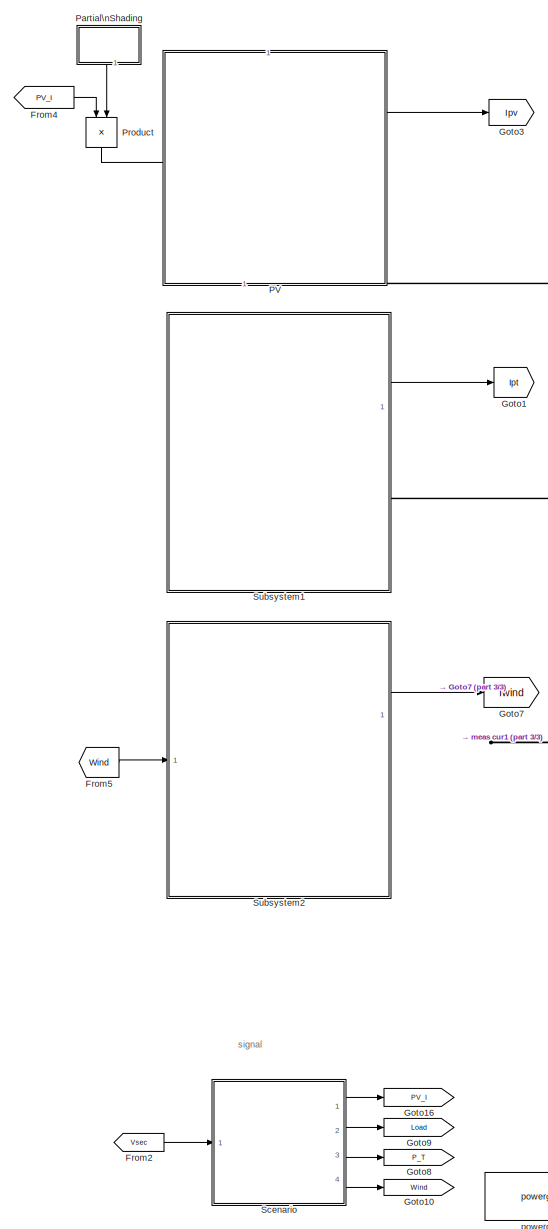
[diagram: root canvas - part 1/3, left side, full height]
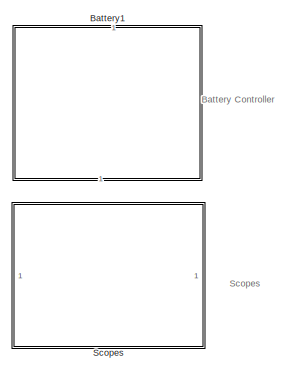
[diagram: root canvas - part 2/3, middle right region]
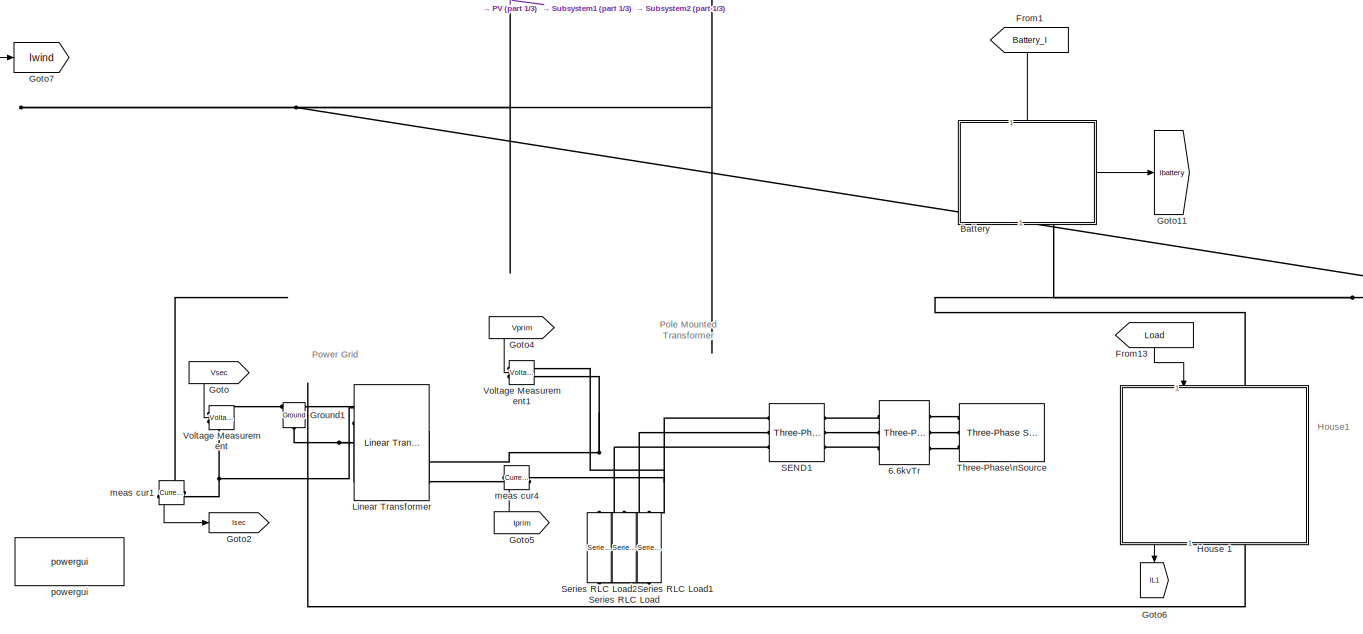
[diagram: root canvas - part 3/3, bottom center region]
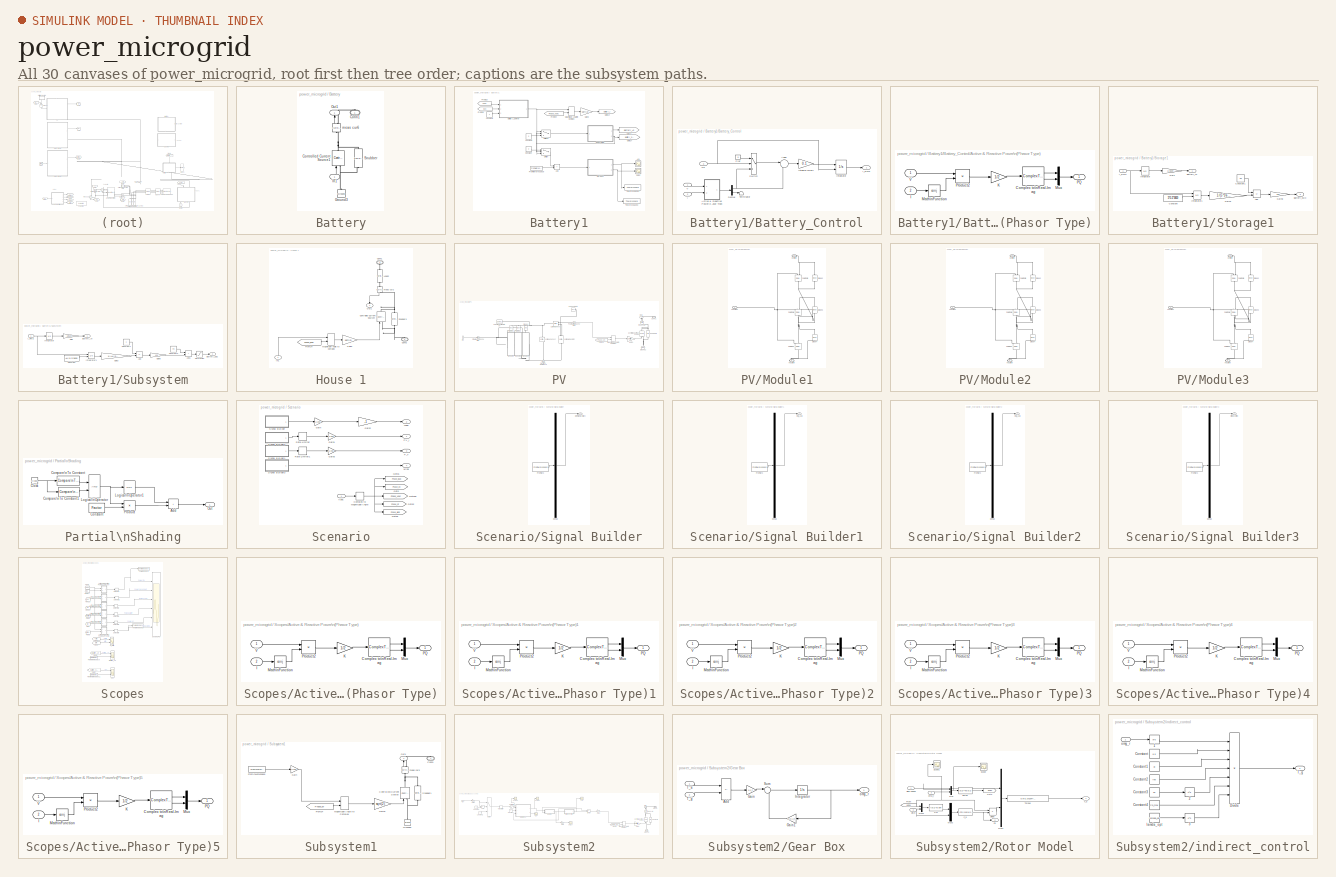
[diagram: thumbnail index - all 30 canvases of the model, root first then tree order]
MODEL power_microgrid
KIND model
CONFIG PreLoadFcn = load('solar_load_data_24h.mat')\n
BLOCK [Reference] 6.6kvTr  REF=spsThreePhaseTransformerTwoWindingsLib/Three-Phase\nTransformer\n(Two Windings)
  BreakLoop = on
  CoreType = Three single-phase transformers
  DataFile = 'hysteresis'
  DataType = off
  DiscreteSolver = Trapezoidal iterative
  Hysteresis = off
  InitialFluxes = [ 0.8 , -0.8 , 0.7 ]
  L0 = 0.5
  Lm = 500
  Measurements = None
  NameLocation = top
  NominalPower = [ 10e6 , 60 ]
  Ports = [0, 0, 0, 0, 0, 3, 3]
  RTWMemSecDataConstants = Inherit from model
  RTWMemSecDataInternal = Inherit from model
  RTWMemSecDataParameters = Inherit from model
  RTWMemSecFuncExecute = Inherit from model
  RTWMemSecFuncInitTerm = Inherit from model
  Rm = 500
  SID = 186
  Saturation = [ 0,0 ; 0.0024,1.2 ; 1.0,1.52 ]
  SetInitialFlux = off
  SetSaturation = off
  SourceBlock = spsThreePhaseTransformerTwoWindingsLib/Three-Phase\nTransformer\n(Two Windings)
  SourceProductBaseCode = PS
  SourceType = Three-Phase Transformer (Two Windings)
  TransfoNumber = 1
  UNITS = pu
  Winding1 = [ 66e3 , 0.002 , 0.08 ]
  Winding1Connection = Yg
  Winding2 = [6.6e3 , 0.002 , 0.08 ]
  Winding2Connection = Y
BLOCK [SubSystem] Battery
  NameLocation = right
  PortSchema = {\"entries\":[{\"content\":{\"sides\":[{\"content\":{\"connectorIds\":[]},\"type\":\"ConnectorPlacement.EquallySpacedRectSide\",\"uuid\":\"c1286172-d85d-4151-a658-d607f2a227c1\"},{\"content\":{\"connectorIds\":[\"In1\"],\"side\":\"RIGHT\"},\"type\":\"ConnectorPlacement.EquallySpacedRectSide\",\"uuid\":\"b88a66e6-ea34-4253-9f56-045ec6735a8d\"},{\"content\":{\"connectorIds\":[\"Out1\"],\"side\":\"TO...<+480ch>
  Ports = [1, 1, 0, 0, 0, 0, 1]
  RequestExecContextInheritance = off
  SID = 1119
BLOCK [PMIOPort] Battery/Conn1
  NameLocation = right
  SID = 1120
  Side = Right
BLOCK [Reference] Battery/Controlled Current Source1  REF=spsControlledCurrentSourceLib/Controlled Current Source
  Amplitude = 0
  Frequency = 60
  Initialize = on
  Measurements = None
  NameLocation = right
  Phase = 30
  Ports = [1, 0, 0, 0, 0, 1, 1]
  RTWMemSecDataConstants = Inherit from model
  RTWMemSecDataInternal = Inherit from model
  RTWMemSecDataParameters = Inherit from model
  RTWMemSecFuncExecute = Inherit from model
  RTWMemSecFuncInitTerm = Inherit from model
  SID = 420
  SourceBlock = spsControlledCurrentSourceLib/Controlled Current Source
  SourceProductBaseCode = PS
  SourceType = Controlled Current Source
  Source_Type = AC
BLOCK [Reference] Battery/Ground3  REF=spsGroundLib/Ground
  LConnTagsString = a
  NameLocation = right
  Ports = [0, 0, 0, 0, 0, 1]
  SID = 424
  SourceBlock = spsGroundLib/Ground
  SourceProductBaseCode = PS
  SourceType = Ground
BLOCK [Inport] Battery/In1
  NameLocation = right
  SID = 1122
BLOCK [Outport] Battery/Out1
  NameLocation = right
  SID = 1121
  VectorParamsAs1DForOutWhenUnconnected = off
BLOCK [Reference] Battery/Snubber  REF=spsSeriesRLCBranchLib/Series RLC Branch
  BranchType = R
  Capacitance = 1e-6
  Inductance = 1e-3
  InitialCurrent = 0
  InitialVoltage = 0
  LConnTagsString = __new0
  Measurements = None
  NameLocation = right
  Ports = [0, 0, 0, 0, 0, 1, 1]
  RConnTagsString = __new0
  Resistance = 1e6
  SID = 423
  SetiL0 = off
  Setx0 = off
  SourceBlock = spsSeriesRLCBranchLib/Series RLC Branch
  SourceProductBaseCode = PS
  SourceType = Series RLC Branch
BLOCK [Reference] Battery/meas cur6  REF=spsCurrentMeasurementLib/Current Measurement
  NameLocation = left
  OutputType = Complex
  PSBequivalent = 0
  PhasorSimulation = on
  Ports = [0, 1, 0, 0, 0, 1, 1]
  RTWMemSecDataConstants = Inherit from model
  RTWMemSecDataInternal = Inherit from model
  RTWMemSecDataParameters = Inherit from model
  RTWMemSecFuncExecute = Inherit from model
  RTWMemSecFuncInitTerm = Inherit from model
  SID = 421
  SourceBlock = spsCurrentMeasurementLib/Current Measurement
  SourceProductBaseCode = PS
  SourceType = Current Measurement
BLOCK [SubSystem] Battery1
  NameLocation = right
  Ports = []
  RequestExecContextInheritance = off
  SID = 2270
BLOCK [Sum] Battery1/Add
  IconShape = rectangular
  Ports = [2, 1]
  SID = 2278
BLOCK [Scope] Battery1/Ah1
  Floating = off
  NumInputPorts = 1
  Ports = [1]
  SID = 2279
  ScopeSpecificationString = Simulink.scopes.TimeScopeBlockCfg('CurrentConfiguration', extmgr.ConfigurationSet(extmgr.Configuration('Core','General UI',true),extmgr.Configuration('Core','Source UI',true),extmgr.Configuration('Sources','WiredSimulink',true,'DataLoggingVariableName','ScopeData3'),extmgr.Configuration('Visuals','Time Domain',true,'SerializedDisplays',{struct('MinYLimReal','-221.6947','MaxYLimReal','197.27913','Y...<+1379ch>
BLOCK [SubSystem] Battery1/Battery_Control
  Ports = [3, 1]
  RequestExecContextInheritance = off
  SID = 2280
BLOCK [SubSystem] Battery1/Battery_Control/Active & Reactive Power\n(Phasor Type)
  DialogController = POWERSYS.PowerSysDialog
  Ports = [2, 1]
  RequestExecContextInheritance = off
  SID = 2284
BLOCK [ComplexToRealImag] Battery1/Battery_Control/Active & Reactive Power\n(Phasor Type)/Complex to\nReal-Imag
  Ports = [1, 2]
  SID = 2284:3
BLOCK [Inport] Battery1/Battery_Control/Active & Reactive Power\n(Phasor Type)/I
  Port = 2
  SID = 2284:2
BLOCK [Gain] Battery1/Battery_Control/Active & Reactive Power\n(Phasor Type)/K
  Gain = 1/2
  OutDataTypeStr = Inherit: Same as input
  ParamDataTypeStr = Inherit: Same as input
  SID = 2284:4
  SaturateOnIntegerOverflow = on
BLOCK [Math] Battery1/Battery_Control/Active & Reactive Power\n(Phasor Type)/Math\nFunction
  Operator = conj
  Ports = [1, 1]
  SID = 2284:5
  SignedPower = on
BLOCK [Mux] Battery1/Battery_Control/Active & Reactive Power\n(Phasor Type)/Mux
  DisplayOption = bar
  Inputs = 2
  Ports = [2, 1]
  SID = 2284:6
BLOCK [Outport] Battery1/Battery_Control/Active & Reactive Power\n(Phasor Type)/PQ
  SID = 2284:8
  VectorParamsAs1DForOutWhenUnconnected = off
BLOCK [Product] Battery1/Battery_Control/Active & Reactive Power\n(Phasor Type)/Product2
  InputSameDT = on
  OutDataTypeStr = Inherit: Same as first input
  Ports = [2, 1]
  SID = 2284:7
  SaturateOnIntegerOverflow = on
BLOCK [Inport] Battery1/Battery_Control/Active & Reactive Power\n(Phasor Type)/V
  SID = 2284:1
BLOCK [Sum] Battery1/Battery_Control/Add6
  Inputs = |+-
  Ports = [2, 1]
  SID = 2285
BLOCK [Demux] Battery1/Battery_Control/Demux
  Outputs = 2
  Ports = [1, 2]
  SID = 2286
BLOCK [Inport] Battery1/Battery_Control/I
  Port = 2
  SID = 2282
BLOCK [Outport] Battery1/Battery_Control/I_RMS
  InitialOutput = 0
  OutputWhenDisabled = reset
  SID = 2292
  VectorParamsAs1DForOutWhenUnconnected = off
BLOCK [Gain] Battery1/Battery_Control/Integral\nGain
  Gain = 0.1
  SID = 2287
BLOCK [Integrator] Battery1/Battery_Control/Integrator
  ExternalReset = falling
  LimitOutput = on
  LowerSaturationLimit = -50
  Ports = [2, 1]
  SID = 2288
  UpperSaturationLimit = 50
BLOCK [Inport] Battery1/Battery_Control/On
  Port = 3
  SID = 2283
BLOCK [Constant] Battery1/Battery_Control/Pref
  NameLocation = top
  SID = 2289
  Value = 0
BLOCK [Switch] Battery1/Battery_Control/Switch
  InputSameDT = off
  SID = 2290
  SaturateOnIntegerOverflow = off
  Threshold = 0.5
BLOCK [Terminator] Battery1/Battery_Control/Terminator
  SID = 2291
BLOCK [Inport] Battery1/Battery_Control/V
  SID = 2281
BLOCK [Constant] Battery1/Constant
  SID = 2293
  Value = 0
BLOCK [Constant] Battery1/Constant1
  SID = 2294
  Value = 0
BLOCK [Constant] Battery1/Constant2
  SID = 2295
BLOCK [From] Battery1/From23
  GotoTag = Vsec
  SID = 2297
  TagVisibility = global
BLOCK [From] Battery1/From24
  GotoTag = Phase_Vsec
  SID = 2298
  TagVisibility = global
BLOCK [From] Battery1/From25
  GotoTag = Isec
  SID = 2299
  TagVisibility = global
BLOCK [FromWorkspace] Battery1/From\nWorkspace
  SID = 2296
  VariableName = energy
BLOCK [Gain] Battery1/Gain3
  Gain = sqrt(2)
  SID = 2300
BLOCK [Goto] Battery1/Goto14
  GotoTag = Battery_I
  SID = 2301
  TagVisibility = global
BLOCK [Goto] Battery1/Goto15
  GotoTag = Battery_Ah
  SID = 2302
  TagVisibility = global
BLOCK [Goto] Battery1/Goto17
  GotoTag = Battery_SOC
  SID = 2303
  TagVisibility = global
BLOCK [MagnitudeAngleToComplex] Battery1/Magnitude-Angle to Complex
  Ports = [2, 1]
  SID = 2304
BLOCK [Scope] Battery1/SOC1
  Floating = off
  NumInputPorts = 1
  Ports = [1]
  SID = 2305
  ScopeSpecificationString = Simulink.scopes.TimeScopeBlockCfg('CurrentConfiguration', extmgr.ConfigurationSet(extmgr.Configuration('Core','General UI',true),extmgr.Configuration('Core','Source UI',true),extmgr.Configuration('Sources','WiredSimulink',true,'DataLoggingVariableName','ScopeData4'),extmgr.Configuration('Visuals','Time Domain',true,'SerializedDisplays',{struct('MinYLimReal','20.54417','MaxYLimReal','104.33894','YL...<+1412ch>
BLOCK [SubSystem] Battery1/Storage1
  Ports = [1, 2]
  RequestExecContextInheritance = off
  SID = 2306
BLOCK [Sum] Battery1/Storage1/Add
  IconShape = rectangular
  Inputs = +-
  Ports = [2, 1]
  SID = 2308
BLOCK [Outport] Battery1/Storage1/Battery_Ah
  SID = 2316
  VectorParamsAs1DForOutWhenUnconnected = off
BLOCK [Outport] Battery1/Storage1/Battery_SOC
  Port = 2
  SID = 2317
  VectorParamsAs1DForOutWhenUnconnected = off
BLOCK [Constant] Battery1/Storage1/Constant
  SID = 2309
  Value = 5*0.2*3600
BLOCK [Constant] Battery1/Storage1/Constant1
  SID = 2310
  Value = 0.5
BLOCK [Gain] Battery1/Storage1/Gain
  Gain = 1/3600
  SID = 2311
BLOCK [Gain] Battery1/Storage1/Gain3
  Gain = 1/(5*3600)
  SID = 2312
BLOCK [Gain] Battery1/Storage1/Gain8
  Gain = 200
  SID = 2313
BLOCK [Inport] Battery1/Storage1/I_RMS
  SID = 2307
BLOCK [Integrator] Battery1/Storage1/Integrator
  Ports = [1, 1]
  SID = 2314
BLOCK [Integrator] Battery1/Storage1/Integrator1
  InitialConditionSource = external
  Ports = [2, 1]
  SID = 2315
BLOCK [SubSystem] Battery1/Subsystem
  Ports = [1, 2]
  RequestExecContextInheritance = off
  SID = 2318
BLOCK [Sum] Battery1/Subsystem/Add
  IconShape = rectangular
  Inputs = +-
  Ports = [2, 1]
  SID = 2320
BLOCK [Sum] Battery1/Subsystem/Add1
  IconShape = rectangular
  Ports = [2, 1]
  SID = 2321
BLOCK [Outport] Battery1/Subsystem/Battery_Ah
  SID = 2331
  VectorParamsAs1DForOutWhenUnconnected = off
BLOCK [Outport] Battery1/Subsystem/Battery_SOC
  Port = 2
  SID = 2332
  VectorParamsAs1DForOutWhenUnconnected = off
BLOCK [Constant] Battery1/Subsystem/Constant
  SID = 2322
  Value = AH*0.2*3600
BLOCK [Constant] Battery1/Subsystem/Constant1
  SID = 2323
BLOCK [Constant] Battery1/Subsystem/Constant2
  SID = 2324
  Value = -70
BLOCK [Gain] Battery1/Subsystem/Gain
  Gain = 1/3600
  SID = 2325
BLOCK [Gain] Battery1/Subsystem/Gain3
  Gain = 1/(AH*3600)
  SID = 2326
BLOCK [Gain] Battery1/Subsystem/Gain8
  Gain = 100
  SID = 2327
BLOCK [Inport] Battery1/Subsystem/I_RMS
  SID = 2319
BLOCK [Integrator] Battery1/Subsystem/Integrator
  Ports = [1, 1]
  SID = 2328
BLOCK [Integrator] Battery1/Subsystem/Integrator1
  InitialConditionSource = external
  Ports = [2, 1]
  SID = 2329
BLOCK [Saturate] Battery1/Subsystem/Saturation
  LowerLimit = 0
  SID = 2330
  UpperLimit = 100
BLOCK [Switch] Battery1/Switch
  Criteria = u2 > Threshold
  InputSameDT = off
  SID = 2333
  SaturateOnIntegerOverflow = off
  Threshold = 5
BLOCK [Switch] Battery1/Switch1
  Criteria = u2 > Threshold
  InputSameDT = off
  SID = 2334
  SaturateOnIntegerOverflow = off
  Threshold = 5
BLOCK [ToWorkspace] Battery1/To Workspace1
  FixptAsFi = on
  MaxDataPoints = inf
  Ports = [1]
  SID = 2335
  SampleTime = -1
  SaveFormat = Timeseries
  VariableName = PT_AH1
BLOCK [ToWorkspace] Battery1/To Workspace2
  FixptAsFi = on
  MaxDataPoints = inf
  Ports = [1]
  SID = 2336
  SampleTime = -1
  SaveFormat = Timeseries
  VariableName = PT_SOC1
BLOCK [From] From1
  GotoTag = Battery_I
  NameLocation = left
  SID = 926
  TagVisibility = global
BLOCK [From] From13
  GotoTag = Load
  NameLocation = left
  SID = 828
  TagVisibility = global
BLOCK [From] From2
  GotoTag = Vsec
  SID = 1324
  TagVisibility = global
BLOCK [From] From4
  GotoTag = PV_I
  SID = 961
  TagVisibility = global
BLOCK [From] From5
  GotoTag = Wind
  SID = 1561
  TagVisibility = global
BLOCK [Goto] Goto
  GotoTag = Vsec
  NameLocation = top
  SID = 240
  TagVisibility = global
BLOCK [Goto] Goto1
  GotoTag = Ipt
  SID = 1487
  TagVisibility = global
BLOCK [Goto] Goto10
  GotoTag = Wind
  SID = 1559
  TagVisibility = global
BLOCK [Goto] Goto11
  GotoTag = Ibattery
  SID = 422
  TagVisibility = global
BLOCK [Goto] Goto16
  GotoTag = PV_I
  SID = 1288
  TagVisibility = global
BLOCK [Goto] Goto2
  GotoTag = Isec
  SID = 263
  TagVisibility = global
BLOCK [Goto] Goto3
  GotoTag = Ipv
  SID = 283
  TagVisibility = global
BLOCK [Goto] Goto4
  GotoTag = Vprim
  NameLocation = top
  SID = 296
  TagVisibility = global
BLOCK [Goto] Goto5
  GotoTag = Iprim
  NameLocation = top
  SID = 297
  TagVisibility = global
BLOCK [Goto] Goto6
  GotoTag = IL1
  NameLocation = left
  SID = 318
  TagVisibility = global
BLOCK [Goto] Goto7
  GotoTag = Iwind
  SID = 1655
  TagVisibility = global
BLOCK [Goto] Goto8
  GotoTag = P_T
  SID = 1558
  TagVisibility = global
BLOCK [Goto] Goto9
  GotoTag = Load
  SID = 1290
  TagVisibility = global
BLOCK [Reference] Ground1  REF=spsGroundLib/Ground
  LConnTagsString = a
  NameLocation = left
  Ports = [0, 0, 0, 0, 0, 1]
  SID = 255
  SourceBlock = spsGroundLib/Ground
  SourceProductBaseCode = PS
  SourceType = Ground
BLOCK [SubSystem] House 1
  NameLocation = right
  Ports = [1, 1, 0, 0, 0, 1, 1]
  RequestExecContextInheritance = off
  SID = 1378
BLOCK [PMIOPort] House 1/Conn1
  NameLocation = right
  SID = 1384
  Side = Left
BLOCK [PMIOPort] House 1/Conn2
  NameLocation = right
  Port = 2
  SID = 1385
  Side = Right
BLOCK [Reference] House 1/Controlled Current Source4  REF=spsControlledCurrentSourceLib/Controlled Current Source
  Amplitude = 0
  Frequency = 60
  Initialize = on
  Measurements = None
  NameLocation = right
  Phase = 30
  Ports = [1, 0, 0, 0, 0, 1, 1]
  RTWMemSecDataConstants = Inherit from model
  RTWMemSecDataInternal = Inherit from model
  RTWMemSecDataParameters = Inherit from model
  RTWMemSecFuncExecute = Inherit from model
  RTWMemSecFuncInitTerm = Inherit from model
  SID = 1380
  SourceBlock = spsControlledCurrentSourceLib/Controlled Current Source
  SourceProductBaseCode = PS
  SourceType = Controlled Current Source
  Source_Type = AC
BLOCK [From] House 1/From24
  GotoTag = Phase_load
  SID = 1565
  TagVisibility = global
BLOCK [Gain] House 1/Gain3
  Gain = sqrt(2)
  SID = 1566
BLOCK [Inport] House 1/In1
  NameLocation = right
  SID = 1379
BLOCK [Reference] House 1/Load2  REF=spsSeriesRLCBranchLib/Series RLC Branch
  BranchType = R
  Capacitance = 1e-6
  Inductance = 1e-3
  InitialCurrent = 0
  InitialVoltage = 0
  LConnTagsString = __new0
  Measurements = None
  NameLocation = right
  Ports = [0, 0, 0, 0, 0, 1, 1]
  RConnTagsString = __new0
  Resistance = 16
  SID = 1381
  SetiL0 = off
  Setx0 = off
  SourceBlock = spsSeriesRLCBranchLib/Series RLC Branch
  SourceProductBaseCode = PS
  SourceType = Series RLC Branch
BLOCK [MagnitudeAngleToComplex] House 1/Magnitude-Angle to Complex
  Ports = [2, 1]
  SID = 1567
BLOCK [Outport] House 1/Out1
  NameLocation = right
  SID = 1386
  VectorParamsAs1DForOutWhenUnconnected = off
BLOCK [Reference] House 1/Snubber3  REF=spsSeriesRLCBranchLib/Series RLC Branch
  BranchType = R
  Capacitance = 1e-6
  Inductance = 1e-3
  InitialCurrent = 0
  InitialVoltage = 0
  LConnTagsString = __new0
  Measurements = None
  NameLocation = right
  Ports = [0, 0, 0, 0, 0, 1, 1]
  RConnTagsString = __new0
  Resistance = 1e6
  SID = 1382
  SetiL0 = off
  Setx0 = off
  SourceBlock = spsSeriesRLCBranchLib/Series RLC Branch
  SourceProductBaseCode = PS
  SourceType = Series RLC Branch
BLOCK [Reference] House 1/meas cur2  REF=spsCurrentMeasurementLib/Current Measurement
  NameLocation = right
  OutputType = Complex
  PSBequivalent = 0
  PhasorSimulation = on
  Ports = [0, 1, 0, 0, 0, 1, 1]
  RTWMemSecDataConstants = Inherit from model
  RTWMemSecDataInternal = Inherit from model
  RTWMemSecDataParameters = Inherit from model
  RTWMemSecFuncExecute = Inherit from model
  RTWMemSecFuncInitTerm = Inherit from model
  SID = 1383
  SourceBlock = spsCurrentMeasurementLib/Current Measurement
  SourceProductBaseCode = PS
  SourceType = Current Measurement
BLOCK [Reference] Linear Transformer  REF=spsLinearTransformerLib/Linear Transformer
  DataType = off
  Measurements = None
  NameLocation = top
  NominalPower = [75e3 60]
  Ports = [0, 0, 0, 0, 0, 2, 4]
  RTWMemSecDataConstants = Inherit from model
  RTWMemSecDataInternal = Inherit from model
  RTWMemSecDataParameters = Inherit from model
  RTWMemSecFuncExecute = Inherit from model
  RTWMemSecFuncInitTerm = Inherit from model
  RmLm = [ 50 50 ]
  SID = 1453
  SourceBlock = spsLinearTransformerLib/Linear Transformer
  SourceProductBaseCode = PS
  SourceType = Linear Transformer
  ThreeWindings = on
  UNITS = pu
  winding1 = [ 6600 0.00005 0.0002 ]
  winding2 = [ 100 0.00005 0.0002 ]
  winding3 = [ 100 0.00005 0.0002 ]
BLOCK [SubSystem] PV
  NameLocation = left
  PortSchema = {\"entries\":[{\"content\":{\"sides\":[{\"content\":{\"connectorIds\":[]},\"type\":\"ConnectorPlacement.EquallySpacedRectSide\",\"uuid\":\"c1286172-d85d-4151-a658-d607f2a227c1\"},{\"content\":{\"connectorIds\":[],\"side\":\"RIGHT\"},\"type\":\"ConnectorPlacement.EquallySpacedRectSide\",\"uuid\":\"b88a66e6-ea34-4253-9f56-045ec6735a8d\"},{\"content\":{\"connectorIds\":[\"In1\"],\"side\":\"TOP\"},\"t...<+481ch>
  Ports = [1, 1, 0, 0, 0, 0, 1]
  RequestExecContextInheritance = off
  SID = 1115
BLOCK [PMIOPort] PV/Conn1
  NameLocation = right
  SID = 1116
  Side = Right
BLOCK [Reference] PV/Controlled Current Source  REF=spsControlledCurrentSourceLib/Controlled Current Source
  Amplitude = 0
  Frequency = 60
  Initialize = on
  Measurements = None
  NameLocation = right
  Phase = 30
  Ports = [1, 0, 0, 0, 0, 1, 1]
  RTWMemSecDataConstants = Inherit from model
  RTWMemSecDataInternal = Inherit from model
  RTWMemSecDataParameters = Inherit from model
  RTWMemSecFuncExecute = Inherit from model
  RTWMemSecFuncInitTerm = Inherit from model
  SID = 188
  SourceBlock = spsControlledCurrentSourceLib/Controlled Current Source
  SourceProductBaseCode = PS
  SourceType = Controlled Current Source
  Source_Type = AC
BLOCK [Reference] PV/Current Sensor  REF=fl_lib/Electrical/Electrical Sensors/Current Sensor
  ClassName = current
  ComponentPath = foundation.electrical.sensors.current
  ComponentVariantNames = [\"current\"]
  ComponentVariants = [\"foundation.electrical.sensors.current\"]
  InternalSimscapePortConfiguration = {\"Bottom\":[],\"Left\":[{\"id\":\"p\",\"label\":\"+\",\"type\":\"foundation.electrical.electrical\"}],\"Right\":[{\"id\":\"I\",\"label\":\"I\",\"type\":\"output\"},{\"id\":\"n\",\"label\":\"-\",\"type\":\"foundation.electrical.electrical\"}],\"Top\":[]}
  LogSimulationData = off
  Ports = [0, 0, 0, 0, 0, 1, 2]
  SID = 1496
  SchemaVersion = 1
  SourceBlock = fl_lib/Electrical/Electrical Sensors/Current Sensor
  SourceFile = foundation.electrical.sensors.current
  SourceProductBaseCode = SS
  SourceType = Current Sensor
BLOCK [Reference] PV/Diode1  REF=ee_lib/Semiconductors &\nConverters/Diode
  BV = inf
  BV_conf = compiletime
  BV_faulted = inf
  BV_faulted_conf = compiletime
  BV_faulted_unit = V
  BV_unit = V
  CJ = 5
  CJ0 = 5
  CJ0_conf = compiletime
  CJ0_unit = pF
  CJ_conf = compiletime
  CJ_unit = pF
  C_param = ee.enum.diode.capParam.fixed
  C_param_conf = compiletime
  C_param_unit = 1
  ClassName = Simscape variant
  ComponentPath = ee.semiconductors.diode
  ComponentVariantNames = [\"physmod:ee:library:comments:semiconductors:diode_sscx:noThermalPort\",\"physmod:ee:library:comments:semiconductors:diode_sscx:showThermalPort\"]
  ComponentVariants = [\"ee.semiconductors.diode\",\"ee.semiconductors.diode_thermal\"]
  Cscale_faulted = 100
  Cscale_faulted_conf = compiletime
  Cscale_faulted_unit = 1
  Cvec = [3.5, 1, .4]
  Cvec_conf = compiletime
  Cvec_unit = pF
  EG = 1.11
  EG_conf = compiletime
  EG_param = ee.enum.diode.egapParam.material_si
  EG_param_conf = compiletime
  EG_param_unit = 1
  EG_unit = eV
  FC = 0.5
  FC_conf = compiletime
  FC_unit = 1
  Goff = 1e-8
  Goff_conf = compiletime
  Goff_faulted = 1e-8
  Goff_faulted_conf = compiletime
  Goff_faulted_unit = S
  Goff_unit = S
  Gshort_faulted = 1000
  Gshort_faulted_conf = compiletime
  Gshort_faulted_unit = 1/Ohm
  I1 = 0.0137
  I12 = [.0137, .545]
  I12_conf = compiletime
  I12_faulted = [.0137, .545]
  I12_faulted_conf = compiletime
  I12_faulted_unit = A
  I12_unit = A
  I1_T2 = 0.245
  I1_T2_conf = compiletime
  I1_T2_unit = A
  I1_conf = compiletime
  I1_faulted = 0.0137
  I1_faulted_conf = compiletime
  I1_faulted_unit = A
  I1_unit = A
  IS = 1e-12
  IS_T2 = 1.25e-7
  IS_T2_conf = compiletime
  IS_T2_unit = A
  IS_conf = compiletime
  IS_faulted = 1e-12
  IS_faulted_conf = compiletime
  IS_faulted_unit = A
  IS_unit = A
  IfMat = [.07, .12, .19, 1.75, 4.24, 7.32, 11.2; .16, .3, .72, 2.14, 4.02, 6.35, 9.12]
  IfMat_conf = compiletime
  IfMat_faulted = [.07, .12, .19, 1.75, 4.24, 7.32, 11.2; .16, .3, .72, 2.14, 4.02, 6.35, 9.12]
  IfMat_faulted_conf = compiletime
  IfMat_faulted_unit = A
  IfMat_unit = A
  InternalSimscapePortConfiguration = {\"Bottom\":[],\"Left\":[{\"id\":\"p\",\"label\":\"\",\"type\":\"foundation.electrical.electrical\"}],\"Right\":[{\"id\":\"n\",\"label\":\"\",\"type\":\"foundation.electrical.electrical\"}],\"Top\":[]}  <repeated x3 — deduplicated; at blocks: Diode1, Diode2, Diode3>
  LogSimulationData = off
  Mgrad = 0.5
  Mgrad_conf = compiletime
  Mgrad_unit = 1
  ModelType = ee.enum.diode.modelType.pwl
  ModelType_conf = compiletime
  ModelType_unit = 1
  N_parallel = 1
  N_parallel_conf = compiletime
  N_parallel_unit = 1
  N_series = 1
  N_series_conf = compiletime
  N_series_unit = 1
  NameLocation = right
  Ports = [0, 0, 0, 0, 0, 1, 1]
  Q_param = ee.enum.diode.recoveryParam.off
  Q_param_conf = compiletime
  Q_param_unit = 1
  Qrr = 150
  Qrr_conf = compiletime
  Qrr_unit = s*nA
  RS = 0
  RS_conf = compiletime
  RS_faulted = 0
  RS_faulted_conf = compiletime
  RS_faulted_unit = Ohm
  RS_unit = Ohm
  Ron = 0.3
  Ron_conf = compiletime
  Ron_faulted = 0.3
  Ron_faulted_conf = compiletime
  Ron_faulted_unit = Ohm
  Ron_unit = Ohm
  Ropen_faulted = 1000
  Ropen_faulted_conf = compiletime
  Ropen_faulted_unit = Ohm
  Rth = [0, 10]
  Rth_Foster = [4, 6]
  Rth_Foster_conf = compiletime
  Rth_Foster_unit = K/W
  Rth_conf = compiletime
  Rth_unit = K/W
  Rz = 0.3
  Rz_conf = compiletime
  Rz_faulted = 0.3
  Rz_faulted_conf = compiletime
  Rz_faulted_unit = Ohm
  Rz_unit = Ohm
  SID = 1497
  SchemaVersion = 1
  SourceBlock = ee_lib/Semiconductors &\nConverters/Diode
  SourceFile = ee.semiconductors.diode
  SourceProductBaseCode = PS
  SourceType = Diode
  TT = 50
  TT_conf = compiletime
  TT_unit = ns
  T_param = ee.enum.diode.temperatureParam.off
  T_param_conf = compiletime
  T_param_unit = 1
  Tdevice = 25
  Tdevice_conf = compiletime
  Tdevice_unit = degC
  TjVec = [25, 125]
  TjVec_conf = compiletime
  TjVec_unit = degC
  Tmeas = 25
  Tmeas2 = 125
  Tmeas2_conf = compiletime
  Tmeas2_unit = degC
  Tmeas_conf = compiletime
  Tmeas_unit = degC
  V1 = 0.6
  V12 = [.6, .7]
  V12_conf = compiletime
  V12_faulted = [.6, .7]
  V12_faulted_conf = compiletime
  V12_faulted_unit = V
  V12_unit = V
  V1_T2 = 0.5
  V1_T2_conf = compiletime
  V1_T2_unit = V
  V1_conf = compiletime
  V1_faulted = 0.6
  V1_faulted_conf = compiletime
  V1_faulted_unit = V
  V1_unit = V
  VJ = 1
  VJ_conf = compiletime
  VJ_unit = V
  Vf = 0.6
  VfVec = [.5, .7, .9, 1.3, 1.7, 2.1, 2.5]
  VfVec_conf = compiletime
  VfVec_faulted = [.5, .7, .9, 1.3, 1.7, 2.1, 2.5]
  VfVec_faulted_conf = compiletime
  VfVec_faulted_unit = V
  VfVec_unit = V
  Vf_conf = compiletime
  Vf_faulted = 0.6
  Vf_faulted_conf = compiletime
  Vf_faulted_unit = V
  Vf_unit = V
  Vvec = [.1, 10, 100]
  Vvec_conf = compiletime
  Vvec_unit = V
  XTI = 3
  XTI_conf = compiletime
  XTI_param = ee.enum.diode.xtiParam.pn
  XTI_param_conf = compiletime
  XTI_param_unit = 1
  XTI_unit = 1
  dBVdT = 0
  dBVdT_conf = compiletime
  dBVdT_unit = V/K
  didt = -750
  didt_conf = compiletime
  didt_unit = A/us
  ec = 1
  ec_conf = compiletime
  ec_faulted = 1
  ec_faulted_conf = compiletime
  ec_faulted_unit = 1
  ec_unit = 1
  enable_behavioral_fault = ee.enum.faults.faultEnable.no
  enable_behavioral_fault_conf = compiletime
  enable_behavioral_fault_unit = 1
  enable_faults = ee.enum.faults.faultEnable.no
  enable_faults_conf = compiletime
  enable_faults_unit = 1
  enable_temporal_fault = ee.enum.faults.faultEnable.no
  enable_temporal_fault_conf = compiletime
  enable_temporal_fault_unit = 1
  fault_action = ee.enum.faults.faultAction.none
  fault_action_conf = compiletime
  fault_action_unit = 1
  fault_types = ee.enum.diode.faults.open
  fault_types_conf = compiletime
  fault_types_unit = 1
  i = 0
  iF = 4
  iF_conf = compiletime
  iF_unit = A
  iRM = -7.15
  iRM_conf = compiletime
  iRM_unit = A
  i_capacitor = 0
  i_capacitor_nominal_specify = off
  i_capacitor_nominal_unit = A
  i_capacitor_nominal_value = 1
  i_capacitor_priority = None
  i_capacitor_specify = off
  i_capacitor_unit = A
  i_diode = 0
  i_diode_nominal_specify = off
  i_diode_nominal_unit = A
  i_diode_nominal_value = 1
  i_diode_priority = None
  i_diode_specify = off
  i_diode_unit = A
  i_nominal_specify = off
  i_nominal_unit = A
  i_nominal_value = 1
  i_priority = None
  i_specify = off
  i_unit = A
  max_permissible_current = inf
  max_permissible_current_conf = compiletime
  max_permissible_current_unit = A
  max_permissible_dVdt = inf
  max_permissible_dVdt_conf = compiletime
  max_permissible_dVdt_unit = V/s
  max_permissible_temperature = inf
  max_permissible_temperature_conf = compiletime
  max_permissible_temperature_unit = K
  max_permissible_voltage = inf
  max_permissible_voltage_conf = compiletime
  max_permissible_voltage_unit = V
  n_fail_on_voltage = 1
  n_fail_on_voltage_conf = compiletime
  n_fail_on_voltage_unit = 1
  power_dissipated = 0
  power_dissipated_nominal_specify = off
  power_dissipated_nominal_unit = W
  power_dissipated_nominal_value = 1
  power_dissipated_priority = None
  power_dissipated_specify = off
  power_dissipated_unit = W
  prmExp = ee.enum.diode.expParam.useTwo
  prmExp_conf = compiletime
  prmExp_unit = 1
  t_fail_on_current = 1
  t_fail_on_current_conf = compiletime
  t_fail_on_current_unit = s
  t_fail_on_temperature = 1
  t_fail_on_temperature_conf = compiletime
  t_fail_on_temperature_unit = s
  t_fault = inf
  t_fault_conf = compiletime
  t_fault_unit = s
  tau = 100
  tau_conf = compiletime
  tau_fault = 1e-3
  tau_fault_conf = compiletime
  tau_fault_unit = s
  tau_unit = ns
  thermal_mass = [0, 1]
  thermal_mass_Foster = [1.5, 3]
  thermal_mass_Foster_conf = compiletime
  thermal_mass_Foster_unit = J/K
  thermal_mass_conf = compiletime
  thermal_mass_initial_temperatures = [25, 25]
  thermal_mass_initial_temperatures_conf = compiletime
  thermal_mass_initial_temperatures_unit = degC
  thermal_mass_parameterization = ee.enum.thermalNetwork.timeconstant
  thermal_mass_parameterization_conf = compiletime
  thermal_mass_parameterization_unit = 1
  thermal_mass_unit = J/K
  thermal_network_parameterization = ee.enum.thermalNetworkTopology.cauer
  thermal_network_parameterization_conf = compiletime
  thermal_network_parameterization_unit = 1
  thermal_time_constant = [0, 10]
  thermal_time_constant_Foster = [6, 18]
  thermal_time_constant_Foster_conf = compiletime
  thermal_time_constant_Foster_unit = s
  thermal_time_constant_conf = compiletime
  thermal_time_constant_unit = s
  trr = 115
  trr_conf = compiletime
  trr_factor = 3
  trr_factor_conf = compiletime
  trr_factor_unit = 1
  trr_unit = ns
  v = 0
  v_capacitor = 0
  v_capacitor_nominal_specify = off
  v_capacitor_nominal_unit = V
  v_capacitor_nominal_value = 1
  v_capacitor_priority = None
  v_capacitor_specify = off
  v_capacitor_unit = V
  v_diode = 0
  v_diode_nominal_specify = off
  v_diode_nominal_unit = V
  v_diode_nominal_value = 1
  v_diode_priority = None
  v_diode_specify = off
  v_diode_unit = V
  v_nominal_specify = off
  v_nominal_unit = V
  v_nominal_value = 1
  v_priority = None
  v_specify = off
  v_unit = V
BLOCK [Reference] PV/Diode2  REF=ee_lib/Semiconductors &\nConverters/Diode
  BV = inf
  BV_conf = compiletime
  BV_faulted = inf
  BV_faulted_conf = compiletime
  BV_faulted_unit = V
  BV_unit = V
  CJ = 5
  CJ0 = 5
  CJ0_conf = compiletime
  CJ0_unit = pF
  CJ_conf = compiletime
  CJ_unit = pF
  C_param = ee.enum.diode.capParam.fixed
  C_param_conf = compiletime
  C_param_unit = 1
  ClassName = Simscape variant
  ComponentPath = ee.semiconductors.diode
  ComponentVariantNames = [\"physmod:ee:library:comments:semiconductors:diode_sscx:noThermalPort\",\"physmod:ee:library:comments:semiconductors:diode_sscx:showThermalPort\"]
  ComponentVariants = [\"ee.semiconductors.diode\",\"ee.semiconductors.diode_thermal\"]
  Cscale_faulted = 100
  Cscale_faulted_conf = compiletime
  Cscale_faulted_unit = 1
  Cvec = [3.5, 1, .4]
  Cvec_conf = compiletime
  Cvec_unit = pF
  EG = 1.11
  EG_conf = compiletime
  EG_param = ee.enum.diode.egapParam.material_si
  EG_param_conf = compiletime
  EG_param_unit = 1
  EG_unit = eV
  FC = 0.5
  FC_conf = compiletime
  FC_unit = 1
  Goff = 1e-8
  Goff_conf = compiletime
  Goff_faulted = 1e-8
  Goff_faulted_conf = compiletime
  Goff_faulted_unit = S
  Goff_unit = S
  Gshort_faulted = 1000
  Gshort_faulted_conf = compiletime
  Gshort_faulted_unit = 1/Ohm
  I1 = 0.0137
  I12 = [.0137, .545]
  I12_conf = compiletime
  I12_faulted = [.0137, .545]
  I12_faulted_conf = compiletime
  I12_faulted_unit = A
  I12_unit = A
  I1_T2 = 0.245
  I1_T2_conf = compiletime
  I1_T2_unit = A
  I1_conf = compiletime
  I1_faulted = 0.0137
  I1_faulted_conf = compiletime
  I1_faulted_unit = A
  I1_unit = A
  IS = 1e-12
  IS_T2 = 1.25e-7
  IS_T2_conf = compiletime
  IS_T2_unit = A
  IS_conf = compiletime
  IS_faulted = 1e-12
  IS_faulted_conf = compiletime
  IS_faulted_unit = A
  IS_unit = A
  IfMat = [.07, .12, .19, 1.75, 4.24, 7.32, 11.2; .16, .3, .72, 2.14, 4.02, 6.35, 9.12]
  IfMat_conf = compiletime
  IfMat_faulted = [.07, .12, .19, 1.75, 4.24, 7.32, 11.2; .16, .3, .72, 2.14, 4.02, 6.35, 9.12]
  IfMat_faulted_conf = compiletime
  IfMat_faulted_unit = A
  IfMat_unit = A
  LogSimulationData = off
  Mgrad = 0.5
  Mgrad_conf = compiletime
  Mgrad_unit = 1
  ModelType = ee.enum.diode.modelType.pwl
  ModelType_conf = compiletime
  ModelType_unit = 1
  N_parallel = 1
  N_parallel_conf = compiletime
  N_parallel_unit = 1
  N_series = 1
  N_series_conf = compiletime
  N_series_unit = 1
  NameLocation = right
  Ports = [0, 0, 0, 0, 0, 1, 1]
  Q_param = ee.enum.diode.recoveryParam.off
  Q_param_conf = compiletime
  Q_param_unit = 1
  Qrr = 150
  Qrr_conf = compiletime
  Qrr_unit = s*nA
  RS = 0
  RS_conf = compiletime
  RS_faulted = 0
  RS_faulted_conf = compiletime
  RS_faulted_unit = Ohm
  RS_unit = Ohm
  Ron = 0.3
  Ron_conf = compiletime
  Ron_faulted = 0.3
  Ron_faulted_conf = compiletime
  Ron_faulted_unit = Ohm
  Ron_unit = Ohm
  Ropen_faulted = 1000
  Ropen_faulted_conf = compiletime
  Ropen_faulted_unit = Ohm
  Rth = [0, 10]
  Rth_Foster = [4, 6]
  Rth_Foster_conf = compiletime
  Rth_Foster_unit = K/W
  Rth_conf = compiletime
  Rth_unit = K/W
  Rz = 0.3
  Rz_conf = compiletime
  Rz_faulted = 0.3
  Rz_faulted_conf = compiletime
  Rz_faulted_unit = Ohm
  Rz_unit = Ohm
  SID = 1498
  SchemaVersion = 1
  SourceBlock = ee_lib/Semiconductors &\nConverters/Diode
  SourceFile = ee.semiconductors.diode
  SourceProductBaseCode = PS
  SourceType = Diode
  TT = 50
  TT_conf = compiletime
  TT_unit = ns
  T_param = ee.enum.diode.temperatureParam.off
  T_param_conf = compiletime
  T_param_unit = 1
  Tdevice = 25
  Tdevice_conf = compiletime
  Tdevice_unit = degC
  TjVec = [25, 125]
  TjVec_conf = compiletime
  TjVec_unit = degC
  Tmeas = 25
  Tmeas2 = 125
  Tmeas2_conf = compiletime
  Tmeas2_unit = degC
  Tmeas_conf = compiletime
  Tmeas_unit = degC
  V1 = 0.6
  V12 = [.6, .7]
  V12_conf = compiletime
  V12_faulted = [.6, .7]
  V12_faulted_conf = compiletime
  V12_faulted_unit = V
  V12_unit = V
  V1_T2 = 0.5
  V1_T2_conf = compiletime
  V1_T2_unit = V
  V1_conf = compiletime
  V1_faulted = 0.6
  V1_faulted_conf = compiletime
  V1_faulted_unit = V
  V1_unit = V
  VJ = 1
  VJ_conf = compiletime
  VJ_unit = V
  Vf = 0.6
  VfVec = [.5, .7, .9, 1.3, 1.7, 2.1, 2.5]
  VfVec_conf = compiletime
  VfVec_faulted = [.5, .7, .9, 1.3, 1.7, 2.1, 2.5]
  VfVec_faulted_conf = compiletime
  VfVec_faulted_unit = V
  VfVec_unit = V
  Vf_conf = compiletime
  Vf_faulted = 0.6
  Vf_faulted_conf = compiletime
  Vf_faulted_unit = V
  Vf_unit = V
  Vvec = [.1, 10, 100]
  Vvec_conf = compiletime
  Vvec_unit = V
  XTI = 3
  XTI_conf = compiletime
  XTI_param = ee.enum.diode.xtiParam.pn
  XTI_param_conf = compiletime
  XTI_param_unit = 1
  XTI_unit = 1
  dBVdT = 0
  dBVdT_conf = compiletime
  dBVdT_unit = V/K
  didt = -750
  didt_conf = compiletime
  didt_unit = A/us
  ec = 1
  ec_conf = compiletime
  ec_faulted = 1
  ec_faulted_conf = compiletime
  ec_faulted_unit = 1
  ec_unit = 1
  enable_behavioral_fault = ee.enum.faults.faultEnable.no
  enable_behavioral_fault_conf = compiletime
  enable_behavioral_fault_unit = 1
  enable_faults = ee.enum.faults.faultEnable.no
  enable_faults_conf = compiletime
  enable_faults_unit = 1
  enable_temporal_fault = ee.enum.faults.faultEnable.no
  enable_temporal_fault_conf = compiletime
  enable_temporal_fault_unit = 1
  fault_action = ee.enum.faults.faultAction.none
  fault_action_conf = compiletime
  fault_action_unit = 1
  fault_types = ee.enum.diode.faults.open
  fault_types_conf = compiletime
  fault_types_unit = 1
  i = 0
  iF = 4
  iF_conf = compiletime
  iF_unit = A
  iRM = -7.15
  iRM_conf = compiletime
  iRM_unit = A
  i_capacitor = 0
  i_capacitor_nominal_specify = off
  i_capacitor_nominal_unit = A
  i_capacitor_nominal_value = 1
  i_capacitor_priority = None
  i_capacitor_specify = off
  i_capacitor_unit = A
  i_diode = 0
  i_diode_nominal_specify = off
  i_diode_nominal_unit = A
  i_diode_nominal_value = 1
  i_diode_priority = None
  i_diode_specify = off
  i_diode_unit = A
  i_nominal_specify = off
  i_nominal_unit = A
  i_nominal_value = 1
  i_priority = None
  i_specify = off
  i_unit = A
  max_permissible_current = inf
  max_permissible_current_conf = compiletime
  max_permissible_current_unit = A
  max_permissible_dVdt = inf
  max_permissible_dVdt_conf = compiletime
  max_permissible_dVdt_unit = V/s
  max_permissible_temperature = inf
  max_permissible_temperature_conf = compiletime
  max_permissible_temperature_unit = K
  max_permissible_voltage = inf
  max_permissible_voltage_conf = compiletime
  max_permissible_voltage_unit = V
  n_fail_on_voltage = 1
  n_fail_on_voltage_conf = compiletime
  n_fail_on_voltage_unit = 1
  power_dissipated = 0
  power_dissipated_nominal_specify = off
  power_dissipated_nominal_unit = W
  power_dissipated_nominal_value = 1
  power_dissipated_priority = None
  power_dissipated_specify = off
  power_dissipated_unit = W
  prmExp = ee.enum.diode.expParam.useTwo
  prmExp_conf = compiletime
  prmExp_unit = 1
  t_fail_on_current = 1
  t_fail_on_current_conf = compiletime
  t_fail_on_current_unit = s
  t_fail_on_temperature = 1
  t_fail_on_temperature_conf = compiletime
  t_fail_on_temperature_unit = s
  t_fault = inf
  t_fault_conf = compiletime
  t_fault_unit = s
  tau = 100
  tau_conf = compiletime
  tau_fault = 1e-3
  tau_fault_conf = compiletime
  tau_fault_unit = s
  tau_unit = ns
  thermal_mass = [0, 1]
  thermal_mass_Foster = [1.5, 3]
  thermal_mass_Foster_conf = compiletime
  thermal_mass_Foster_unit = J/K
  thermal_mass_conf = compiletime
  thermal_mass_initial_temperatures = [25, 25]
  thermal_mass_initial_temperatures_conf = compiletime
  thermal_mass_initial_temperatures_unit = degC
  thermal_mass_parameterization = ee.enum.thermalNetwork.timeconstant
  thermal_mass_parameterization_conf = compiletime
  thermal_mass_parameterization_unit = 1
  thermal_mass_unit = J/K
  thermal_network_parameterization = ee.enum.thermalNetworkTopology.cauer
  thermal_network_parameterization_conf = compiletime
  thermal_network_parameterization_unit = 1
  thermal_time_constant = [0, 10]
  thermal_time_constant_Foster = [6, 18]
  thermal_time_constant_Foster_conf = compiletime
  thermal_time_constant_Foster_unit = s
  thermal_time_constant_conf = compiletime
  thermal_time_constant_unit = s
  trr = 115
  trr_conf = compiletime
  trr_factor = 3
  trr_factor_conf = compiletime
  trr_factor_unit = 1
  trr_unit = ns
  v = 0
  v_capacitor = 0
  v_capacitor_nominal_specify = off
  v_capacitor_nominal_unit = V
  v_capacitor_nominal_value = 1
  v_capacitor_priority = None
  v_capacitor_specify = off
  v_capacitor_unit = V
  v_diode = 0
  v_diode_nominal_specify = off
  v_diode_nominal_unit = V
  v_diode_nominal_value = 1
  v_diode_priority = None
  v_diode_specify = off
  v_diode_unit = V
  v_nominal_specify = off
  v_nominal_unit = V
  v_nominal_value = 1
  v_priority = None
  v_specify = off
  v_unit = V
BLOCK [Reference] PV/Diode3  REF=ee_lib/Semiconductors &\nConverters/Diode
  BV = inf
  BV_conf = compiletime
  BV_faulted = inf
  BV_faulted_conf = compiletime
  BV_faulted_unit = V
  BV_unit = V
  CJ = 5
  CJ0 = 5
  CJ0_conf = compiletime
  CJ0_unit = pF
  CJ_conf = compiletime
  CJ_unit = pF
  C_param = ee.enum.diode.capParam.fixed
  C_param_conf = compiletime
  C_param_unit = 1
  ClassName = Simscape variant
  ComponentPath = ee.semiconductors.diode
  ComponentVariantNames = [\"physmod:ee:library:comments:semiconductors:diode_sscx:noThermalPort\",\"physmod:ee:library:comments:semiconductors:diode_sscx:showThermalPort\"]
  ComponentVariants = [\"ee.semiconductors.diode\",\"ee.semiconductors.diode_thermal\"]
  Cscale_faulted = 100
  Cscale_faulted_conf = compiletime
  Cscale_faulted_unit = 1
  Cvec = [3.5, 1, .4]
  Cvec_conf = compiletime
  Cvec_unit = pF
  EG = 1.11
  EG_conf = compiletime
  EG_param = ee.enum.diode.egapParam.material_si
  EG_param_conf = compiletime
  EG_param_unit = 1
  EG_unit = eV
  FC = 0.5
  FC_conf = compiletime
  FC_unit = 1
  Goff = 1e-8
  Goff_conf = compiletime
  Goff_faulted = 1e-8
  Goff_faulted_conf = compiletime
  Goff_faulted_unit = S
  Goff_unit = S
  Gshort_faulted = 1000
  Gshort_faulted_conf = compiletime
  Gshort_faulted_unit = 1/Ohm
  I1 = 0.0137
  I12 = [.0137, .545]
  I12_conf = compiletime
  I12_faulted = [.0137, .545]
  I12_faulted_conf = compiletime
  I12_faulted_unit = A
  I12_unit = A
  I1_T2 = 0.245
  I1_T2_conf = compiletime
  I1_T2_unit = A
  I1_conf = compiletime
  I1_faulted = 0.0137
  I1_faulted_conf = compiletime
  I1_faulted_unit = A
  I1_unit = A
  IS = 1e-12
  IS_T2 = 1.25e-7
  IS_T2_conf = compiletime
  IS_T2_unit = A
  IS_conf = compiletime
  IS_faulted = 1e-12
  IS_faulted_conf = compiletime
  IS_faulted_unit = A
  IS_unit = A
  IfMat = [.07, .12, .19, 1.75, 4.24, 7.32, 11.2; .16, .3, .72, 2.14, 4.02, 6.35, 9.12]
  IfMat_conf = compiletime
  IfMat_faulted = [.07, .12, .19, 1.75, 4.24, 7.32, 11.2; .16, .3, .72, 2.14, 4.02, 6.35, 9.12]
  IfMat_faulted_conf = compiletime
  IfMat_faulted_unit = A
  IfMat_unit = A
  LogSimulationData = off
  Mgrad = 0.5
  Mgrad_conf = compiletime
  Mgrad_unit = 1
  ModelType = ee.enum.diode.modelType.pwl
  ModelType_conf = compiletime
  ModelType_unit = 1
  N_parallel = 1
  N_parallel_conf = compiletime
  N_parallel_unit = 1
  N_series = 1
  N_series_conf = compiletime
  N_series_unit = 1
  NameLocation = right
  Ports = [0, 0, 0, 0, 0, 1, 1]
  Q_param = ee.enum.diode.recoveryParam.off
  Q_param_conf = compiletime
  Q_param_unit = 1
  Qrr = 150
  Qrr_conf = compiletime
  Qrr_unit = s*nA
  RS = 0
  RS_conf = compiletime
  RS_faulted = 0
  RS_faulted_conf = compiletime
  RS_faulted_unit = Ohm
  RS_unit = Ohm
  Ron = 0.3
  Ron_conf = compiletime
  Ron_faulted = 0.3
  Ron_faulted_conf = compiletime
  Ron_faulted_unit = Ohm
  Ron_unit = Ohm
  Ropen_faulted = 1000
  Ropen_faulted_conf = compiletime
  Ropen_faulted_unit = Ohm
  Rth = [0, 10]
  Rth_Foster = [4, 6]
  Rth_Foster_conf = compiletime
  Rth_Foster_unit = K/W
  Rth_conf = compiletime
  Rth_unit = K/W
  Rz = 0.3
  Rz_conf = compiletime
  Rz_faulted = 0.3
  Rz_faulted_conf = compiletime
  Rz_faulted_unit = Ohm
  Rz_unit = Ohm
  SID = 1499
  SchemaVersion = 1
  SourceBlock = ee_lib/Semiconductors &\nConverters/Diode
  SourceFile = ee.semiconductors.diode
  SourceProductBaseCode = PS
  SourceType = Diode
  TT = 50
  TT_conf = compiletime
  TT_unit = ns
  T_param = ee.enum.diode.temperatureParam.off
  T_param_conf = compiletime
  T_param_unit = 1
  Tdevice = 25
  Tdevice_conf = compiletime
  Tdevice_unit = degC
  TjVec = [25, 125]
  TjVec_conf = compiletime
  TjVec_unit = degC
  Tmeas = 25
  Tmeas2 = 125
  Tmeas2_conf = compiletime
  Tmeas2_unit = degC
  Tmeas_conf = compiletime
  Tmeas_unit = degC
  V1 = 0.6
  V12 = [.6, .7]
  V12_conf = compiletime
  V12_faulted = [.6, .7]
  V12_faulted_conf = compiletime
  V12_faulted_unit = V
  V12_unit = V
  V1_T2 = 0.5
  V1_T2_conf = compiletime
  V1_T2_unit = V
  V1_conf = compiletime
  V1_faulted = 0.6
  V1_faulted_conf = compiletime
  V1_faulted_unit = V
  V1_unit = V
  VJ = 1
  VJ_conf = compiletime
  VJ_unit = V
  Vf = 0.6
  VfVec = [.5, .7, .9, 1.3, 1.7, 2.1, 2.5]
  VfVec_conf = compiletime
  VfVec_faulted = [.5, .7, .9, 1.3, 1.7, 2.1, 2.5]
  VfVec_faulted_conf = compiletime
  VfVec_faulted_unit = V
  VfVec_unit = V
  Vf_conf = compiletime
  Vf_faulted = 0.6
  Vf_faulted_conf = compiletime
  Vf_faulted_unit = V
  Vf_unit = V
  Vvec = [.1, 10, 100]
  Vvec_conf = compiletime
  Vvec_unit = V
  XTI = 3
  XTI_conf = compiletime
  XTI_param = ee.enum.diode.xtiParam.pn
  XTI_param_conf = compiletime
  XTI_param_unit = 1
  XTI_unit = 1
  dBVdT = 0
  dBVdT_conf = compiletime
  dBVdT_unit = V/K
  didt = -750
  didt_conf = compiletime
  didt_unit = A/us
  ec = 1
  ec_conf = compiletime
  ec_faulted = 1
  ec_faulted_conf = compiletime
  ec_faulted_unit = 1
  ec_unit = 1
  enable_behavioral_fault = ee.enum.faults.faultEnable.no
  enable_behavioral_fault_conf = compiletime
  enable_behavioral_fault_unit = 1
  enable_faults = ee.enum.faults.faultEnable.no
  enable_faults_conf = compiletime
  enable_faults_unit = 1
  enable_temporal_fault = ee.enum.faults.faultEnable.no
  enable_temporal_fault_conf = compiletime
  enable_temporal_fault_unit = 1
  fault_action = ee.enum.faults.faultAction.none
  fault_action_conf = compiletime
  fault_action_unit = 1
  fault_types = ee.enum.diode.faults.open
  fault_types_conf = compiletime
  fault_types_unit = 1
  i = 0
  iF = 4
  iF_conf = compiletime
  iF_unit = A
  iRM = -7.15
  iRM_conf = compiletime
  iRM_unit = A
  i_capacitor = 0
  i_capacitor_nominal_specify = off
  i_capacitor_nominal_unit = A
  i_capacitor_nominal_value = 1
  i_capacitor_priority = None
  i_capacitor_specify = off
  i_capacitor_unit = A
  i_diode = 0
  i_diode_nominal_specify = off
  i_diode_nominal_unit = A
  i_diode_nominal_value = 1
  i_diode_priority = None
  i_diode_specify = off
  i_diode_unit = A
  i_nominal_specify = off
  i_nominal_unit = A
  i_nominal_value = 1
  i_priority = None
  i_specify = off
  i_unit = A
  max_permissible_current = inf
  max_permissible_current_conf = compiletime
  max_permissible_current_unit = A
  max_permissible_dVdt = inf
  max_permissible_dVdt_conf = compiletime
  max_permissible_dVdt_unit = V/s
  max_permissible_temperature = inf
  max_permissible_temperature_conf = compiletime
  max_permissible_temperature_unit = K
  max_permissible_voltage = inf
  max_permissible_voltage_conf = compiletime
  max_permissible_voltage_unit = V
  n_fail_on_voltage = 1
  n_fail_on_voltage_conf = compiletime
  n_fail_on_voltage_unit = 1
  power_dissipated = 0
  power_dissipated_nominal_specify = off
  power_dissipated_nominal_unit = W
  power_dissipated_nominal_value = 1
  power_dissipated_priority = None
  power_dissipated_specify = off
  power_dissipated_unit = W
  prmExp = ee.enum.diode.expParam.useTwo
  prmExp_conf = compiletime
  prmExp_unit = 1
  t_fail_on_current = 1
  t_fail_on_current_conf = compiletime
  t_fail_on_current_unit = s
  t_fail_on_temperature = 1
  t_fail_on_temperature_conf = compiletime
  t_fail_on_temperature_unit = s
  t_fault = inf
  t_fault_conf = compiletime
  t_fault_unit = s
  tau = 100
  tau_conf = compiletime
  tau_fault = 1e-3
  tau_fault_conf = compiletime
  tau_fault_unit = s
  tau_unit = ns
  thermal_mass = [0, 1]
  thermal_mass_Foster = [1.5, 3]
  thermal_mass_Foster_conf = compiletime
  thermal_mass_Foster_unit = J/K
  thermal_mass_conf = compiletime
  thermal_mass_initial_temperatures = [25, 25]
  thermal_mass_initial_temperatures_conf = compiletime
  thermal_mass_initial_temperatures_unit = degC
  thermal_mass_parameterization = ee.enum.thermalNetwork.timeconstant
  thermal_mass_parameterization_conf = compiletime
  thermal_mass_parameterization_unit = 1
  thermal_mass_unit = J/K
  thermal_network_parameterization = ee.enum.thermalNetworkTopology.cauer
  thermal_network_parameterization_conf = compiletime
  thermal_network_parameterization_unit = 1
  thermal_time_constant = [0, 10]
  thermal_time_constant_Foster = [6, 18]
  thermal_time_constant_Foster_conf = compiletime
  thermal_time_constant_Foster_unit = s
  thermal_time_constant_conf = compiletime
  thermal_time_constant_unit = s
  trr = 115
  trr_conf = compiletime
  trr_factor = 3
  trr_factor_conf = compiletime
  trr_factor_unit = 1
  trr_unit = ns
  v = 0
  v_capacitor = 0
  v_capacitor_nominal_specify = off
  v_capacitor_nominal_unit = V
  v_capacitor_nominal_value = 1
  v_capacitor_priority = None
  v_capacitor_specify = off
  v_capacitor_unit = V
  v_diode = 0
  v_diode_nominal_specify = off
  v_diode_nominal_unit = V
  v_diode_nominal_value = 1
  v_diode_priority = None
  v_diode_specify = off
  v_diode_unit = V
  v_nominal_specify = off
  v_nominal_unit = V
  v_nominal_value = 1
  v_priority = None
  v_specify = off
  v_unit = V
BLOCK [Reference] PV/Electrical Reference  REF=fl_lib/Electrical/Electrical Elements/Electrical Reference
  ClassName = reference
  ComponentPath = foundation.electrical.elements.reference
  ComponentVariantNames = [\"reference\"]
  ComponentVariants = [\"foundation.electrical.elements.reference\"]
  InternalSimscapePortConfiguration = {\"Bottom\":[],\"Left\":[{\"id\":\"V\",\"label\":\"\",\"type\":\"foundation.electrical.electrical\"}],\"Right\":[],\"Top\":[]}
  LogSimulationData = off
  NameLocation = right
  Ports = [0, 0, 0, 0, 0, 1]
  SID = 1500
  SchemaVersion = 1
  SourceBlock = fl_lib/Electrical/Electrical Elements/Electrical Reference
  SourceFile = foundation.electrical.elements.reference
  SourceProductBaseCode = SS
  SourceType = Electrical Reference
BLOCK [From] PV/From24
  GotoTag = Phase_pv
  SID = 1544
  TagVisibility = global
BLOCK [Gain] PV/Gain3
  Gain = sqrt(2)
  SID = 1545
BLOCK [Reference] PV/Ground2  REF=spsGroundLib/Ground
  LConnTagsString = a
  NameLocation = right
  Ports = [0, 0, 0, 0, 0, 1]
  SID = 410
  SourceBlock = spsGroundLib/Ground
  SourceProductBaseCode = PS
  SourceType = Ground
BLOCK [Inport] PV/In1
  SID = 1118
BLOCK [MagnitudeAngleToComplex] PV/Magnitude-Angle to Complex
  Ports = [2, 1]
  SID = 1547
BLOCK [SubSystem] PV/Module1
  PortSchema = {\"entries\":[{\"content\":{\"sides\":[{\"content\":{\"connectorIds\":[\"LConn1\"]},\"type\":\"ConnectorPlacement.EquallySpacedRectSide\",\"uuid\":\"ab66651e-609a-459c-9d92-4a21cc3a8387\"},{\"content\":{\"connectorIds\":[],\"side\":\"RIGHT\"},\"type\":\"ConnectorPlacement.EquallySpacedRectSide\",\"uuid\":\"9128ca8b-245e-4b88-89cc-48151ac1f427\"},{\"content\":{\"connectorIds\":[\"LConn2\"],\"side\"...<+485ch>  <repeated x3 — deduplicated; at blocks: Module1, Module2, Module3>
  Ports = [0, 0, 0, 0, 0, 2, 1]
  RequestExecContextInheritance = off
  SID = 1501
BLOCK [Reference] PV/Module1/Diode2  REF=fl_lib/Electrical/Electrical Elements/Diode
  ClassName = pwl_diode
  ComponentPath = foundation.electrical.elements.pwl_diode
  ComponentVariantNames = [\"pwl_diode\"]
  ComponentVariants = [\"foundation.electrical.elements.pwl_diode\"]
  Goff = 1e-8
  Goff_conf = compiletime
  Goff_unit = 1/Ohm
  InternalSimscapePortConfiguration = {\"Bottom\":[],\"Left\":[{\"id\":\"p\",\"label\":\"+\",\"type\":\"foundation.electrical.electrical\"}],\"Right\":[{\"id\":\"n\",\"label\":\"-\",\"type\":\"foundation.electrical.electrical\"}],\"Top\":[]}  <repeated x9 — deduplicated; at blocks: Diode2, Diode3, Diode4>
  LogSimulationData = off
  NameLocation = right
  Ports = [0, 0, 0, 0, 0, 1, 1]
  Ron = 0.3
  Ron_conf = compiletime
  Ron_unit = Ohm
  SID = 1502
  SchemaVersion = 1
  SourceBlock = fl_lib/Electrical/Electrical Elements/Diode
  SourceFile = foundation.electrical.elements.pwl_diode
  SourceProductBaseCode = SS
  SourceType = Diode
  Vf = 0.6
  Vf_conf = compiletime
  Vf_unit = V
  i = 0
  i_nominal_specify = off
  i_nominal_unit = A
  i_nominal_value = 1
  i_priority = None
  i_specify = off
  i_unit = A
  v = 0
  v_nominal_specify = off
  v_nominal_unit = V
  v_nominal_value = 1
  v_priority = None
  v_specify = off
  v_unit = V
BLOCK [Reference] PV/Module1/Diode3  REF=fl_lib/Electrical/Electrical Elements/Diode
  ClassName = pwl_diode
  ComponentPath = foundation.electrical.elements.pwl_diode
  ComponentVariantNames = [\"pwl_diode\"]
  ComponentVariants = [\"foundation.electrical.elements.pwl_diode\"]
  Goff = 1e-8
  Goff_conf = compiletime
  Goff_unit = 1/Ohm
  LogSimulationData = off
  NameLocation = right
  Ports = [0, 0, 0, 0, 0, 1, 1]
  Ron = 0.3
  Ron_conf = compiletime
  Ron_unit = Ohm
  SID = 1503
  SchemaVersion = 1
  SourceBlock = fl_lib/Electrical/Electrical Elements/Diode
  SourceFile = foundation.electrical.elements.pwl_diode
  SourceProductBaseCode = SS
  SourceType = Diode
  Vf = 0.6
  Vf_conf = compiletime
  Vf_unit = V
  i = 0
  i_nominal_specify = off
  i_nominal_unit = A
  i_nominal_value = 1
  i_priority = None
  i_specify = off
  i_unit = A
  v = 0
  v_nominal_specify = off
  v_nominal_unit = V
  v_nominal_value = 1
  v_priority = None
  v_specify = off
  v_unit = V
BLOCK [Reference] PV/Module1/Diode4  REF=fl_lib/Electrical/Electrical Elements/Diode
  ClassName = pwl_diode
  ComponentPath = foundation.electrical.elements.pwl_diode
  ComponentVariantNames = [\"pwl_diode\"]
  ComponentVariants = [\"foundation.electrical.elements.pwl_diode\"]
  Goff = 1e-8
  Goff_conf = compiletime
  Goff_unit = 1/Ohm
  LogSimulationData = off
  NameLocation = right
  Ports = [0, 0, 0, 0, 0, 1, 1]
  Ron = 0.3
  Ron_conf = compiletime
  Ron_unit = Ohm
  SID = 1504
  SchemaVersion = 1
  SourceBlock = fl_lib/Electrical/Electrical Elements/Diode
  SourceFile = foundation.electrical.elements.pwl_diode
  SourceProductBaseCode = SS
  SourceType = Diode
  Vf = 0.6
  Vf_conf = compiletime
  Vf_unit = V
  i = 0
  i_nominal_specify = off
  i_nominal_unit = A
  i_nominal_value = 1
  i_priority = None
  i_specify = off
  i_unit = A
  v = 0
  v_nominal_specify = off
  v_nominal_unit = V
  v_nominal_value = 1
  v_priority = None
  v_specify = off
  v_unit = V
BLOCK [Reference] PV/Module1/Solar Cell  REF=ee_lib/Sources/Solar Cell
  ClassName = Simscape variant
  ComponentPath = ee.sources.solar_cell
  ComponentVariantNames = [\"physmod:ee:library:comments:sources:solar_cell_sscx:noThermalPort\",\"physmod:ee:library:comments:sources:solar_cell_sscx:showThermalPort\"]
  ComponentVariants = [\"ee.sources.solar_cell\",\"ee.sources.solar_cell_thermal\"]
  EG = 1.11
  EG_conf = compiletime
  EG_unit = eV
  InternalSimscapePortConfiguration = {\"Bottom\":[],\"Left\":[{\"id\":\"Ir\",\"label\":\"Ir\",\"type\":\"input\"},{\"id\":\"p\",\"label\":\"+\",\"type\":\"foundation.electrical.electrical\"}],\"Right\":[{\"id\":\"n\",\"label\":\"-\",\"type\":\"foundation.electrical.electrical\"}],\"Top\":[]}  <repeated x9 — deduplicated; at blocks: Solar Cell, Solar Cell1, Solar Cell2>
  Iph = 7.34
  Iph_conf = compiletime
  Iph_unit = A
  Ir0 = 1000
  Ir0_conf = compiletime
  Ir0_unit = W/m^2
  Is = 1e-6
  Is2 = 0
  Is2_conf = compiletime
  Is2_unit = A
  Is_conf = compiletime
  Is_unit = A
  Isc = 3
  Isc_conf = compiletime
  Isc_unit = A
  LogSimulationData = off
  N2 = 2
  N2_conf = compiletime
  N2_unit = 1
  N_series = 1
  N_series_conf = compiletime
  N_series_unit = 1
  NameLocation = right
  Ports = [0, 0, 0, 0, 0, 2, 1]
  Rp = inf
  Rp_conf = compiletime
  Rp_unit = Ohm
  Rs = 0
  Rs_conf = compiletime
  Rs_unit = Ohm
  SID = 1505
  SchemaVersion = 1
  SourceBlock = ee_lib/Sources/Solar Cell
  SourceFile = ee.sources.solar_cell
  SourceProductBaseCode = PS
  SourceType = Solar Cell
  TFIXED = 25
  TFIXED_conf = compiletime
  TFIXED_unit = degC
  TIPH1 = 0
  TIPH1_conf = compiletime
  TIPH1_unit = 1/K
  TRP1 = 0
  TRP1_conf = compiletime
  TRP1_unit = 1
  TRS1 = 0
  TRS1_conf = compiletime
  TRS1_unit = 1
  TXIS1 = 3
  TXIS1_conf = compiletime
  TXIS1_unit = 1
  TXIS2 = 3
  TXIS2_conf = compiletime
  TXIS2_unit = 1
  Tmeas = 25
  Tmeas_conf = compiletime
  Tmeas_unit = degC
  Voc = 3
  Voc_conf = compiletime
  Voc_unit = V
  ec = 1.5
  ec_conf = compiletime
  ec_unit = 1
  initial_temperature = 25
  initial_temperature_conf = compiletime
  initial_temperature_unit = degC
  prm = 1
  prm_conf = compiletime
  prm_unit = 1
  thermal_mass = 100
  thermal_mass_conf = compiletime
  thermal_mass_unit = J/K
BLOCK [Reference] PV/Module1/Solar Cell1  REF=ee_lib/Sources/Solar Cell
  ClassName = Simscape variant
  ComponentPath = ee.sources.solar_cell
  ComponentVariantNames = [\"physmod:ee:library:comments:sources:solar_cell_sscx:noThermalPort\",\"physmod:ee:library:comments:sources:solar_cell_sscx:showThermalPort\"]
  ComponentVariants = [\"ee.sources.solar_cell\",\"ee.sources.solar_cell_thermal\"]
  EG = 1.11
  EG_conf = compiletime
  EG_unit = eV
  Iph = 7.34
  Iph_conf = compiletime
  Iph_unit = A
  Ir0 = 1000
  Ir0_conf = compiletime
  Ir0_unit = W/m^2
  Is = 1e-6
  Is2 = 0
  Is2_conf = compiletime
  Is2_unit = A
  Is_conf = compiletime
  Is_unit = A
  Isc = 3
  Isc_conf = compiletime
  Isc_unit = A
  LogSimulationData = off
  N2 = 2
  N2_conf = compiletime
  N2_unit = 1
  N_series = 1
  N_series_conf = compiletime
  N_series_unit = 1
  NameLocation = right
  Ports = [0, 0, 0, 0, 0, 2, 1]
  Rp = inf
  Rp_conf = compiletime
  Rp_unit = Ohm
  Rs = 0
  Rs_conf = compiletime
  Rs_unit = Ohm
  SID = 1506
  SchemaVersion = 1
  SourceBlock = ee_lib/Sources/Solar Cell
  SourceFile = ee.sources.solar_cell
  SourceProductBaseCode = PS
  SourceType = Solar Cell
  TFIXED = 25
  TFIXED_conf = compiletime
  TFIXED_unit = degC
  TIPH1 = 0
  TIPH1_conf = compiletime
  TIPH1_unit = 1/K
  TRP1 = 0
  TRP1_conf = compiletime
  TRP1_unit = 1
  TRS1 = 0
  TRS1_conf = compiletime
  TRS1_unit = 1
  TXIS1 = 3
  TXIS1_conf = compiletime
  TXIS1_unit = 1
  TXIS2 = 3
  TXIS2_conf = compiletime
  TXIS2_unit = 1
  Tmeas = 25
  Tmeas_conf = compiletime
  Tmeas_unit = degC
  Voc = 3
  Voc_conf = compiletime
  Voc_unit = V
  ec = 1.5
  ec_conf = compiletime
  ec_unit = 1
  initial_temperature = 25
  initial_temperature_conf = compiletime
  initial_temperature_unit = degC
  prm = 1
  prm_conf = compiletime
  prm_unit = 1
  thermal_mass = 100
  thermal_mass_conf = compiletime
  thermal_mass_unit = J/K
BLOCK [Reference] PV/Module1/Solar Cell2  REF=ee_lib/Sources/Solar Cell
  ClassName = Simscape variant
  ComponentPath = ee.sources.solar_cell
  ComponentVariantNames = [\"physmod:ee:library:comments:sources:solar_cell_sscx:noThermalPort\",\"physmod:ee:library:comments:sources:solar_cell_sscx:showThermalPort\"]
  ComponentVariants = [\"ee.sources.solar_cell\",\"ee.sources.solar_cell_thermal\"]
  EG = 1.11
  EG_conf = compiletime
  EG_unit = eV
  Iph = 7.34
  Iph_conf = compiletime
  Iph_unit = A
  Ir0 = 1000
  Ir0_conf = compiletime
  Ir0_unit = W/m^2
  Is = 1e-6
  Is2 = 0
  Is2_conf = compiletime
  Is2_unit = A
  Is_conf = compiletime
  Is_unit = A
  Isc = 3
  Isc_conf = compiletime
  Isc_unit = A
  LogSimulationData = off
  N2 = 2
  N2_conf = compiletime
  N2_unit = 1
  N_series = 1
  N_series_conf = compiletime
  N_series_unit = 1
  NameLocation = right
  Ports = [0, 0, 0, 0, 0, 2, 1]
  Rp = inf
  Rp_conf = compiletime
  Rp_unit = Ohm
  Rs = 0
  Rs_conf = compiletime
  Rs_unit = Ohm
  SID = 1507
  SchemaVersion = 1
  SourceBlock = ee_lib/Sources/Solar Cell
  SourceFile = ee.sources.solar_cell
  SourceProductBaseCode = PS
  SourceType = Solar Cell
  TFIXED = 25
  TFIXED_conf = compiletime
  TFIXED_unit = degC
  TIPH1 = 0
  TIPH1_conf = compiletime
  TIPH1_unit = 1/K
  TRP1 = 0
  TRP1_conf = compiletime
  TRP1_unit = 1
  TRS1 = 0
  TRS1_conf = compiletime
  TRS1_unit = 1
  TXIS1 = 3
  TXIS1_conf = compiletime
  TXIS1_unit = 1
  TXIS2 = 3
  TXIS2_conf = compiletime
  TXIS2_unit = 1
  Tmeas = 25
  Tmeas_conf = compiletime
  Tmeas_unit = degC
  Voc = 3
  Voc_conf = compiletime
  Voc_unit = V
  ec = 1.5
  ec_conf = compiletime
  ec_unit = 1
  initial_temperature = 25
  initial_temperature_conf = compiletime
  initial_temperature_unit = degC
  prm = 1
  prm_conf = compiletime
  prm_unit = 1
  thermal_mass = 100
  thermal_mass_conf = compiletime
  thermal_mass_unit = J/K
BLOCK [PMIOPort] PV/Module1/constant
  SID = 1508
  Side = Left
BLOCK [PMIOPort] PV/Module1/negative
  Port = 3
  SID = 1510
  Side = Right
BLOCK [PMIOPort] PV/Module1/positive
  Port = 2
  SID = 1509
  Side = Left
BLOCK [SubSystem] PV/Module2
  Ports = [0, 0, 0, 0, 0, 2, 1]
  RequestExecContextInheritance = off
  SID = 1511
BLOCK [Reference] PV/Module2/Diode2  REF=fl_lib/Electrical/Electrical Elements/Diode
  ClassName = pwl_diode
  ComponentPath = foundation.electrical.elements.pwl_diode
  ComponentVariantNames = [\"pwl_diode\"]
  ComponentVariants = [\"foundation.electrical.elements.pwl_diode\"]
  Goff = 1e-8
  Goff_conf = compiletime
  Goff_unit = 1/Ohm
  LogSimulationData = off
  NameLocation = right
  Ports = [0, 0, 0, 0, 0, 1, 1]
  Ron = 0.3
  Ron_conf = compiletime
  Ron_unit = Ohm
  SID = 1512
  SchemaVersion = 1
  SourceBlock = fl_lib/Electrical/Electrical Elements/Diode
  SourceFile = foundation.electrical.elements.pwl_diode
  SourceProductBaseCode = SS
  SourceType = Diode
  Vf = 0.6
  Vf_conf = compiletime
  Vf_unit = V
  i = 0
  i_nominal_specify = off
  i_nominal_unit = A
  i_nominal_value = 1
  i_priority = None
  i_specify = off
  i_unit = A
  v = 0
  v_nominal_specify = off
  v_nominal_unit = V
  v_nominal_value = 1
  v_priority = None
  v_specify = off
  v_unit = V
BLOCK [Reference] PV/Module2/Diode3  REF=fl_lib/Electrical/Electrical Elements/Diode
  ClassName = pwl_diode
  ComponentPath = foundation.electrical.elements.pwl_diode
  ComponentVariantNames = [\"pwl_diode\"]
  ComponentVariants = [\"foundation.electrical.elements.pwl_diode\"]
  Goff = 1e-8
  Goff_conf = compiletime
  Goff_unit = 1/Ohm
  LogSimulationData = off
  NameLocation = right
  Ports = [0, 0, 0, 0, 0, 1, 1]
  Ron = 0.3
  Ron_conf = compiletime
  Ron_unit = Ohm
  SID = 1513
  SchemaVersion = 1
  SourceBlock = fl_lib/Electrical/Electrical Elements/Diode
  SourceFile = foundation.electrical.elements.pwl_diode
  SourceProductBaseCode = SS
  SourceType = Diode
  Vf = 0.6
  Vf_conf = compiletime
  Vf_unit = V
  i = 0
  i_nominal_specify = off
  i_nominal_unit = A
  i_nominal_value = 1
  i_priority = None
  i_specify = off
  i_unit = A
  v = 0
  v_nominal_specify = off
  v_nominal_unit = V
  v_nominal_value = 1
  v_priority = None
  v_specify = off
  v_unit = V
BLOCK [Reference] PV/Module2/Diode4  REF=fl_lib/Electrical/Electrical Elements/Diode
  ClassName = pwl_diode
  ComponentPath = foundation.electrical.elements.pwl_diode
  ComponentVariantNames = [\"pwl_diode\"]
  ComponentVariants = [\"foundation.electrical.elements.pwl_diode\"]
  Goff = 1e-8
  Goff_conf = compiletime
  Goff_unit = 1/Ohm
  LogSimulationData = off
  NameLocation = right
  Ports = [0, 0, 0, 0, 0, 1, 1]
  Ron = 0.3
  Ron_conf = compiletime
  Ron_unit = Ohm
  SID = 1514
  SchemaVersion = 1
  SourceBlock = fl_lib/Electrical/Electrical Elements/Diode
  SourceFile = foundation.electrical.elements.pwl_diode
  SourceProductBaseCode = SS
  SourceType = Diode
  Vf = 0.6
  Vf_conf = compiletime
  Vf_unit = V
  i = 0
  i_nominal_specify = off
  i_nominal_unit = A
  i_nominal_value = 1
  i_priority = None
  i_specify = off
  i_unit = A
  v = 0
  v_nominal_specify = off
  v_nominal_unit = V
  v_nominal_value = 1
  v_priority = None
  v_specify = off
  v_unit = V
BLOCK [Reference] PV/Module2/Solar Cell  REF=ee_lib/Sources/Solar Cell
  ClassName = Simscape variant
  ComponentPath = ee.sources.solar_cell
  ComponentVariantNames = [\"physmod:ee:library:comments:sources:solar_cell_sscx:noThermalPort\",\"physmod:ee:library:comments:sources:solar_cell_sscx:showThermalPort\"]
  ComponentVariants = [\"ee.sources.solar_cell\",\"ee.sources.solar_cell_thermal\"]
  EG = 1.11
  EG_conf = compiletime
  EG_unit = eV
  Iph = 7.34
  Iph_conf = compiletime
  Iph_unit = A
  Ir0 = 1000
  Ir0_conf = compiletime
  Ir0_unit = W/m^2
  Is = 1e-6
  Is2 = 0
  Is2_conf = compiletime
  Is2_unit = A
  Is_conf = compiletime
  Is_unit = A
  Isc = 3
  Isc_conf = compiletime
  Isc_unit = A
  LogSimulationData = off
  N2 = 2
  N2_conf = compiletime
  N2_unit = 1
  N_series = 1
  N_series_conf = compiletime
  N_series_unit = 1
  NameLocation = right
  Ports = [0, 0, 0, 0, 0, 2, 1]
  Rp = inf
  Rp_conf = compiletime
  Rp_unit = Ohm
  Rs = 0
  Rs_conf = compiletime
  Rs_unit = Ohm
  SID = 1515
  SchemaVersion = 1
  SourceBlock = ee_lib/Sources/Solar Cell
  SourceFile = ee.sources.solar_cell
  SourceProductBaseCode = PS
  SourceType = Solar Cell
  TFIXED = 25
  TFIXED_conf = compiletime
  TFIXED_unit = degC
  TIPH1 = 0
  TIPH1_conf = compiletime
  TIPH1_unit = 1/K
  TRP1 = 0
  TRP1_conf = compiletime
  TRP1_unit = 1
  TRS1 = 0
  TRS1_conf = compiletime
  TRS1_unit = 1
  TXIS1 = 3
  TXIS1_conf = compiletime
  TXIS1_unit = 1
  TXIS2 = 3
  TXIS2_conf = compiletime
  TXIS2_unit = 1
  Tmeas = 25
  Tmeas_conf = compiletime
  Tmeas_unit = degC
  Voc = 3
  Voc_conf = compiletime
  Voc_unit = V
  ec = 1.5
  ec_conf = compiletime
  ec_unit = 1
  initial_temperature = 25
  initial_temperature_conf = compiletime
  initial_temperature_unit = degC
  prm = 1
  prm_conf = compiletime
  prm_unit = 1
  thermal_mass = 100
  thermal_mass_conf = compiletime
  thermal_mass_unit = J/K
BLOCK [Reference] PV/Module2/Solar Cell1  REF=ee_lib/Sources/Solar Cell
  ClassName = Simscape variant
  ComponentPath = ee.sources.solar_cell
  ComponentVariantNames = [\"physmod:ee:library:comments:sources:solar_cell_sscx:noThermalPort\",\"physmod:ee:library:comments:sources:solar_cell_sscx:showThermalPort\"]
  ComponentVariants = [\"ee.sources.solar_cell\",\"ee.sources.solar_cell_thermal\"]
  EG = 1.11
  EG_conf = compiletime
  EG_unit = eV
  Iph = 7.34
  Iph_conf = compiletime
  Iph_unit = A
  Ir0 = 1000
  Ir0_conf = compiletime
  Ir0_unit = W/m^2
  Is = 1e-6
  Is2 = 0
  Is2_conf = compiletime
  Is2_unit = A
  Is_conf = compiletime
  Is_unit = A
  Isc = 3
  Isc_conf = compiletime
  Isc_unit = A
  LogSimulationData = off
  N2 = 2
  N2_conf = compiletime
  N2_unit = 1
  N_series = 1
  N_series_conf = compiletime
  N_series_unit = 1
  NameLocation = right
  Ports = [0, 0, 0, 0, 0, 2, 1]
  Rp = inf
  Rp_conf = compiletime
  Rp_unit = Ohm
  Rs = 0
  Rs_conf = compiletime
  Rs_unit = Ohm
  SID = 1516
  SchemaVersion = 1
  SourceBlock = ee_lib/Sources/Solar Cell
  SourceFile = ee.sources.solar_cell
  SourceProductBaseCode = PS
  SourceType = Solar Cell
  TFIXED = 25
  TFIXED_conf = compiletime
  TFIXED_unit = degC
  TIPH1 = 0
  TIPH1_conf = compiletime
  TIPH1_unit = 1/K
  TRP1 = 0
  TRP1_conf = compiletime
  TRP1_unit = 1
  TRS1 = 0
  TRS1_conf = compiletime
  TRS1_unit = 1
  TXIS1 = 3
  TXIS1_conf = compiletime
  TXIS1_unit = 1
  TXIS2 = 3
  TXIS2_conf = compiletime
  TXIS2_unit = 1
  Tmeas = 25
  Tmeas_conf = compiletime
  Tmeas_unit = degC
  Voc = 3
  Voc_conf = compiletime
  Voc_unit = V
  ec = 1.5
  ec_conf = compiletime
  ec_unit = 1
  initial_temperature = 25
  initial_temperature_conf = compiletime
  initial_temperature_unit = degC
  prm = 1
  prm_conf = compiletime
  prm_unit = 1
  thermal_mass = 100
  thermal_mass_conf = compiletime
  thermal_mass_unit = J/K
BLOCK [Reference] PV/Module2/Solar Cell2  REF=ee_lib/Sources/Solar Cell
  ClassName = Simscape variant
  ComponentPath = ee.sources.solar_cell
  ComponentVariantNames = [\"physmod:ee:library:comments:sources:solar_cell_sscx:noThermalPort\",\"physmod:ee:library:comments:sources:solar_cell_sscx:showThermalPort\"]
  ComponentVariants = [\"ee.sources.solar_cell\",\"ee.sources.solar_cell_thermal\"]
  EG = 1.11
  EG_conf = compiletime
  EG_unit = eV
  Iph = 7.34
  Iph_conf = compiletime
  Iph_unit = A
  Ir0 = 1000
  Ir0_conf = compiletime
  Ir0_unit = W/m^2
  Is = 1e-6
  Is2 = 0
  Is2_conf = compiletime
  Is2_unit = A
  Is_conf = compiletime
  Is_unit = A
  Isc = 3
  Isc_conf = compiletime
  Isc_unit = A
  LogSimulationData = off
  N2 = 2
  N2_conf = compiletime
  N2_unit = 1
  N_series = 1
  N_series_conf = compiletime
  N_series_unit = 1
  NameLocation = right
  Ports = [0, 0, 0, 0, 0, 2, 1]
  Rp = inf
  Rp_conf = compiletime
  Rp_unit = Ohm
  Rs = 0
  Rs_conf = compiletime
  Rs_unit = Ohm
  SID = 1517
  SchemaVersion = 1
  SourceBlock = ee_lib/Sources/Solar Cell
  SourceFile = ee.sources.solar_cell
  SourceProductBaseCode = PS
  SourceType = Solar Cell
  TFIXED = 25
  TFIXED_conf = compiletime
  TFIXED_unit = degC
  TIPH1 = 0
  TIPH1_conf = compiletime
  TIPH1_unit = 1/K
  TRP1 = 0
  TRP1_conf = compiletime
  TRP1_unit = 1
  TRS1 = 0
  TRS1_conf = compiletime
  TRS1_unit = 1
  TXIS1 = 3
  TXIS1_conf = compiletime
  TXIS1_unit = 1
  TXIS2 = 3
  TXIS2_conf = compiletime
  TXIS2_unit = 1
  Tmeas = 25
  Tmeas_conf = compiletime
  Tmeas_unit = degC
  Voc = 3
  Voc_conf = compiletime
  Voc_unit = V
  ec = 1.5
  ec_conf = compiletime
  ec_unit = 1
  initial_temperature = 25
  initial_temperature_conf = compiletime
  initial_temperature_unit = degC
  prm = 1
  prm_conf = compiletime
  prm_unit = 1
  thermal_mass = 100
  thermal_mass_conf = compiletime
  thermal_mass_unit = J/K
BLOCK [PMIOPort] PV/Module2/constant
  SID = 1518
  Side = Left
BLOCK [PMIOPort] PV/Module2/negative
  Port = 3
  SID = 1520
  Side = Right
BLOCK [PMIOPort] PV/Module2/positive
  Port = 2
  SID = 1519
  Side = Left
BLOCK [SubSystem] PV/Module3
  Ports = [0, 0, 0, 0, 0, 2, 1]
  RequestExecContextInheritance = off
  SID = 1521
BLOCK [Reference] PV/Module3/Diode2  REF=fl_lib/Electrical/Electrical Elements/Diode
  ClassName = pwl_diode
  ComponentPath = foundation.electrical.elements.pwl_diode
  ComponentVariantNames = [\"pwl_diode\"]
  ComponentVariants = [\"foundation.electrical.elements.pwl_diode\"]
  Goff = 1e-8
  Goff_conf = compiletime
  Goff_unit = 1/Ohm
  LogSimulationData = off
  NameLocation = right
  Ports = [0, 0, 0, 0, 0, 1, 1]
  Ron = 0.3
  Ron_conf = compiletime
  Ron_unit = Ohm
  SID = 1522
  SchemaVersion = 1
  SourceBlock = fl_lib/Electrical/Electrical Elements/Diode
  SourceFile = foundation.electrical.elements.pwl_diode
  SourceProductBaseCode = SS
  SourceType = Diode
  Vf = 0.6
  Vf_conf = compiletime
  Vf_unit = V
  i = 0
  i_nominal_specify = off
  i_nominal_unit = A
  i_nominal_value = 1
  i_priority = None
  i_specify = off
  i_unit = A
  v = 0
  v_nominal_specify = off
  v_nominal_unit = V
  v_nominal_value = 1
  v_priority = None
  v_specify = off
  v_unit = V
BLOCK [Reference] PV/Module3/Diode3  REF=fl_lib/Electrical/Electrical Elements/Diode
  ClassName = pwl_diode
  ComponentPath = foundation.electrical.elements.pwl_diode
  ComponentVariantNames = [\"pwl_diode\"]
  ComponentVariants = [\"foundation.electrical.elements.pwl_diode\"]
  Goff = 1e-8
  Goff_conf = compiletime
  Goff_unit = 1/Ohm
  LogSimulationData = off
  NameLocation = right
  Ports = [0, 0, 0, 0, 0, 1, 1]
  Ron = 0.3
  Ron_conf = compiletime
  Ron_unit = Ohm
  SID = 1523
  SchemaVersion = 1
  SourceBlock = fl_lib/Electrical/Electrical Elements/Diode
  SourceFile = foundation.electrical.elements.pwl_diode
  SourceProductBaseCode = SS
  SourceType = Diode
  Vf = 0.6
  Vf_conf = compiletime
  Vf_unit = V
  i = 0
  i_nominal_specify = off
  i_nominal_unit = A
  i_nominal_value = 1
  i_priority = None
  i_specify = off
  i_unit = A
  v = 0
  v_nominal_specify = off
  v_nominal_unit = V
  v_nominal_value = 1
  v_priority = None
  v_specify = off
  v_unit = V
BLOCK [Reference] PV/Module3/Diode4  REF=fl_lib/Electrical/Electrical Elements/Diode
  ClassName = pwl_diode
  ComponentPath = foundation.electrical.elements.pwl_diode
  ComponentVariantNames = [\"pwl_diode\"]
  ComponentVariants = [\"foundation.electrical.elements.pwl_diode\"]
  Goff = 1e-8
  Goff_conf = compiletime
  Goff_unit = 1/Ohm
  LogSimulationData = off
  NameLocation = right
  Ports = [0, 0, 0, 0, 0, 1, 1]
  Ron = 0.3
  Ron_conf = compiletime
  Ron_unit = Ohm
  SID = 1524
  SchemaVersion = 1
  SourceBlock = fl_lib/Electrical/Electrical Elements/Diode
  SourceFile = foundation.electrical.elements.pwl_diode
  SourceProductBaseCode = SS
  SourceType = Diode
  Vf = 0.6
  Vf_conf = compiletime
  Vf_unit = V
  i = 0
  i_nominal_specify = off
  i_nominal_unit = A
  i_nominal_value = 1
  i_priority = None
  i_specify = off
  i_unit = A
  v = 0
  v_nominal_specify = off
  v_nominal_unit = V
  v_nominal_value = 1
  v_priority = None
  v_specify = off
  v_unit = V
BLOCK [Reference] PV/Module3/Solar Cell  REF=ee_lib/Sources/Solar Cell
  ClassName = Simscape variant
  ComponentPath = ee.sources.solar_cell
  ComponentVariantNames = [\"physmod:ee:library:comments:sources:solar_cell_sscx:noThermalPort\",\"physmod:ee:library:comments:sources:solar_cell_sscx:showThermalPort\"]
  ComponentVariants = [\"ee.sources.solar_cell\",\"ee.sources.solar_cell_thermal\"]
  EG = 1.11
  EG_conf = compiletime
  EG_unit = eV
  Iph = 7.34
  Iph_conf = compiletime
  Iph_unit = A
  Ir0 = 1000
  Ir0_conf = compiletime
  Ir0_unit = W/m^2
  Is = 1e-6
  Is2 = 0
  Is2_conf = compiletime
  Is2_unit = A
  Is_conf = compiletime
  Is_unit = A
  Isc = 3
  Isc_conf = compiletime
  Isc_unit = A
  LogSimulationData = off
  N2 = 2
  N2_conf = compiletime
  N2_unit = 1
  N_series = 1
  N_series_conf = compiletime
  N_series_unit = 1
  NameLocation = right
  Ports = [0, 0, 0, 0, 0, 2, 1]
  Rp = inf
  Rp_conf = compiletime
  Rp_unit = Ohm
  Rs = 0
  Rs_conf = compiletime
  Rs_unit = Ohm
  SID = 1525
  SchemaVersion = 1
  SourceBlock = ee_lib/Sources/Solar Cell
  SourceFile = ee.sources.solar_cell
  SourceProductBaseCode = PS
  SourceType = Solar Cell
  TFIXED = 25
  TFIXED_conf = compiletime
  TFIXED_unit = degC
  TIPH1 = 0
  TIPH1_conf = compiletime
  TIPH1_unit = 1/K
  TRP1 = 0
  TRP1_conf = compiletime
  TRP1_unit = 1
  TRS1 = 0
  TRS1_conf = compiletime
  TRS1_unit = 1
  TXIS1 = 3
  TXIS1_conf = compiletime
  TXIS1_unit = 1
  TXIS2 = 3
  TXIS2_conf = compiletime
  TXIS2_unit = 1
  Tmeas = 25
  Tmeas_conf = compiletime
  Tmeas_unit = degC
  Voc = 3
  Voc_conf = compiletime
  Voc_unit = V
  ec = 1.5
  ec_conf = compiletime
  ec_unit = 1
  initial_temperature = 25
  initial_temperature_conf = compiletime
  initial_temperature_unit = degC
  prm = 1
  prm_conf = compiletime
  prm_unit = 1
  thermal_mass = 100
  thermal_mass_conf = compiletime
  thermal_mass_unit = J/K
BLOCK [Reference] PV/Module3/Solar Cell1  REF=ee_lib/Sources/Solar Cell
  ClassName = Simscape variant
  ComponentPath = ee.sources.solar_cell
  ComponentVariantNames = [\"physmod:ee:library:comments:sources:solar_cell_sscx:noThermalPort\",\"physmod:ee:library:comments:sources:solar_cell_sscx:showThermalPort\"]
  ComponentVariants = [\"ee.sources.solar_cell\",\"ee.sources.solar_cell_thermal\"]
  EG = 1.11
  EG_conf = compiletime
  EG_unit = eV
  Iph = 7.34
  Iph_conf = compiletime
  Iph_unit = A
  Ir0 = 1000
  Ir0_conf = compiletime
  Ir0_unit = W/m^2
  Is = 1e-6
  Is2 = 0
  Is2_conf = compiletime
  Is2_unit = A
  Is_conf = compiletime
  Is_unit = A
  Isc = 3
  Isc_conf = compiletime
  Isc_unit = A
  LogSimulationData = off
  N2 = 2
  N2_conf = compiletime
  N2_unit = 1
  N_series = 1
  N_series_conf = compiletime
  N_series_unit = 1
  NameLocation = right
  Ports = [0, 0, 0, 0, 0, 2, 1]
  Rp = inf
  Rp_conf = compiletime
  Rp_unit = Ohm
  Rs = 0
  Rs_conf = compiletime
  Rs_unit = Ohm
  SID = 1526
  SchemaVersion = 1
  SourceBlock = ee_lib/Sources/Solar Cell
  SourceFile = ee.sources.solar_cell
  SourceProductBaseCode = PS
  SourceType = Solar Cell
  TFIXED = 25
  TFIXED_conf = compiletime
  TFIXED_unit = degC
  TIPH1 = 0
  TIPH1_conf = compiletime
  TIPH1_unit = 1/K
  TRP1 = 0
  TRP1_conf = compiletime
  TRP1_unit = 1
  TRS1 = 0
  TRS1_conf = compiletime
  TRS1_unit = 1
  TXIS1 = 3
  TXIS1_conf = compiletime
  TXIS1_unit = 1
  TXIS2 = 3
  TXIS2_conf = compiletime
  TXIS2_unit = 1
  Tmeas = 25
  Tmeas_conf = compiletime
  Tmeas_unit = degC
  Voc = 3
  Voc_conf = compiletime
  Voc_unit = V
  ec = 1.5
  ec_conf = compiletime
  ec_unit = 1
  initial_temperature = 25
  initial_temperature_conf = compiletime
  initial_temperature_unit = degC
  prm = 1
  prm_conf = compiletime
  prm_unit = 1
  thermal_mass = 100
  thermal_mass_conf = compiletime
  thermal_mass_unit = J/K
BLOCK [Reference] PV/Module3/Solar Cell2  REF=ee_lib/Sources/Solar Cell
  ClassName = Simscape variant
  ComponentPath = ee.sources.solar_cell
  ComponentVariantNames = [\"physmod:ee:library:comments:sources:solar_cell_sscx:noThermalPort\",\"physmod:ee:library:comments:sources:solar_cell_sscx:showThermalPort\"]
  ComponentVariants = [\"ee.sources.solar_cell\",\"ee.sources.solar_cell_thermal\"]
  EG = 1.11
  EG_conf = compiletime
  EG_unit = eV
  Iph = 7.34
  Iph_conf = compiletime
  Iph_unit = A
  Ir0 = 1000
  Ir0_conf = compiletime
  Ir0_unit = W/m^2
  Is = 1e-6
  Is2 = 0
  Is2_conf = compiletime
  Is2_unit = A
  Is_conf = compiletime
  Is_unit = A
  Isc = 3
  Isc_conf = compiletime
  Isc_unit = A
  LogSimulationData = off
  N2 = 2
  N2_conf = compiletime
  N2_unit = 1
  N_series = 1
  N_series_conf = compiletime
  N_series_unit = 1
  NameLocation = right
  Ports = [0, 0, 0, 0, 0, 2, 1]
  Rp = inf
  Rp_conf = compiletime
  Rp_unit = Ohm
  Rs = 0
  Rs_conf = compiletime
  Rs_unit = Ohm
  SID = 1527
  SchemaVersion = 1
  SourceBlock = ee_lib/Sources/Solar Cell
  SourceFile = ee.sources.solar_cell
  SourceProductBaseCode = PS
  SourceType = Solar Cell
  TFIXED = 25
  TFIXED_conf = compiletime
  TFIXED_unit = degC
  TIPH1 = 0
  TIPH1_conf = compiletime
  TIPH1_unit = 1/K
  TRP1 = 0
  TRP1_conf = compiletime
  TRP1_unit = 1
  TRS1 = 0
  TRS1_conf = compiletime
  TRS1_unit = 1
  TXIS1 = 3
  TXIS1_conf = compiletime
  TXIS1_unit = 1
  TXIS2 = 3
  TXIS2_conf = compiletime
  TXIS2_unit = 1
  Tmeas = 25
  Tmeas_conf = compiletime
  Tmeas_unit = degC
  Voc = 3
  Voc_conf = compiletime
  Voc_unit = V
  ec = 1.5
  ec_conf = compiletime
  ec_unit = 1
  initial_temperature = 25
  initial_temperature_conf = compiletime
  initial_temperature_unit = degC
  prm = 1
  prm_conf = compiletime
  prm_unit = 1
  thermal_mass = 100
  thermal_mass_conf = compiletime
  thermal_mass_unit = J/K
BLOCK [PMIOPort] PV/Module3/constant
  SID = 1528
  Side = Left
BLOCK [PMIOPort] PV/Module3/negative
  Port = 3
  SID = 1530
  Side = Right
BLOCK [PMIOPort] PV/Module3/positive
  Port = 2
  SID = 1529
  Side = Left
BLOCK [Outport] PV/Out1
  NameLocation = right
  SID = 1117
  VectorParamsAs1DForOutWhenUnconnected = off
BLOCK [Reference] PV/PS Constant1  REF=fl_lib/Physical Signals/Sources/PS Constant
  ClassName = constant
  ComponentPath = foundation.signal.sources.constant
  ComponentVariantNames = [\"constant\"]
  ComponentVariants = [\"foundation.signal.sources.constant\"]
  InternalSimscapePortConfiguration = {\"Bottom\":[],\"Left\":[],\"Right\":[{\"id\":\"O\",\"label\":\"\",\"type\":\"output\"}],\"Top\":[]}
  LogSimulationData = off
  Ports = [0, 0, 0, 0, 0, 0, 1]
  SID = 1543
  SchemaVersion = 1
  SourceBlock = fl_lib/Physical Signals/Sources/PS Constant
  SourceFile = foundation.signal.sources.constant
  SourceProductBaseCode = SS
  SourceType = PS Constant
  constant = 1
  constant_conf = compiletime
  constant_unit = 1
BLOCK [Reference] PV/PS-Simulink\nConverter1  REF=nesl_utility/PS-Simulink\nConverter
  AffineConversion = off
  Frequencies = []
  LeftPortType = input
  PhysicalDomain = network_engine_domain
  Ports = [0, 1, 0, 0, 0, 1]
  PseudoPeriodic = off
  RTWMemSecDataConstants = Inherit from model
  RTWMemSecDataInternal = Inherit from model
  RTWMemSecDataParameters = Inherit from model
  RTWMemSecFuncExecute = Inherit from model
  RTWMemSecFuncInitTerm = Inherit from model
  RightPortType = output
  SID = 1533
  SourceBlock = nesl_utility/PS-Simulink\nConverter
  SourceProductBaseCode = PW,SS
  SourceType = PS-Simulink\nConverter
  SubClassName = ps_output
  Unit = inherit
BLOCK [Reference] PV/Simulink-PS\nConverter  REF=nesl_utility/Simulink-PS\nConverter
  AffineConversion = off
  FilteringAndDerivatives = provide
  Frequencies = []
  InputFilterTimeConstant = 0.001
  LeftPortType = input
  NoiseDistribution = none
  NoiseParameters = []
  PhysicalDomain = network_engine_domain
  Ports = [1, 0, 0, 0, 0, 0, 1]
  PseudoPeriodic = off
  RTWMemSecDataConstants = Inherit from model
  RTWMemSecDataInternal = Inherit from model
  RTWMemSecDataParameters = Inherit from model
  RTWMemSecFuncExecute = Inherit from model
  RTWMemSecFuncInitTerm = Inherit from model
  RightPortType = output
  SID = 1548
  SimscapeFilterOrder = 1
  SourceBlock = nesl_utility/Simulink-PS\nConverter
  SourceProductBaseCode = PW,SS
  SourceType = Simulink-PS\nConverter
  SubClassName = ps_input
  UdotUserProvided = 0
  Unit = 1
BLOCK [Reference] PV/Snubber1  REF=spsSeriesRLCBranchLib/Series RLC Branch
  BranchType = R
  Capacitance = 1e-6
  Inductance = 1e-3
  InitialCurrent = 0
  InitialVoltage = 0
  LConnTagsString = __new0
  Measurements = None
  NameLocation = right
  Ports = [0, 0, 0, 0, 0, 1, 1]
  RConnTagsString = __new0
  Resistance = 1e6
  SID = 393
  SetiL0 = off
  Setx0 = off
  SourceBlock = spsSeriesRLCBranchLib/Series RLC Branch
  SourceProductBaseCode = PS
  SourceType = Series RLC Branch
BLOCK [Reference] PV/Solver\nConfiguration  REF=nesl_utility/Solver\nConfiguration
  AbsTol = 1e-06
  AutomaticFiltering = on
  ComputeImpulses = off
  DelaysMemoryBudget = 1024
  DoDC = off
  DoFixedCost = off
  EnableSwitchedLinearOptims = on
  EquationFormulation = NE_TIME_EF
  FilteringTimeConstant = 0.001
  FrequencyDomain = off
  Harmonics = []
  ImpulseIterations = 2
  LeftPortType = input
  LinearAlgebra = auto
  LocalSolverChoice = NE_BACKWARD_EULER_ADVANCER
  LocalSolverSampleTime = 0.001
  MaxModeIter = 2
  MaxNonlinIter = 3
  MinStep = 1e-09
  NumHomotopyIterations = 100
  PartitionMemoryBudget = 1024
  PartitionMethod = ROBUST
  PartitionStorageMethod = AS_NEEDED
  PhasorMode = off
  PhasorModeNumHarmonics = 1
  PhysicalDomain = network_engine_domain
  Ports = [0, 0, 0, 0, 0, 0, 1]
  Profile = off
  RTWMemSecDataConstants = Inherit from model
  RTWMemSecDataInternal = Inherit from model
  RTWMemSecDataParameters = Inherit from model
  RTWMemSecFuncExecute = Inherit from model
  RTWMemSecFuncInitTerm = Inherit from model
  RelTol = 0.001
  ResidualTolerance = 1e-09
  RevertToSquareIcSolve = off
  RightPortType = generic
  SID = 1536
  SimulateNoise = off
  SourceBlock = nesl_utility/Solver\nConfiguration
  SourceProductBaseCode = PW,SS
  SourceType = Solver\nConfiguration
  SubClassName = solver
  ToWorkspace = off
  Tones = []
  UseCCode = off
  UseLocalSampling = off
  UseLocalSolver = off
BLOCK [Reference] PV/Variable Resistor  REF=fl_lib/Electrical/Electrical Elements/Variable Resistor
  ClassName = variable_resistor
  ComponentPath = foundation.electrical.elements.variable_resistor
  ComponentVariantNames = [\"variable_resistor\"]
  ComponentVariants = [\"foundation.electrical.elements.variable_resistor\"]
  InternalSimscapePortConfiguration = {\"Bottom\":[],\"Left\":[{\"id\":\"R\",\"label\":\"R\",\"type\":\"input\"},{\"id\":\"p\",\"label\":\"+\",\"type\":\"foundation.electrical.electrical\"}],\"Right\":[{\"id\":\"n\",\"label\":\"-\",\"type\":\"foundation.electrical.electrical\"}],\"Top\":[]}
  LogSimulationData = off
  NameLocation = left
  Ports = [0, 0, 0, 0, 0, 2, 1]
  Rmin = 0
  Rmin_conf = compiletime
  Rmin_unit = Ohm
  SID = 1537
  SchemaVersion = 1
  SourceBlock = fl_lib/Electrical/Electrical Elements/Variable Resistor
  SourceFile = foundation.electrical.elements.variable_resistor
  SourceProductBaseCode = SS
  SourceType = Variable Resistor
  i = 0
  i_nominal_specify = off
  i_nominal_unit = A
  i_nominal_value = 1
  i_priority = None
  i_specify = off
  i_unit = A
  v = 0
  v_nominal_specify = off
  v_nominal_unit = V
  v_nominal_value = 1
  v_priority = None
  v_specify = off
  v_unit = V
BLOCK [Reference] PV/Voltage Sensor  REF=fl_lib/Electrical/Electrical Sensors/Voltage Sensor
  ClassName = voltage
  ComponentPath = foundation.electrical.sensors.voltage
  ComponentVariantNames = [\"voltage\"]
  ComponentVariants = [\"foundation.electrical.sensors.voltage\"]
  InternalSimscapePortConfiguration = {\"Bottom\":[],\"Left\":[{\"id\":\"p\",\"label\":\"+\",\"type\":\"foundation.electrical.electrical\"}],\"Right\":[{\"id\":\"V\",\"label\":\"V\",\"type\":\"output\"},{\"id\":\"n\",\"label\":\"-\",\"type\":\"foundation.electrical.electrical\"}],\"Top\":[]}
  LogSimulationData = off
  NameLocation = right
  Ports = [0, 0, 0, 0, 0, 1, 2]
  SID = 1539
  SchemaVersion = 1
  SourceBlock = fl_lib/Electrical/Electrical Sensors/Voltage Sensor
  SourceFile = foundation.electrical.sensors.voltage
  SourceProductBaseCode = SS
  SourceType = Voltage Sensor
BLOCK [Reference] PV/meas cur3  REF=spsCurrentMeasurementLib/Current Measurement
  NameLocation = left
  OutputType = Complex
  PSBequivalent = 0
  PhasorSimulation = on
  Ports = [0, 1, 0, 0, 0, 1, 1]
  RTWMemSecDataConstants = Inherit from model
  RTWMemSecDataInternal = Inherit from model
  RTWMemSecDataParameters = Inherit from model
  RTWMemSecFuncExecute = Inherit from model
  RTWMemSecFuncInitTerm = Inherit from model
  SID = 282
  SourceBlock = spsCurrentMeasurementLib/Current Measurement
  SourceProductBaseCode = PS
  SourceType = Current Measurement
BLOCK [SubSystem] Partial\nShading
  NameLocation = left
  Ports = [0, 1]
  RequestExecContextInheritance = off
  SID = 1441
BLOCK [Sum] Partial\nShading/Add
  IconShape = rectangular
  Ports = [2, 1]
  SID = 1442
BLOCK [Clock] Partial\nShading/Clock
  Decimation = 1
  SID = 1443
BLOCK [Reference] Partial\nShading/Compare\nTo Constant  REF=simulink/Logic and Bit\nOperations/Compare\nTo Constant
  OutDataTypeStr = boolean
  Ports = [1, 1]
  RTWMemSecDataConstants = Inherit from model
  RTWMemSecDataInternal = Inherit from model
  RTWMemSecDataParameters = Inherit from model
  RTWMemSecFuncExecute = Inherit from model
  RTWMemSecFuncInitTerm = Inherit from model
  SID = 1444
  SourceBlock = simulink/Logic and Bit\nOperations/Compare\nTo Constant
  SourceProductBaseCode = SL
  SourceType = Compare To Constant
  ZeroCross = on
  const = Ton
  relop = >=
BLOCK [Reference] Partial\nShading/Compare\nTo Constant1  REF=simulink/Logic and Bit\nOperations/Compare\nTo Constant
  OutDataTypeStr = boolean
  Ports = [1, 1]
  RTWMemSecDataConstants = Inherit from model
  RTWMemSecDataInternal = Inherit from model
  RTWMemSecDataParameters = Inherit from model
  RTWMemSecFuncExecute = Inherit from model
  RTWMemSecFuncInitTerm = Inherit from model
  SID = 1445
  SourceBlock = simulink/Logic and Bit\nOperations/Compare\nTo Constant
  SourceProductBaseCode = SL
  SourceType = Compare To Constant
  ZeroCross = on
  const = Toff
  relop = <
BLOCK [Constant] Partial\nShading/Constant
  SID = 1446
  Value = Factor
BLOCK [Logic] Partial\nShading/Logical\nOperator
  AllPortsSameDT = off
  OutDataTypeStr = float('double')
  Ports = [2, 1]
  SID = 1447
BLOCK [Logic] Partial\nShading/Logical\nOperator1
  AllPortsSameDT = off
  Operator = NOT
  OutDataTypeStr = float('double')
  Ports = [1, 1]
  SID = 1448
BLOCK [Outport] Partial\nShading/Out
  SID = 1450
  VectorParamsAs1DForOutWhenUnconnected = off
BLOCK [Product] Partial\nShading/Product
  Ports = [2, 1]
  SID = 1449
BLOCK [Product] Product
  NameLocation = left
  Ports = [2, 1]
  SID = 1428
BLOCK [Reference] SEND1  REF=spsThreePhasePISectionLineLib/Three-Phase\nPI Section Line
  AttributesFormatString = \\n
  Capacitances = [12.74e-9 7.751e-9]
  Frequency = 60
  Inductances = [ 0.9337e-3  4.1264e-3]
  LConnTagsString = a|b|c
  Length = 1
  NameLocation = top
  Ports = [0, 0, 0, 0, 0, 3, 3]
  RConnTagsString = A|B|C
  Resistances = [ 0.01273 0.3864]
  SID = 193
  SourceBlock = spsThreePhasePISectionLineLib/Three-Phase\nPI Section Line
  SourceProductBaseCode = PS
  SourceType = Three-Phase PI Section Line
BLOCK [SubSystem] Scenario
  Ports = [1, 4]
  RequestExecContextInheritance = off
  SID = 504
BLOCK [ComplexToMagnitudeAngle] Scenario/Complex to Magnitude-Angle
  Output = Angle
  Ports = [1, 1]
  SID = 1336
BLOCK [Gain] Scenario/Gain
  Gain = 1/200
  SID = 1571
BLOCK [Gain] Scenario/Gain1
  Gain = 1/200
  SID = 1572
BLOCK [Gain] Scenario/Gain2
  Gain = -1
  SID = 1061
BLOCK [Gain] Scenario/Gain3
  Gain = 1/200
  SID = 1658
BLOCK [Goto] Scenario/Goto
  GotoTag = Phase_pv
  SID = 1568
  TagVisibility = global
BLOCK [Goto] Scenario/Goto1
  GotoTag = Phase_load
  SID = 1569
  TagVisibility = global
BLOCK [Goto] Scenario/Goto18
  GotoTag = Phase_Vsec
  SID = 1319
  TagVisibility = global
BLOCK [Goto] Scenario/Goto2
  GotoTag = Phase_pt
  SID = 1570
  TagVisibility = global
BLOCK [Goto] Scenario/Goto3
  GotoTag = Phase_wind
  SID = 1642
  TagVisibility = global
BLOCK [Outport] Scenario/Load
  Port = 2
  SID = 1328
  VectorParamsAs1DForOutWhenUnconnected = off
BLOCK [Outport] Scenario/PV_I
  SID = 1327
  VectorParamsAs1DForOutWhenUnconnected = off
BLOCK [Outport] Scenario/P_T
  Port = 3
  SID = 1555
BLOCK [RateLimiter] Scenario/Rate Limiter
  FallingSlewLimit = -0.1
  RisingSlewLimit = 0.1
  SID = 1550
  SampleTimeMode = inherited
BLOCK [RateLimiter] Scenario/Rate Limiter1
  FallingSlewLimit = -0.5
  RisingSlewLimit = 0.5
  SID = 1551
  SampleTimeMode = inherited
BLOCK [SubSystem] Scenario/Signal Builder
  ClipboardFcn = sigbuilder_block('clipboard');
  CloseFcn = sigbuilder_block('close');
  ContinueFcn = sigbuilder_block('continue');
  CopyFcn = sigbuilder_block('copy');
  DeleteFcn = sigbuilder_block('delete');
  LoadFcn = sigbuilder_block('load');
  MaskHideContents = on
  ModelCloseFcn = sigbuilder_block('modelClose');
  NameChangeFcn = sigbuilder_block('namechange');
  OpenFcn = sigbuilder_block('open',[588.6 91.2 550.8 400.2 ]);
  PauseFcn = sigbuilder_block('pause');
  Ports = [0, 1]
  PreSaveFcn = sigbuilder_block('preSave');
  RequestExecContextInheritance = off
  SID = 1466
  StartFcn = sigbuilder_block('start');
  StopFcn = sigbuilder_block('stop');
  Tag = STV Subsys
BLOCK [Demux] Scenario/Signal Builder/Demux
  DisplayOption = none
  Outputs = 1
  Ports = [1, 1]
  SID = 1466:1
  Tag = STV Demux
BLOCK [FromWorkspace] Scenario/Signal Builder/FromWs
  SID = 1466:2
  SigBuilderData = DataTag0
  Tag = STV FromWs
  VariableName = tuvar
  VnvData = DataTag1
BLOCK [Outport] Scenario/Signal Builder/demand(MW)
  SID = 1466:3
  Tag = STV Outport
BLOCK [SubSystem] Scenario/Signal Builder1
  ClipboardFcn = sigbuilder_block('clipboard');
  CloseFcn = sigbuilder_block('close');
  ContinueFcn = sigbuilder_block('continue');
  CopyFcn = sigbuilder_block('copy');
  DeleteFcn = sigbuilder_block('delete');
  LoadFcn = sigbuilder_block('load');
  MaskHideContents = on
  ModelCloseFcn = sigbuilder_block('modelClose');
  NameChangeFcn = sigbuilder_block('namechange');
  OpenFcn = sigbuilder_block('open',[437.6 199.2 550.4 400 ]);
  PauseFcn = sigbuilder_block('pause');
  Ports = [0, 1]
  PreSaveFcn = sigbuilder_block('preSave');
  RequestExecContextInheritance = off
  SID = 1552
  StartFcn = sigbuilder_block('start');
  StopFcn = sigbuilder_block('stop');
  Tag = STV Subsys
BLOCK [Outport] Scenario/Signal Builder1/DNI_Avg
  SID = 1552:3
  Tag = STV Outport
BLOCK [Demux] Scenario/Signal Builder1/Demux
  DisplayOption = none
  Outputs = 1
  Ports = [1, 1]
  SID = 1552:1
  Tag = STV Demux
BLOCK [FromWorkspace] Scenario/Signal Builder1/FromWs
  SID = 1552:2
  SigBuilderData = DataTag2
  Tag = STV FromWs
  VariableName = tuvar
  VnvData = DataTag3
BLOCK [SubSystem] Scenario/Signal Builder2
  ClipboardFcn = sigbuilder_block('clipboard');
  CloseFcn = sigbuilder_block('close');
  ContinueFcn = sigbuilder_block('continue');
  CopyFcn = sigbuilder_block('copy');
  DeleteFcn = sigbuilder_block('delete');
  LoadFcn = sigbuilder_block('load');
  MaskHideContents = on
  ModelCloseFcn = sigbuilder_block('modelClose');
  NameChangeFcn = sigbuilder_block('namechange');
  OpenFcn = sigbuilder_block('open',[154.8 102 550.8 400.2 ]);
  PauseFcn = sigbuilder_block('pause');
  Ports = [0, 1]
  PreSaveFcn = sigbuilder_block('preSave');
  RequestExecContextInheritance = off
  SID = 1492
  StartFcn = sigbuilder_block('start');
  StopFcn = sigbuilder_block('stop');
  Tag = STV Subsys
BLOCK [Outport] Scenario/Signal Builder2/DNI_Avg
  SID = 1492:3
  Tag = STV Outport
BLOCK [Demux] Scenario/Signal Builder2/Demux
  DisplayOption = none
  Outputs = 1
  Ports = [1, 1]
  SID = 1492:1
  Tag = STV Demux
BLOCK [FromWorkspace] Scenario/Signal Builder2/FromWs
  SID = 1492:2
  SigBuilderData = DataTag4
  Tag = STV FromWs
  VariableName = tuvar
  VnvData = DataTag5
BLOCK [SubSystem] Scenario/Signal Builder3
  ClipboardFcn = sigbuilder_block('clipboard');
  CloseFcn = sigbuilder_block('close');
  ContinueFcn = sigbuilder_block('continue');
  CopyFcn = sigbuilder_block('copy');
  DeleteFcn = sigbuilder_block('delete');
  LoadFcn = sigbuilder_block('load');
  MaskHideContents = on
  ModelCloseFcn = sigbuilder_block('modelClose');
  NameChangeFcn = sigbuilder_block('namechange');
  OpenFcn = sigbuilder_block('open',[437.6 199.2 550.4 400 ]);
  PauseFcn = sigbuilder_block('pause');
  Ports = [0, 1]
  PreSaveFcn = sigbuilder_block('preSave');
  RequestExecContextInheritance = off
  SID = 1493
  StartFcn = sigbuilder_block('start');
  StopFcn = sigbuilder_block('stop');
  Tag = STV Subsys
BLOCK [Demux] Scenario/Signal Builder3/Demux
  DisplayOption = none
  Outputs = 1
  Ports = [1, 1]
  SID = 1493:1
  Tag = STV Demux
BLOCK [FromWorkspace] Scenario/Signal Builder3/FromWs
  SID = 1493:2
  SigBuilderData = DataTag6
  Tag = STV FromWs
  VariableName = tuvar
  VnvData = DataTag7
BLOCK [Outport] Scenario/Signal Builder3/wind(km//h)
  SID = 1493:3
  Tag = STV Outport
BLOCK [Inport] Scenario/Vsec
  SID = 1326
BLOCK [Outport] Scenario/wind
  Port = 4
  SID = 1557
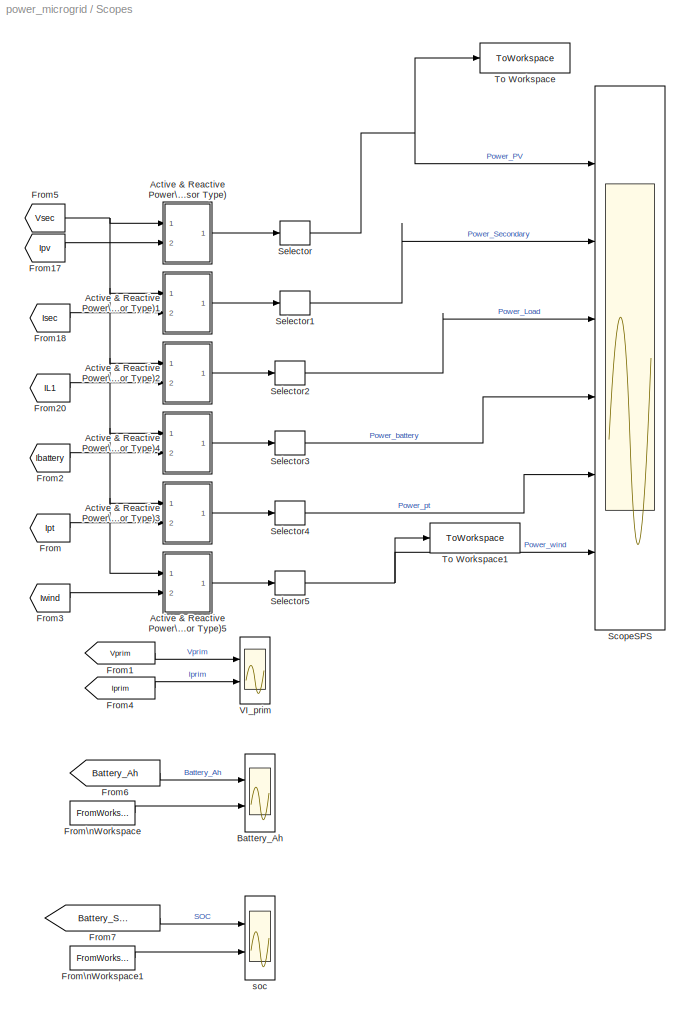
BLOCK [SubSystem] Scopes
  Ports = []
  RequestExecContextInheritance = off
  SID = 1101
BLOCK [SubSystem] Scopes/Active & Reactive Power\n(Phasor Type)
  DialogController = POWERSYS.PowerSysDialog
  Ports = [2, 1]
  RequestExecContextInheritance = off
  SID = 1337
BLOCK [ComplexToRealImag] Scopes/Active & Reactive Power\n(Phasor Type)/Complex to\nReal-Imag
  Ports = [1, 2]
  SID = 1337:3
BLOCK [Inport] Scopes/Active & Reactive Power\n(Phasor Type)/I
  Port = 2
  SID = 1337:2
BLOCK [Gain] Scopes/Active & Reactive Power\n(Phasor Type)/K
  Gain = 1/2
  OutDataTypeStr = Inherit: Same as input
  ParamDataTypeStr = Inherit: Same as input
  SID = 1337:4
  SaturateOnIntegerOverflow = on
BLOCK [Math] Scopes/Active & Reactive Power\n(Phasor Type)/Math\nFunction
  Operator = conj
  Ports = [1, 1]
  SID = 1337:5
  SignedPower = on
BLOCK [Mux] Scopes/Active & Reactive Power\n(Phasor Type)/Mux
  DisplayOption = bar
  Inputs = 2
  Ports = [2, 1]
  SID = 1337:6
BLOCK [Outport] Scopes/Active & Reactive Power\n(Phasor Type)/PQ
  SID = 1337:8
  VectorParamsAs1DForOutWhenUnconnected = off
BLOCK [Product] Scopes/Active & Reactive Power\n(Phasor Type)/Product2
  InputSameDT = on
  OutDataTypeStr = Inherit: Same as first input
  Ports = [2, 1]
  SID = 1337:7
  SaturateOnIntegerOverflow = on
BLOCK [Inport] Scopes/Active & Reactive Power\n(Phasor Type)/V
  SID = 1337:1
BLOCK [SubSystem] Scopes/Active & Reactive Power\n(Phasor Type)1
  DialogController = POWERSYS.PowerSysDialog
  Ports = [2, 1]
  RequestExecContextInheritance = off
  SID = 1339
BLOCK [ComplexToRealImag] Scopes/Active & Reactive Power\n(Phasor Type)1/Complex to\nReal-Imag
  Ports = [1, 2]
  SID = 1339:3
BLOCK [Inport] Scopes/Active & Reactive Power\n(Phasor Type)1/I
  Port = 2
  SID = 1339:2
BLOCK [Gain] Scopes/Active & Reactive Power\n(Phasor Type)1/K
  Gain = 1/2
  OutDataTypeStr = Inherit: Same as input
  ParamDataTypeStr = Inherit: Same as input
  SID = 1339:4
  SaturateOnIntegerOverflow = on
BLOCK [Math] Scopes/Active & Reactive Power\n(Phasor Type)1/Math\nFunction
  Operator = conj
  Ports = [1, 1]
  SID = 1339:5
  SignedPower = on
BLOCK [Mux] Scopes/Active & Reactive Power\n(Phasor Type)1/Mux
  DisplayOption = bar
  Inputs = 2
  Ports = [2, 1]
  SID = 1339:6
BLOCK [Outport] Scopes/Active & Reactive Power\n(Phasor Type)1/PQ
  SID = 1339:8
  VectorParamsAs1DForOutWhenUnconnected = off
BLOCK [Product] Scopes/Active & Reactive Power\n(Phasor Type)1/Product2
  InputSameDT = on
  OutDataTypeStr = Inherit: Same as first input
  Ports = [2, 1]
  SID = 1339:7
  SaturateOnIntegerOverflow = on
BLOCK [Inport] Scopes/Active & Reactive Power\n(Phasor Type)1/V
  SID = 1339:1
BLOCK [SubSystem] Scopes/Active & Reactive Power\n(Phasor Type)2
  DialogController = POWERSYS.PowerSysDialog
  Ports = [2, 1]
  RequestExecContextInheritance = off
  SID = 1340
BLOCK [ComplexToRealImag] Scopes/Active & Reactive Power\n(Phasor Type)2/Complex to\nReal-Imag
  Ports = [1, 2]
  SID = 1340:3
BLOCK [Inport] Scopes/Active & Reactive Power\n(Phasor Type)2/I
  Port = 2
  SID = 1340:2
BLOCK [Gain] Scopes/Active & Reactive Power\n(Phasor Type)2/K
  Gain = 1/2
  OutDataTypeStr = Inherit: Same as input
  ParamDataTypeStr = Inherit: Same as input
  SID = 1340:4
  SaturateOnIntegerOverflow = on
BLOCK [Math] Scopes/Active & Reactive Power\n(Phasor Type)2/Math\nFunction
  Operator = conj
  Ports = [1, 1]
  SID = 1340:5
  SignedPower = on
BLOCK [Mux] Scopes/Active & Reactive Power\n(Phasor Type)2/Mux
  DisplayOption = bar
  Inputs = 2
  Ports = [2, 1]
  SID = 1340:6
BLOCK [Outport] Scopes/Active & Reactive Power\n(Phasor Type)2/PQ
  SID = 1340:8
  VectorParamsAs1DForOutWhenUnconnected = off
BLOCK [Product] Scopes/Active & Reactive Power\n(Phasor Type)2/Product2
  InputSameDT = on
  OutDataTypeStr = Inherit: Same as first input
  Ports = [2, 1]
  SID = 1340:7
  SaturateOnIntegerOverflow = on
BLOCK [Inport] Scopes/Active & Reactive Power\n(Phasor Type)2/V
  SID = 1340:1
BLOCK [SubSystem] Scopes/Active & Reactive Power\n(Phasor Type)3
  DialogController = POWERSYS.PowerSysDialog
  Ports = [2, 1]
  RequestExecContextInheritance = off
  SID = 1656
BLOCK [ComplexToRealImag] Scopes/Active & Reactive Power\n(Phasor Type)3/Complex to\nReal-Imag
  Ports = [1, 2]
  SID = 1656:3
BLOCK [Inport] Scopes/Active & Reactive Power\n(Phasor Type)3/I
  Port = 2
  SID = 1656:2
BLOCK [Gain] Scopes/Active & Reactive Power\n(Phasor Type)3/K
  Gain = 1/2
  OutDataTypeStr = Inherit: Same as input
  ParamDataTypeStr = Inherit: Same as input
  SID = 1656:4
  SaturateOnIntegerOverflow = on
BLOCK [Math] Scopes/Active & Reactive Power\n(Phasor Type)3/Math\nFunction
  Operator = conj
  Ports = [1, 1]
  SID = 1656:5
  SignedPower = on
BLOCK [Mux] Scopes/Active & Reactive Power\n(Phasor Type)3/Mux
  DisplayOption = bar
  Inputs = 2
  Ports = [2, 1]
  SID = 1656:6
BLOCK [Outport] Scopes/Active & Reactive Power\n(Phasor Type)3/PQ
  SID = 1656:8
  VectorParamsAs1DForOutWhenUnconnected = off
BLOCK [Product] Scopes/Active & Reactive Power\n(Phasor Type)3/Product2
  InputSameDT = on
  OutDataTypeStr = Inherit: Same as first input
  Ports = [2, 1]
  SID = 1656:7
  SaturateOnIntegerOverflow = on
BLOCK [Inport] Scopes/Active & Reactive Power\n(Phasor Type)3/V
  SID = 1656:1
BLOCK [SubSystem] Scopes/Active & Reactive Power\n(Phasor Type)4
  DialogController = POWERSYS.PowerSysDialog
  Ports = [2, 1]
  RequestExecContextInheritance = off
  SID = 1342
BLOCK [ComplexToRealImag] Scopes/Active & Reactive Power\n(Phasor Type)4/Complex to\nReal-Imag
  Ports = [1, 2]
  SID = 1342:3
BLOCK [Inport] Scopes/Active & Reactive Power\n(Phasor Type)4/I
  Port = 2
  SID = 1342:2
BLOCK [Gain] Scopes/Active & Reactive Power\n(Phasor Type)4/K
  Gain = 1/2
  OutDataTypeStr = Inherit: Same as input
  ParamDataTypeStr = Inherit: Same as input
  SID = 1342:4
  SaturateOnIntegerOverflow = on
BLOCK [Math] Scopes/Active & Reactive Power\n(Phasor Type)4/Math\nFunction
  Operator = conj
  Ports = [1, 1]
  SID = 1342:5
  SignedPower = on
BLOCK [Mux] Scopes/Active & Reactive Power\n(Phasor Type)4/Mux
  DisplayOption = bar
  Inputs = 2
  Ports = [2, 1]
  SID = 1342:6
BLOCK [Outport] Scopes/Active & Reactive Power\n(Phasor Type)4/PQ
  SID = 1342:8
  VectorParamsAs1DForOutWhenUnconnected = off
BLOCK [Product] Scopes/Active & Reactive Power\n(Phasor Type)4/Product2
  InputSameDT = on
  OutDataTypeStr = Inherit: Same as first input
  Ports = [2, 1]
  SID = 1342:7
  SaturateOnIntegerOverflow = on
BLOCK [Inport] Scopes/Active & Reactive Power\n(Phasor Type)4/V
  SID = 1342:1
BLOCK [SubSystem] Scopes/Active & Reactive Power\n(Phasor Type)5
  DialogController = POWERSYS.PowerSysDialog
  Ports = [2, 1]
  RequestExecContextInheritance = off
  SID = 1657
BLOCK [ComplexToRealImag] Scopes/Active & Reactive Power\n(Phasor Type)5/Complex to\nReal-Imag
  Ports = [1, 2]
  SID = 1657:3
BLOCK [Inport] Scopes/Active & Reactive Power\n(Phasor Type)5/I
  Port = 2
  SID = 1657:2
BLOCK [Gain] Scopes/Active & Reactive Power\n(Phasor Type)5/K
  Gain = 1/2
  OutDataTypeStr = Inherit: Same as input
  ParamDataTypeStr = Inherit: Same as input
  SID = 1657:4
  SaturateOnIntegerOverflow = on
BLOCK [Math] Scopes/Active & Reactive Power\n(Phasor Type)5/Math\nFunction
  Operator = conj
  Ports = [1, 1]
  SID = 1657:5
  SignedPower = on
BLOCK [Mux] Scopes/Active & Reactive Power\n(Phasor Type)5/Mux
  DisplayOption = bar
  Inputs = 2
  Ports = [2, 1]
  SID = 1657:6
BLOCK [Outport] Scopes/Active & Reactive Power\n(Phasor Type)5/PQ
  SID = 1657:8
  VectorParamsAs1DForOutWhenUnconnected = off
BLOCK [Product] Scopes/Active & Reactive Power\n(Phasor Type)5/Product2
  InputSameDT = on
  OutDataTypeStr = Inherit: Same as first input
  Ports = [2, 1]
  SID = 1657:7
  SaturateOnIntegerOverflow = on
BLOCK [Inport] Scopes/Active & Reactive Power\n(Phasor Type)5/V
  SID = 1657:1
BLOCK [Scope] Scopes/Battery_Ah
  Floating = off
  NumInputPorts = 2
  Ports = [2]
  SID = 1352
  ScopeSpecificationString = Simulink.scopes.TimeScopeBlockCfg('CurrentConfiguration', extmgr.ConfigurationSet(extmgr.Configuration('Core','General UI',true),extmgr.Configuration('Core','Source UI',true),extmgr.Configuration('Sources','WiredSimulink',true,'DataLoggingVariableName','ScopeData1','DataLoggingSaveFormat','StructureWithTime','DataLoggingDecimation','1','DataLoggingDecimateData',true),extmgr.Configuration('Visuals'...<+1745ch>
BLOCK [From] Scopes/From
  GotoTag = Ipt
  SID = 1489
  TagVisibility = global
BLOCK [From] Scopes/From1
  GotoTag = Vprim
  SID = 1347
  TagVisibility = global
BLOCK [From] Scopes/From17
  GotoTag = Ipv
  SID = 396
  TagVisibility = global
BLOCK [From] Scopes/From18
  GotoTag = Isec
  SID = 397
  TagVisibility = global
BLOCK [From] Scopes/From2
  GotoTag = Ibattery
  SID = 911
  TagVisibility = global
BLOCK [From] Scopes/From20
  GotoTag = IL1
  SID = 401
  TagVisibility = global
BLOCK [From] Scopes/From3
  GotoTag = Iwind
  SID = 1490
  TagVisibility = global
BLOCK [From] Scopes/From4
  GotoTag = Iprim
  SID = 1348
  TagVisibility = global
BLOCK [From] Scopes/From5
  GotoTag = Vsec
  SID = 440
  TagVisibility = global
BLOCK [From] Scopes/From6
  GotoTag = Battery_Ah
  SID = 1350
  TagVisibility = global
BLOCK [From] Scopes/From7
  GotoTag = Battery_SOC
  SID = 2238
  TagVisibility = global
BLOCK [FromWorkspace] Scopes/From\nWorkspace
  SID = 2236
  VariableName = PT_AH
BLOCK [FromWorkspace] Scopes/From\nWorkspace1
  SID = 2237
  VariableName = PT_SOC
BLOCK [Scope] Scopes/ScopeSPS
  Floating = off
  NumInputPorts = 6
  Ports = [6]
  SID = 405
  ScopeSpecificationString = Simulink.scopes.TimeScopeBlockCfg('CurrentConfiguration', extmgr.ConfigurationSet(extmgr.Configuration('Core','General UI',true),extmgr.Configuration('Core','Source UI',true),extmgr.Configuration('Sources','WiredSimulink',true,'DataLogging',true,'DataLoggingVariableName','ScopeSPS','DataLoggingSaveFormat','StructureWithTime','DataLoggingDecimation','1','DataLoggingDecimateData',true),extmgr.Config...<+5112ch>
BLOCK [Selector] Scopes/Selector
  IndexOptions = Index vector (dialog)
  Indices = 1
  InputPortWidth = 2
  OutputSizes = 1
  Ports = [1, 1]
  SID = 1338
BLOCK [Selector] Scopes/Selector1
  IndexOptions = Index vector (dialog)
  Indices = 1
  InputPortWidth = 2
  OutputSizes = 1
  Ports = [1, 1]
  SID = 1343
BLOCK [Selector] Scopes/Selector2
  IndexOptions = Index vector (dialog)
  Indices = 1
  InputPortWidth = 2
  OutputSizes = 1
  Ports = [1, 1]
  SID = 1344
BLOCK [Selector] Scopes/Selector3
  IndexOptions = Index vector (dialog)
  Indices = 1
  InputPortWidth = 2
  OutputSizes = 1
  Ports = [1, 1]
  SID = 1345
BLOCK [Selector] Scopes/Selector4
  IndexOptions = Index vector (dialog)
  Indices = 1
  InputPortWidth = 2
  OutputSizes = 1
  Ports = [1, 1]
  SID = 1472
BLOCK [Selector] Scopes/Selector5
  IndexOptions = Index vector (dialog)
  Indices = 1
  InputPortWidth = 2
  OutputSizes = 1
  Ports = [1, 1]
  SID = 1473
BLOCK [ToWorkspace] Scopes/To Workspace
  FixptAsFi = on
  MaxDataPoints = inf
  Ports = [1]
  SID = 2221
  SampleTime = -1
  SaveFormat = Timeseries
  VariableName = Power_PV
BLOCK [ToWorkspace] Scopes/To Workspace1
  FixptAsFi = on
  MaxDataPoints = inf
  Ports = [1]
  SID = 2222
  SampleTime = -1
  SaveFormat = Timeseries
  VariableName = Power_wind
BLOCK [Scope] Scopes/VI_prim
  Floating = off
  NumInputPorts = 2
  Ports = [2]
  SID = 1349
  ScopeSpecificationString = Simulink.scopes.TimeScopeBlockCfg('CurrentConfiguration', extmgr.ConfigurationSet(extmgr.Configuration('Core','General UI',true),extmgr.Configuration('Core','Source UI',true),extmgr.Configuration('Sources','WiredSimulink',true,'DataLoggingSaveFormat','StructureWithTime','DataLoggingDecimation','1','DataLoggingDecimateData',true),extmgr.Configuration('Visuals','Time Domain',true,'SerializedDisplays...<+2379ch>
BLOCK [Scope] Scopes/soc
  Floating = off
  NumInputPorts = 2
  Ports = [2]
  SID = 1573
  ScopeSpecificationString = Simulink.scopes.TimeScopeBlockCfg('CurrentConfiguration', extmgr.ConfigurationSet(extmgr.Configuration('Core','General UI',true),extmgr.Configuration('Core','Source UI',true),extmgr.Configuration('Sources','WiredSimulink',true,'DataLoggingVariableName','ScopeData2'),extmgr.Configuration('Visuals','Time Domain',true,'SerializedDisplays',{struct('MinYLimReal','-38.6285','MaxYLimReal','26.90388','YLa...<+1434ch>
BLOCK [Reference] Series RLC Load  REF=spsSeriesRLCLoadLib/Series RLC Load
  ActivePower = 10e3
  AttributesFormatString = \\n
  CapacitivePower = 100
  InductivePower = 100
  InitialCurrent = 0
  InitialVoltage = 0
  LConnTagsString = a
  LoadType = constant Z
  Measurements = None
  NameLocation = right
  NominalFrequency = 60
  NominalVoltage = 1000
  Ports = [0, 0, 0, 0, 0, 1, 1]
  RConnTagsString = __new0
  SID = 194
  SetiL0 = off
  Setx0 = off
  SourceBlock = spsSeriesRLCLoadLib/Series RLC Load
  SourceProductBaseCode = PS
  SourceType = Series RLC Load
BLOCK [Reference] Series RLC Load1  REF=spsSeriesRLCLoadLib/Series RLC Load
  ActivePower = 100e3
  AttributesFormatString = \\n
  CapacitivePower = 100
  InductivePower = 100
  InitialCurrent = 0
  InitialVoltage = 0
  LConnTagsString = a
  LoadType = constant Z
  Measurements = None
  NameLocation = right
  NominalFrequency = 60
  NominalVoltage = 1000
  Ports = [0, 0, 0, 0, 0, 1, 1]
  RConnTagsString = __new0
  SID = 195
  SetiL0 = off
  Setx0 = off
  SourceBlock = spsSeriesRLCLoadLib/Series RLC Load
  SourceProductBaseCode = PS
  SourceType = Series RLC Load
BLOCK [Reference] Series RLC Load2  REF=spsSeriesRLCLoadLib/Series RLC Load
  ActivePower = 10e3
  AttributesFormatString = \\n
  CapacitivePower = 100
  InductivePower = 100
  InitialCurrent = 0
  InitialVoltage = 0
  LConnTagsString = a
  LoadType = constant Z
  Measurements = None
  NameLocation = right
  NominalFrequency = 60
  NominalVoltage = 1000
  Ports = [0, 0, 0, 0, 0, 1, 1]
  RConnTagsString = __new0
  SID = 196
  SetiL0 = off
  Setx0 = off
  SourceBlock = spsSeriesRLCLoadLib/Series RLC Load
  SourceProductBaseCode = PS
  SourceType = Series RLC Load
BLOCK [SubSystem] Subsystem1
  Ports = [0, 1, 0, 0, 0, 0, 1]
  RequestExecContextInheritance = off
  SID = 1476
BLOCK [PMIOPort] Subsystem1/Conn1
  NameLocation = right
  SID = 2231
  Side = Right
BLOCK [Reference] Subsystem1/Controlled Current Source  REF=spsControlledCurrentSourceLib/Controlled Current Source
  Amplitude = 0
  Frequency = 60
  Initialize = on
  Measurements = None
  NameLocation = right
  Phase = 30
  Ports = [1, 0, 0, 0, 0, 1, 1]
  RTWMemSecDataConstants = Inherit from model
  RTWMemSecDataInternal = Inherit from model
  RTWMemSecDataParameters = Inherit from model
  RTWMemSecFuncExecute = Inherit from model
  RTWMemSecFuncInitTerm = Inherit from model
  SID = 2224
  SourceBlock = spsControlledCurrentSourceLib/Controlled Current Source
  SourceProductBaseCode = PS
  SourceType = Controlled Current Source
  Source_Type = AC
BLOCK [From] Subsystem1/From24
  GotoTag = Phase_pv
  SID = 2225
  TagVisibility = global
BLOCK [FromWorkspace] Subsystem1/From\nWorkspace
  SID = 2234
  VariableName = simout
BLOCK [Gain] Subsystem1/Gain
  Gain = 1/200
  SID = 2235
BLOCK [Gain] Subsystem1/Gain3
  Gain = sqrt(2)
  SID = 2226
BLOCK [Reference] Subsystem1/Ground2  REF=spsGroundLib/Ground
  LConnTagsString = a
  NameLocation = right
  Ports = [0, 0, 0, 0, 0, 1]
  SID = 2227
  SourceBlock = spsGroundLib/Ground
  SourceProductBaseCode = PS
  SourceType = Ground
BLOCK [MagnitudeAngleToComplex] Subsystem1/Magnitude-Angle to Complex
  Ports = [2, 1]
  SID = 2228
BLOCK [Outport] Subsystem1/Out1
  NameLocation = right
  SID = 2232
  VectorParamsAs1DForOutWhenUnconnected = off
BLOCK [Reference] Subsystem1/Snubber1  REF=spsSeriesRLCBranchLib/Series RLC Branch
  BranchType = R
  Capacitance = 1e-6
  Inductance = 1e-3
  InitialCurrent = 0
  InitialVoltage = 0
  LConnTagsString = __new0
  Measurements = None
  NameLocation = right
  Ports = [0, 0, 0, 0, 0, 1, 1]
  RConnTagsString = __new0
  Resistance = 1e6
  SID = 2229
  SetiL0 = off
  Setx0 = off
  SourceBlock = spsSeriesRLCBranchLib/Series RLC Branch
  SourceProductBaseCode = PS
  SourceType = Series RLC Branch
BLOCK [Reference] Subsystem1/meas cur3  REF=spsCurrentMeasurementLib/Current Measurement
  NameLocation = left
  OutputType = Complex
  PSBequivalent = 0
  PhasorSimulation = on
  Ports = [0, 1, 0, 0, 0, 1, 1]
  RTWMemSecDataConstants = Inherit from model
  RTWMemSecDataInternal = Inherit from model
  RTWMemSecDataParameters = Inherit from model
  RTWMemSecFuncExecute = Inherit from model
  RTWMemSecFuncInitTerm = Inherit from model
  SID = 2230
  SourceBlock = spsCurrentMeasurementLib/Current Measurement
  SourceProductBaseCode = PS
  SourceType = Current Measurement
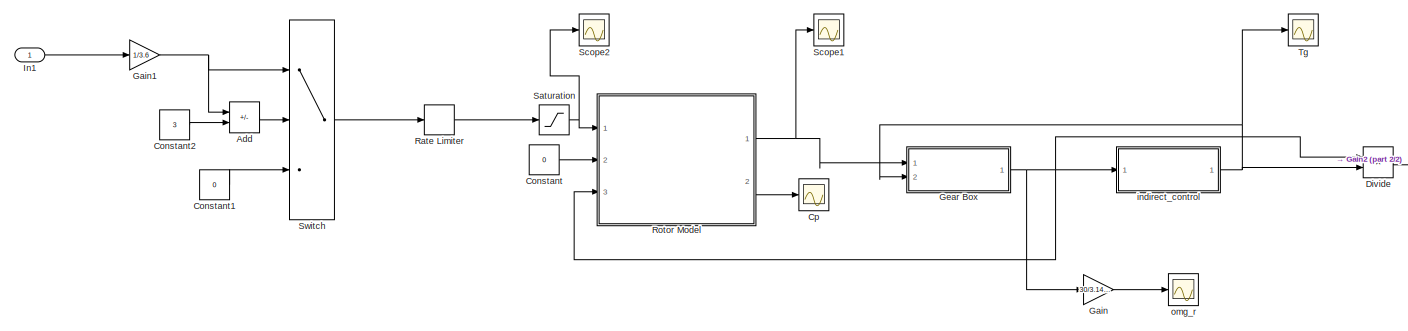
[diagram: Subsystem2 - part 1/2, center side, full height]
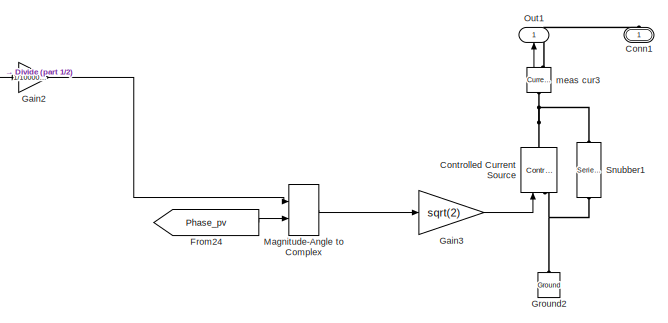
[diagram: Subsystem2 - part 2/2, middle right region]
BLOCK [SubSystem] Subsystem2
  Ports = [1, 1, 0, 0, 0, 0, 1]
  RequestExecContextInheritance = off
  SID = 1481
BLOCK [Sum] Subsystem2/Add
  IconShape = rectangular
  Inputs = +-
  Ports = [2, 1]
  SID = 1574
BLOCK [PMIOPort] Subsystem2/Conn1
  NameLocation = right
  SID = 1653
  Side = Right
BLOCK [Constant] Subsystem2/Constant
  SID = 1575
  Value = 0
BLOCK [Constant] Subsystem2/Constant1
  SID = 1576
  Value = 0
BLOCK [Constant] Subsystem2/Constant2
  SID = 1577
  Value = 3
BLOCK [Reference] Subsystem2/Controlled Current Source  REF=spsControlledCurrentSourceLib/Controlled Current Source
  Amplitude = 0
  Frequency = 60
  Initialize = on
  Measurements = None
  NameLocation = right
  Phase = 30
  Ports = [1, 0, 0, 0, 0, 1, 1]
  RTWMemSecDataConstants = Inherit from model
  RTWMemSecDataInternal = Inherit from model
  RTWMemSecDataParameters = Inherit from model
  RTWMemSecFuncExecute = Inherit from model
  RTWMemSecFuncInitTerm = Inherit from model
  SID = 1646
  SourceBlock = spsControlledCurrentSourceLib/Controlled Current Source
  SourceProductBaseCode = PS
  SourceType = Controlled Current Source
  Source_Type = AC
BLOCK [Scope] Subsystem2/Cp
  Floating = off
  NumInputPorts = 1
  Ports = [1]
  SID = 1578
  ScopeSpecificationString = Simulink.scopes.TimeScopeBlockCfg('CurrentConfiguration', extmgr.ConfigurationSet(extmgr.Configuration('Core','General UI',true),extmgr.Configuration('Core','Source UI',true),extmgr.Configuration('Sources','WiredSimulink',true,'DataLoggingVariableName','ScopeData2'),extmgr.Configuration('Visuals','Time Domain',true,'SerializedDisplays',{struct('MinYLimReal','0.39353','MaxYLimReal','0.43812','YLabe...<+1409ch>
BLOCK [Product] Subsystem2/Divide
  Inputs = **
  Ports = [2, 1]
  SID = 1579
BLOCK [From] Subsystem2/From24
  GotoTag = Phase_pv
  SID = 1647
  TagVisibility = global
BLOCK [Gain] Subsystem2/Gain
  Gain = 30/3.14159
  SID = 1580
BLOCK [Gain] Subsystem2/Gain1
  Gain = 1/3.6
  SID = 1581
BLOCK [Gain] Subsystem2/Gain2
  Gain = 1/100000/500
  SID = 1632
BLOCK [Gain] Subsystem2/Gain3
  Gain = sqrt(2)
  SID = 1648
BLOCK [SubSystem] Subsystem2/Gear Box
  Ports = [2, 1]
  RequestExecContextInheritance = off
  SID = 1582
BLOCK [Sum] Subsystem2/Gear Box/Add
  IconShape = rectangular
  Inputs = +-
  Ports = [2, 1]
  SID = 1585
BLOCK [Gain] Subsystem2/Gear Box/Gain
  Gain = 1/J_t
  SID = 1586
BLOCK [Gain] Subsystem2/Gear Box/Gain1
  Gain = -K_t/J_t
  SID = 1587
BLOCK [Integrator] Subsystem2/Gear Box/Integrator
  InitialCondition = 1.5
  Ports = [1, 1]
  SID = 1588
BLOCK [Sum] Subsystem2/Gear Box/Sum
  Inputs = |++
  Ports = [2, 1]
  SID = 1589
BLOCK [Inport] Subsystem2/Gear Box/T_a
  SID = 1583
BLOCK [Inport] Subsystem2/Gear Box/T_g
  Port = 2
  SID = 1584
BLOCK [Outport] Subsystem2/Gear Box/omg_r
  SID = 1590
BLOCK [Reference] Subsystem2/Ground2  REF=spsGroundLib/Ground
  LConnTagsString = a
  NameLocation = right
  Ports = [0, 0, 0, 0, 0, 1]
  SID = 1649
  SourceBlock = spsGroundLib/Ground
  SourceProductBaseCode = PS
  SourceType = Ground
BLOCK [Inport] Subsystem2/In1
  SID = 1482
BLOCK [MagnitudeAngleToComplex] Subsystem2/Magnitude-Angle to Complex
  Ports = [2, 1]
  SID = 1650
BLOCK [Outport] Subsystem2/Out1
  NameLocation = right
  SID = 1654
  VectorParamsAs1DForOutWhenUnconnected = off
BLOCK [RateLimiter] Subsystem2/Rate Limiter
  FallingSlewLimit = -0.001
  RisingSlewLimit = 0.001
  SID = 1592
  SampleTimeMode = inherited
BLOCK [SubSystem] Subsystem2/Rotor Model
  Ports = [3, 2]
  RequestExecContextInheritance = off
  SID = 1593
BLOCK [Fcn] Subsystem2/Rotor Model/1//m
  Expr = 1/(u(1)+0.08*u(2))-0.035/(u(2)^3+1)
  SID = 1597
BLOCK [Fcn] Subsystem2/Rotor Model/C_p
  Expr = 0.22*(116*u(1)-0.4*u(2)-5)*exp(-12.5*u(1))
  SID = 1598
BLOCK [Outport] Subsystem2/Rotor Model/Cp
  Port = 2
  SID = 1611
BLOCK [Product] Subsystem2/Rotor Model/Divide
  Inputs = /*
  Ports = [2, 1]
  SID = 1599
BLOCK [From] Subsystem2/Rotor Model/From
  GotoTag = lamda
  SID = 1600
BLOCK [Goto] Subsystem2/Rotor Model/Goto
  GotoTag = lamda
  SID = 1601
BLOCK [Mux] Subsystem2/Rotor Model/Mux
  DisplayOption = bar
  Inputs = 2
  Ports = [2, 1]
  SID = 1602
BLOCK [Mux] Subsystem2/Rotor Model/Mux1
  DisplayOption = bar
  Inputs = 2
  Ports = [2, 1]
  SID = 1603
BLOCK [Mux] Subsystem2/Rotor Model/Mux2
  DisplayOption = bar
  Inputs = 2
  Ports = [2, 1]
  SID = 1604
BLOCK [Mux] Subsystem2/Rotor Model/Mux3
  DisplayOption = bar
  Inputs = 2
  Ports = [2, 1]
  SID = 1605
BLOCK [Scope] Subsystem2/Rotor Model/Scope
  Floating = off
  NumInputPorts = 1
  Ports = [1]
  SID = 1606
  ScopeSpecificationString = Simulink.scopes.TimeScopeBlockCfg('CurrentConfiguration', extmgr.ConfigurationSet(extmgr.Configuration('Core','General UI',true),extmgr.Configuration('Core','Source UI',true),extmgr.Configuration('Sources','WiredSimulink',true,'DataLoggingVariableName','ScopeData1'),extmgr.Configuration('Visuals','Time Domain',true,'SerializedDisplays',{struct('MinYLimReal','-1.875','MaxYLimReal','16.875','YLabelR...<+1419ch>
BLOCK [Scope] Subsystem2/Rotor Model/Scope1
  Floating = off
  NumInputPorts = 1
  Ports = [1]
  SID = 1607
  ScopeSpecificationString = Simulink.scopes.TimeScopeBlockCfg('CurrentConfiguration', extmgr.ConfigurationSet(extmgr.Configuration('Core','General UI',true),extmgr.Configuration('Core','Source UI',true),extmgr.Configuration('Sources','WiredSimulink',true,'DataLoggingVariableName','ScopeData2'),extmgr.Configuration('Visuals','Time Domain',true,'SerializedDisplays',{struct('MinYLimReal','-1.7685','MaxYLimReal','21.24653','YLab...<+1366ch>
BLOCK [Outport] Subsystem2/Rotor Model/T_a
  SID = 1610
BLOCK [Fcn] Subsystem2/Rotor Model/Torque
  Expr = 0.5*3.14159*rho*(40^3)*(u(1)^2)*u(2)
  SID = 1608
BLOCK [Fcn] Subsystem2/Rotor Model/lamda
  Expr = u(2)*40/u(1)
  SID = 1609
BLOCK [Inport] Subsystem2/Rotor Model/omg_r
  Port = 3
  SID = 1596
BLOCK [Inport] Subsystem2/Rotor Model/pitch
  Port = 2
  SID = 1595
BLOCK [Inport] Subsystem2/Rotor Model/wind speed
  SID = 1594
BLOCK [Saturate] Subsystem2/Saturation
  LowerLimit = 0
  SID = 1612
  UpperLimit = 25
BLOCK [Scope] Subsystem2/Scope1
  Floating = off
  NumInputPorts = 1
  Ports = [1]
  SID = 1613
  ScopeSpecificationString = Simulink.scopes.TimeScopeBlockCfg('CurrentConfiguration', extmgr.ConfigurationSet(extmgr.Configuration('Core','General UI',true),extmgr.Configuration('Core','Source UI',true),extmgr.Configuration('Sources','WiredSimulink',true,'DataLoggingVariableName','ScopeData4'),extmgr.Configuration('Visuals','Time Domain',true,'SerializedDisplays',{struct('MinYLimReal','-145648.53188','MaxYLimReal','1309344.5...<+1466ch>
BLOCK [Scope] Subsystem2/Scope2
  Floating = off
  NumInputPorts = 1
  Ports = [1]
  SID = 1614
  ScopeSpecificationString = Simulink.scopes.TimeScopeBlockCfg('CurrentConfiguration', extmgr.ConfigurationSet(extmgr.Configuration('Core','General UI',true),extmgr.Configuration('Core','Source UI',true),extmgr.Configuration('Sources','WiredSimulink',true,'DataLoggingVariableName','ScopeData5'),extmgr.Configuration('Visuals','Time Domain',true,'SerializedDisplays',{struct('MinYLimReal','-3.125','MaxYLimReal','28.125','YLabelR...<+1527ch>
BLOCK [Reference] Subsystem2/Snubber1  REF=spsSeriesRLCBranchLib/Series RLC Branch
  BranchType = R
  Capacitance = 1e-6
  Inductance = 1e-3
  InitialCurrent = 0
  InitialVoltage = 0
  LConnTagsString = __new0
  Measurements = None
  NameLocation = right
  Ports = [0, 0, 0, 0, 0, 1, 1]
  RConnTagsString = __new0
  Resistance = 1e6
  SID = 1651
  SetiL0 = off
  Setx0 = off
  SourceBlock = spsSeriesRLCBranchLib/Series RLC Branch
  SourceProductBaseCode = PS
  SourceType = Series RLC Branch
BLOCK [Switch] Subsystem2/Switch
  Criteria = u2 > Threshold
  InputSameDT = off
  SID = 1616
  SaturateOnIntegerOverflow = off
BLOCK [Scope] Subsystem2/Tg
  Floating = off
  NumInputPorts = 1
  Ports = [1]
  SID = 1617
  ScopeSpecificationString = Simulink.scopes.TimeScopeBlockCfg('CurrentConfiguration', extmgr.ConfigurationSet(extmgr.Configuration('Core','General UI',true),extmgr.Configuration('Core','Source UI',true),extmgr.Configuration('Sources','WiredSimulink',true,'DataLoggingVariableName','ScopeData6'),extmgr.Configuration('Visuals','Time Domain',true,'SerializedDisplays',{struct('MinYLimReal','-80155.00924','MaxYLimReal','1528490.65...<+1446ch>
BLOCK [SubSystem] Subsystem2/indirect_control
  Ports = [1, 1]
  RequestExecContextInheritance = off
  SID = 1618
BLOCK [Fcn] Subsystem2/indirect_control/1
  Expr = u*u
  SID = 1620
BLOCK [Fcn] Subsystem2/indirect_control/2
  Expr = u^5
  SID = 1621
BLOCK [Fcn] Subsystem2/indirect_control/3
  Expr = u^3
  SID = 1622
BLOCK [Constant] Subsystem2/indirect_control/Constant
  SID = 1623
  Value = 0.5
BLOCK [Constant] Subsystem2/indirect_control/Constant1
  SID = 1624
  Value = pi
BLOCK [Constant] Subsystem2/indirect_control/Constant2
  SID = 1625
  Value = rho
BLOCK [Constant] Subsystem2/indirect_control/Constant3
  SID = 1626
  Value = 40
BLOCK [Constant] Subsystem2/indirect_control/Constant4
  SID = 1627
  Value = Cp_max
BLOCK [Product] Subsystem2/indirect_control/Divide
  Inputs = ******/
  Ports = [7, 1]
  SID = 1628
BLOCK [Outport] Subsystem2/indirect_control/T_g
  SID = 1630
BLOCK [Constant] Subsystem2/indirect_control/lamda_opt
  SID = 1629
  Value = lambda_opt
BLOCK [Inport] Subsystem2/indirect_control/omg_r
  SID = 1619
BLOCK [Reference] Subsystem2/meas cur3  REF=spsCurrentMeasurementLib/Current Measurement
  NameLocation = left
  OutputType = Complex
  PSBequivalent = 0
  PhasorSimulation = on
  Ports = [0, 1, 0, 0, 0, 1, 1]
  RTWMemSecDataConstants = Inherit from model
  RTWMemSecDataInternal = Inherit from model
  RTWMemSecDataParameters = Inherit from model
  RTWMemSecFuncExecute = Inherit from model
  RTWMemSecFuncInitTerm = Inherit from model
  SID = 1652
  SourceBlock = spsCurrentMeasurementLib/Current Measurement
  SourceProductBaseCode = PS
  SourceType = Current Measurement
BLOCK [Scope] Subsystem2/omg_r
  Floating = off
  NumInputPorts = 1
  Ports = [1]
  SID = 1631
  ScopeSpecificationString = Simulink.scopes.TimeScopeBlockCfg('CurrentConfiguration', extmgr.ConfigurationSet(extmgr.Configuration('Core','General UI',true),extmgr.Configuration('Core','Source UI',true),extmgr.Configuration('Sources','WiredSimulink',true,'DataLoggingVariableName','ScopeData7'),extmgr.Configuration('Visuals','Time Domain',true,'SerializedDisplays',{struct('MinYLimReal','-1.79049','MaxYLimReal','16.11445','YLa...<+1417ch>
BLOCK [Reference] Three-Phase\nSource  REF=spsThreePhaseSourceLib/Three-Phase Source
  BaseVoltage = 25e3
  BusType = swing
  Frequency = 60
  Inductance = 16.58e-3
  InternalConnection = Yg
  NameLocation = top
  NonIdealSource = on
  PhaseAngle = 0
  PhaseAngles_phases = [0 -120 +120]
  Ports = [0, 0, 0, 0, 0, 0, 3]
  Pref = 0
  Prefabc = [10e3, 10e3, 10e3]
  Qmax = inf
  Qmin = -inf
  Qref = 0
  Qrefabc = [0, 0, 0]
  RTWMemSecDataConstants = Inherit from model
  RTWMemSecDataInternal = Inherit from model
  RTWMemSecDataParameters = Inherit from model
  RTWMemSecFuncExecute = Inherit from model
  RTWMemSecFuncInitTerm = Inherit from model
  Resistance = 0.8929
  SID = 301
  ShortCircuitLevel = 100e6
  SourceBlock = spsThreePhaseSourceLib/Three-Phase Source
  SourceProductBaseCode = PS
  SourceType = Three-Phase Source
  SpecifyImpedance = on
  Voltage = 66e3
  VoltagePhases = off
  Voltage_phases = [25e3 25e3 25e3]/sqrt(3)
  XRratio = 7
BLOCK [Reference] Voltage Measurement  REF=spsVoltageMeasurementLib/Voltage Measurement
  NameLocation = top
  OutputType = Complex
  PSBequivalent = 0
  PhasorSimulation = on
  Ports = [0, 1, 0, 0, 0, 2]
  RTWMemSecDataConstants = Inherit from model
  RTWMemSecDataInternal = Inherit from model
  RTWMemSecDataParameters = Inherit from model
  RTWMemSecFuncExecute = Inherit from model
  RTWMemSecFuncInitTerm = Inherit from model
  SID = 198
  SourceBlock = spsVoltageMeasurementLib/Voltage Measurement
  SourceProductBaseCode = PS
  SourceType = Voltage Measurement
BLOCK [Reference] Voltage Measurement1  REF=spsVoltageMeasurementLib/Voltage Measurement
  NameLocation = top
  OutputType = Magnitude-Angle
  PSBequivalent = 0
  PhasorSimulation = on
  Ports = [0, 1, 0, 0, 0, 2]
  RTWMemSecDataConstants = Inherit from model
  RTWMemSecDataInternal = Inherit from model
  RTWMemSecDataParameters = Inherit from model
  RTWMemSecFuncExecute = Inherit from model
  RTWMemSecFuncInitTerm = Inherit from model
  SID = 293
  SourceBlock = spsVoltageMeasurementLib/Voltage Measurement
  SourceProductBaseCode = PS
  SourceType = Voltage Measurement
BLOCK [Reference] meas cur1  REF=spsCurrentMeasurementLib/Current Measurement
  NameLocation = top
  OutputType = Complex
  PSBequivalent = 0
  PhasorSimulation = on
  Ports = [0, 1, 0, 0, 0, 1, 1]
  RTWMemSecDataConstants = Inherit from model
  RTWMemSecDataInternal = Inherit from model
  RTWMemSecDataParameters = Inherit from model
  RTWMemSecFuncExecute = Inherit from model
  RTWMemSecFuncInitTerm = Inherit from model
  SID = 262
  SourceBlock = spsCurrentMeasurementLib/Current Measurement
  SourceProductBaseCode = PS
  SourceType = Current Measurement
BLOCK [Reference] meas cur4  REF=spsCurrentMeasurementLib/Current Measurement
  OutputType = Magnitude-Angle
  PSBequivalent = 0
  PhasorSimulation = on
  Ports = [0, 1, 0, 0, 0, 1, 1]
  RTWMemSecDataConstants = Inherit from model
  RTWMemSecDataInternal = Inherit from model
  RTWMemSecDataParameters = Inherit from model
  RTWMemSecFuncExecute = Inherit from model
  RTWMemSecFuncInitTerm = Inherit from model
  SID = 294
  SourceBlock = spsCurrentMeasurementLib/Current Measurement
  SourceProductBaseCode = PS
  SourceType = Current Measurement
BLOCK [Reference] powergui  REF=spspowerguiLib/powergui
  AutomaticDiscreteSolvers = off
  ContinueOnMaxIteration = off
  CurrentSourceSwitches = off
  DisableRonSwitches = off
  DisableSnubberDevices = off
  DisableVfSwitches = off
  DisplayEquations = off
  DisplayStyle = 1
  EnableUseOfTLC = off
  ErrMax = 1e-4
  ExternalGateDelay = off
  Frange = [0:2:500]
  FreqAxis = off
  FunctionMessages = off
  HookPort = off
  Interpol = off
  Iterations = 50
  MaxFrequency = 1000
  NonlinearTolerance = 0
  Pbase = 100e6
  Ports = []
  RTWMemSecDataConstants = Inherit from model
  RTWMemSecDataInternal = Inherit from model
  RTWMemSecDataParameters = Inherit from model
  RTWMemSecFuncExecute = Inherit from model
  RTWMemSecFuncInitTerm = Inherit from model
  ResistiveCurrentMeasurement = off
  RestoreLinks = warning
  RmsSteady = 1
  SID = 12
  SPID = off
  SampleTime = 1/60/100
  ShowGrid = off
  SolverType = Tustin
  SourceBlock = spspowerguiLib/powergui
  SourceProductBaseCode = PS
  SourceType = PSB option menu block
  StartTime = 0.0
  SwTol = 0
  Ts = 0
  UnitsV = kV
  UnitsW = MW
  Xlog = on
  Ylog = off
  ZoomFFT = on
  buscounter = 0
  cycles = 1
  display = off
  echomessages = off
  frequency = 60
  frequencyindice = 60
  frequencyindicesteady = 1
  fundamental = 60
  methode = off
  nMaxIteration = 15
  save = off
  structure = 0
  variable = ZData
  x0status = blocks
ANNOTATION (root): Battery Controller
ANNOTATION (root): House1
ANNOTATION (root): Pole Mounted\nTransformer
ANNOTATION (root): Power Grid
ANNOTATION (root): Scopes
ANNOTATION (root): signal
LINE Battery/In1:1 -> Battery/Controlled Current Source1:1
LINE Battery/meas cur6:1 -> Battery/Out1:1
LINE Battery1/Add:1 -> Battery1/Storage1:1
LINE Battery1/Battery_Control/Active & Reactive Power\n(Phasor Type)/Complex to\nReal-Imag:1 -> Battery1/Battery_Control/Active & Reactive Power\n(Phasor Type)/Mux:1
LINE Battery1/Battery_Control/Active & Reactive Power\n(Phasor Type)/Complex to\nReal-Imag:2 -> Battery1/Battery_Control/Active & Reactive Power\n(Phasor Type)/Mux:2
LINE Battery1/Battery_Control/Active & Reactive Power\n(Phasor Type)/I:1 -> Battery1/Battery_Control/Active & Reactive Power\n(Phasor Type)/Math\nFunction:1
LINE Battery1/Battery_Control/Active & Reactive Power\n(Phasor Type)/K:1 -> Battery1/Battery_Control/Active & Reactive Power\n(Phasor Type)/Complex to\nReal-Imag:1
LINE Battery1/Battery_Control/Active & Reactive Power\n(Phasor Type)/Math\nFunction:1 -> Battery1/Battery_Control/Active & Reactive Power\n(Phasor Type)/Product2:2
LINE Battery1/Battery_Control/Active & Reactive Power\n(Phasor Type)/Mux:1 -> Battery1/Battery_Control/Active & Reactive Power\n(Phasor Type)/PQ:1
LINE Battery1/Battery_Control/Active & Reactive Power\n(Phasor Type)/Product2:1 -> Battery1/Battery_Control/Active & Reactive Power\n(Phasor Type)/K:1
LINE Battery1/Battery_Control/Active & Reactive Power\n(Phasor Type)/V:1 -> Battery1/Battery_Control/Active & Reactive Power\n(Phasor Type)/Product2:1
LINE Battery1/Battery_Control/Active & Reactive Power\n(Phasor Type):1 -> Battery1/Battery_Control/Demux:1
LINE Battery1/Battery_Control/Add6:1 -> Battery1/Battery_Control/Integral\nGain:1
NET Battery1/Battery_Control/Demux:1 -> Battery1/Battery_Control/Add6:2, Battery1/Battery_Control/Switch:3
LINE Battery1/Battery_Control/Demux:2 -> Battery1/Battery_Control/Terminator:1
LINE Battery1/Battery_Control/I:1 -> Battery1/Battery_Control/Active & Reactive Power\n(Phasor Type):2
LINE Battery1/Battery_Control/Integral\nGain:1 -> Battery1/Battery_Control/Integrator:1
LINE Battery1/Battery_Control/Integrator:1 -> Battery1/Battery_Control/I_RMS:1
NET Battery1/Battery_Control/On:1 -> Battery1/Battery_Control/Integrator:2, Battery1/Battery_Control/Switch:2
LINE Battery1/Battery_Control/Pref:1 -> Battery1/Battery_Control/Switch:1
LINE Battery1/Battery_Control/Switch:1 -> Battery1/Battery_Control/Add6:1
LINE Battery1/Battery_Control/V:1 -> Battery1/Battery_Control/Active & Reactive Power\n(Phasor Type):1
NET Battery1/Battery_Control:1 -> Battery1/Magnitude-Angle to Complex:1, Battery1/Switch1:1, Battery1/Switch:3
LINE Battery1/Constant1:1 -> Battery1/Switch1:3
LINE Battery1/Constant2:1 -> Battery1/Battery_Control:3
LINE Battery1/Constant:1 -> Battery1/Switch:1
LINE Battery1/From23:1 -> Battery1/Battery_Control:1
LINE Battery1/From24:1 -> Battery1/Magnitude-Angle to Complex:2
LINE Battery1/From25:1 -> Battery1/Battery_Control:2
LINE Battery1/From\nWorkspace:1 -> Battery1/Add:2
LINE Battery1/Gain3:1 -> Battery1/Goto14:1
LINE Battery1/Magnitude-Angle to Complex:1 -> Battery1/Gain3:1
LINE Battery1/Storage1/Add:1 -> Battery1/Storage1/Gain8:1
LINE Battery1/Storage1/Constant1:1 -> Battery1/Storage1/Add:1
LINE Battery1/Storage1/Constant:1 -> Battery1/Storage1/Integrator1:2
LINE Battery1/Storage1/Gain3:1 -> Battery1/Storage1/Add:2
LINE Battery1/Storage1/Gain8:1 -> Battery1/Storage1/Battery_SOC:1
LINE Battery1/Storage1/Gain:1 -> Battery1/Storage1/Battery_Ah:1
NET Battery1/Storage1/I_RMS:1 -> Battery1/Storage1/Integrator1:1, Battery1/Storage1/Integrator:1
LINE Battery1/Storage1/Integrator1:1 -> Battery1/Storage1/Gain3:1
LINE Battery1/Storage1/Integrator:1 -> Battery1/Storage1/Gain:1
NET Battery1/Storage1:1 -> Battery1/Ah1:1, Battery1/To Workspace1:1
NET Battery1/Storage1:2 -> Battery1/SOC1:1, Battery1/To Workspace2:1
LINE Battery1/Subsystem/Add1:1 -> Battery1/Subsystem/Saturation:1
LINE Battery1/Subsystem/Add:1 -> Battery1/Subsystem/Gain8:1
LINE Battery1/Subsystem/Constant1:1 -> Battery1/Subsystem/Add:1
LINE Battery1/Subsystem/Constant2:1 -> Battery1/Subsystem/Add1:1
LINE Battery1/Subsystem/Constant:1 -> Battery1/Subsystem/Integrator1:2
LINE Battery1/Subsystem/Gain3:1 -> Battery1/Subsystem/Add:2
LINE Battery1/Subsystem/Gain8:1 -> Battery1/Subsystem/Add1:2
LINE Battery1/Subsystem/Gain:1 -> Battery1/Subsystem/Battery_Ah:1
NET Battery1/Subsystem/I_RMS:1 -> Battery1/Subsystem/Integrator1:1, Battery1/Subsystem/Integrator:1
LINE Battery1/Subsystem/Integrator1:1 -> Battery1/Subsystem/Gain3:1
LINE Battery1/Subsystem/Integrator:1 -> Battery1/Subsystem/Gain:1
LINE Battery1/Subsystem/Saturation:1 -> Battery1/Subsystem/Battery_SOC:1
LINE Battery1/Subsystem:1 -> Battery1/Goto15:1
NET Battery1/Subsystem:2 -> Battery1/Goto17:1, Battery1/Switch1:2, Battery1/Switch:2
LINE Battery1/Switch1:1 -> Battery1/Subsystem:1
LINE Battery1/Switch:1 -> Battery1/Add:1
LINE Battery:1 -> Goto11:1
LINE From13:1 -> House 1:1
LINE From1:1 -> Battery:1
LINE From2:1 -> Scenario:1
LINE From4:1 -> Product:1
LINE From5:1 -> Subsystem2:1
LINE House 1/From24:1 -> House 1/Magnitude-Angle to Complex:2
LINE House 1/Gain3:1 -> House 1/Controlled Current Source4:1
LINE House 1/In1:1 -> House 1/Magnitude-Angle to Complex:1
LINE House 1/Magnitude-Angle to Complex:1 -> House 1/Gain3:1
LINE House 1/meas cur2:1 -> House 1/Out1:1
LINE House 1:1 -> Goto6:1
LINE PV/From24:1 -> PV/Magnitude-Angle to Complex:2
LINE PV/Gain3:1 -> PV/Controlled Current Source:1
LINE PV/In1:1 -> PV/Simulink-PS\nConverter:1
LINE PV/Magnitude-Angle to Complex:1 -> PV/Gain3:1
LINE PV/PS-Simulink\nConverter1:1 -> PV/Magnitude-Angle to Complex:1
LINE PV/meas cur3:1 -> PV/Out1:1
LINE PV:1 -> Goto3:1
LINE Partial\nShading/Add:1 -> Partial\nShading/Out:1
NET Partial\nShading/Clock:1 -> Partial\nShading/Compare\nTo Constant1:1, Partial\nShading/Compare\nTo Constant:1
LINE Partial\nShading/Compare\nTo Constant1:1 -> Partial\nShading/Logical\nOperator:2
LINE Partial\nShading/Compare\nTo Constant:1 -> Partial\nShading/Logical\nOperator:1
LINE Partial\nShading/Constant:1 -> Partial\nShading/Product:2
LINE Partial\nShading/Logical\nOperator1:1 -> Partial\nShading/Add:1
NET Partial\nShading/Logical\nOperator:1 -> Partial\nShading/Logical\nOperator1:1, Partial\nShading/Product:1
LINE Partial\nShading/Product:1 -> Partial\nShading/Add:2
LINE Partial\nShading:1 -> Product:2
LINE Product:1 -> PV:1
NET Scenario/Complex to Magnitude-Angle:1 -> Scenario/Goto18:1, Scenario/Goto1:1, Scenario/Goto2:1, Scenario/Goto3:1, Scenario/Goto:1
LINE Scenario/Gain1:1 -> Scenario/PV_I:1
LINE Scenario/Gain2:1 -> Scenario/Load:1
LINE Scenario/Gain3:1 -> Scenario/P_T:1
LINE Scenario/Gain:1 -> Scenario/Gain2:1
LINE Scenario/Rate Limiter1:1 -> Scenario/Gain3:1
LINE Scenario/Rate Limiter:1 -> Scenario/Gain1:1
LINE Scenario/Signal Builder/Demux:1 -> Scenario/Signal Builder/demand(MW):1
LINE Scenario/Signal Builder/FromWs:1 -> Scenario/Signal Builder/Demux:1
LINE Scenario/Signal Builder1/Demux:1 -> Scenario/Signal Builder1/DNI_Avg:1
LINE Scenario/Signal Builder1/FromWs:1 -> Scenario/Signal Builder1/Demux:1
LINE Scenario/Signal Builder1:1 -> Scenario/Rate Limiter1:1
LINE Scenario/Signal Builder2/Demux:1 -> Scenario/Signal Builder2/DNI_Avg:1
LINE Scenario/Signal Builder2/FromWs:1 -> Scenario/Signal Builder2/Demux:1
LINE Scenario/Signal Builder2:1 -> Scenario/Rate Limiter:1
LINE Scenario/Signal Builder3/Demux:1 -> Scenario/Signal Builder3/wind(km//h):1
LINE Scenario/Signal Builder3/FromWs:1 -> Scenario/Signal Builder3/Demux:1
LINE Scenario/Signal Builder3:1 -> Scenario/wind:1
LINE Scenario/Signal Builder:1 -> Scenario/Gain:1
LINE Scenario/Vsec:1 -> Scenario/Complex to Magnitude-Angle:1
LINE Scenario:1 -> Goto16:1
LINE Scenario:2 -> Goto9:1
LINE Scenario:3 -> Goto8:1
LINE Scenario:4 -> Goto10:1
LINE Scopes/Active & Reactive Power\n(Phasor Type)/Complex to\nReal-Imag:1 -> Scopes/Active & Reactive Power\n(Phasor Type)/Mux:1
LINE Scopes/Active & Reactive Power\n(Phasor Type)/Complex to\nReal-Imag:2 -> Scopes/Active & Reactive Power\n(Phasor Type)/Mux:2
LINE Scopes/Active & Reactive Power\n(Phasor Type)/I:1 -> Scopes/Active & Reactive Power\n(Phasor Type)/Math\nFunction:1
LINE Scopes/Active & Reactive Power\n(Phasor Type)/K:1 -> Scopes/Active & Reactive Power\n(Phasor Type)/Complex to\nReal-Imag:1
LINE Scopes/Active & Reactive Power\n(Phasor Type)/Math\nFunction:1 -> Scopes/Active & Reactive Power\n(Phasor Type)/Product2:2
LINE Scopes/Active & Reactive Power\n(Phasor Type)/Mux:1 -> Scopes/Active & Reactive Power\n(Phasor Type)/PQ:1
LINE Scopes/Active & Reactive Power\n(Phasor Type)/Product2:1 -> Scopes/Active & Reactive Power\n(Phasor Type)/K:1
LINE Scopes/Active & Reactive Power\n(Phasor Type)/V:1 -> Scopes/Active & Reactive Power\n(Phasor Type)/Product2:1
LINE Scopes/Active & Reactive Power\n(Phasor Type)1/Complex to\nReal-Imag:1 -> Scopes/Active & Reactive Power\n(Phasor Type)1/Mux:1
LINE Scopes/Active & Reactive Power\n(Phasor Type)1/Complex to\nReal-Imag:2 -> Scopes/Active & Reactive Power\n(Phasor Type)1/Mux:2
LINE Scopes/Active & Reactive Power\n(Phasor Type)1/I:1 -> Scopes/Active & Reactive Power\n(Phasor Type)1/Math\nFunction:1
LINE Scopes/Active & Reactive Power\n(Phasor Type)1/K:1 -> Scopes/Active & Reactive Power\n(Phasor Type)1/Complex to\nReal-Imag:1
LINE Scopes/Active & Reactive Power\n(Phasor Type)1/Math\nFunction:1 -> Scopes/Active & Reactive Power\n(Phasor Type)1/Product2:2
LINE Scopes/Active & Reactive Power\n(Phasor Type)1/Mux:1 -> Scopes/Active & Reactive Power\n(Phasor Type)1/PQ:1
LINE Scopes/Active & Reactive Power\n(Phasor Type)1/Product2:1 -> Scopes/Active & Reactive Power\n(Phasor Type)1/K:1
LINE Scopes/Active & Reactive Power\n(Phasor Type)1/V:1 -> Scopes/Active & Reactive Power\n(Phasor Type)1/Product2:1
LINE Scopes/Active & Reactive Power\n(Phasor Type)1:1 -> Scopes/Selector1:1
LINE Scopes/Active & Reactive Power\n(Phasor Type)2/Complex to\nReal-Imag:1 -> Scopes/Active & Reactive Power\n(Phasor Type)2/Mux:1
LINE Scopes/Active & Reactive Power\n(Phasor Type)2/Complex to\nReal-Imag:2 -> Scopes/Active & Reactive Power\n(Phasor Type)2/Mux:2
LINE Scopes/Active & Reactive Power\n(Phasor Type)2/I:1 -> Scopes/Active & Reactive Power\n(Phasor Type)2/Math\nFunction:1
LINE Scopes/Active & Reactive Power\n(Phasor Type)2/K:1 -> Scopes/Active & Reactive Power\n(Phasor Type)2/Complex to\nReal-Imag:1
LINE Scopes/Active & Reactive Power\n(Phasor Type)2/Math\nFunction:1 -> Scopes/Active & Reactive Power\n(Phasor Type)2/Product2:2
LINE Scopes/Active & Reactive Power\n(Phasor Type)2/Mux:1 -> Scopes/Active & Reactive Power\n(Phasor Type)2/PQ:1
LINE Scopes/Active & Reactive Power\n(Phasor Type)2/Product2:1 -> Scopes/Active & Reactive Power\n(Phasor Type)2/K:1
LINE Scopes/Active & Reactive Power\n(Phasor Type)2/V:1 -> Scopes/Active & Reactive Power\n(Phasor Type)2/Product2:1
LINE Scopes/Active & Reactive Power\n(Phasor Type)2:1 -> Scopes/Selector2:1
LINE Scopes/Active & Reactive Power\n(Phasor Type)3/Complex to\nReal-Imag:1 -> Scopes/Active & Reactive Power\n(Phasor Type)3/Mux:1
LINE Scopes/Active & Reactive Power\n(Phasor Type)3/Complex to\nReal-Imag:2 -> Scopes/Active & Reactive Power\n(Phasor Type)3/Mux:2
LINE Scopes/Active & Reactive Power\n(Phasor Type)3/I:1 -> Scopes/Active & Reactive Power\n(Phasor Type)3/Math\nFunction:1
LINE Scopes/Active & Reactive Power\n(Phasor Type)3/K:1 -> Scopes/Active & Reactive Power\n(Phasor Type)3/Complex to\nReal-Imag:1
LINE Scopes/Active & Reactive Power\n(Phasor Type)3/Math\nFunction:1 -> Scopes/Active & Reactive Power\n(Phasor Type)3/Product2:2
LINE Scopes/Active & Reactive Power\n(Phasor Type)3/Mux:1 -> Scopes/Active & Reactive Power\n(Phasor Type)3/PQ:1
LINE Scopes/Active & Reactive Power\n(Phasor Type)3/Product2:1 -> Scopes/Active & Reactive Power\n(Phasor Type)3/K:1
LINE Scopes/Active & Reactive Power\n(Phasor Type)3/V:1 -> Scopes/Active & Reactive Power\n(Phasor Type)3/Product2:1
LINE Scopes/Active & Reactive Power\n(Phasor Type)3:1 -> Scopes/Selector4:1
LINE Scopes/Active & Reactive Power\n(Phasor Type)4/Complex to\nReal-Imag:1 -> Scopes/Active & Reactive Power\n(Phasor Type)4/Mux:1
LINE Scopes/Active & Reactive Power\n(Phasor Type)4/Complex to\nReal-Imag:2 -> Scopes/Active & Reactive Power\n(Phasor Type)4/Mux:2
LINE Scopes/Active & Reactive Power\n(Phasor Type)4/I:1 -> Scopes/Active & Reactive Power\n(Phasor Type)4/Math\nFunction:1
LINE Scopes/Active & Reactive Power\n(Phasor Type)4/K:1 -> Scopes/Active & Reactive Power\n(Phasor Type)4/Complex to\nReal-Imag:1
LINE Scopes/Active & Reactive Power\n(Phasor Type)4/Math\nFunction:1 -> Scopes/Active & Reactive Power\n(Phasor Type)4/Product2:2
LINE Scopes/Active & Reactive Power\n(Phasor Type)4/Mux:1 -> Scopes/Active & Reactive Power\n(Phasor Type)4/PQ:1
LINE Scopes/Active & Reactive Power\n(Phasor Type)4/Product2:1 -> Scopes/Active & Reactive Power\n(Phasor Type)4/K:1
LINE Scopes/Active & Reactive Power\n(Phasor Type)4/V:1 -> Scopes/Active & Reactive Power\n(Phasor Type)4/Product2:1
LINE Scopes/Active & Reactive Power\n(Phasor Type)4:1 -> Scopes/Selector3:1
LINE Scopes/Active & Reactive Power\n(Phasor Type)5/Complex to\nReal-Imag:1 -> Scopes/Active & Reactive Power\n(Phasor Type)5/Mux:1
LINE Scopes/Active & Reactive Power\n(Phasor Type)5/Complex to\nReal-Imag:2 -> Scopes/Active & Reactive Power\n(Phasor Type)5/Mux:2
LINE Scopes/Active & Reactive Power\n(Phasor Type)5/I:1 -> Scopes/Active & Reactive Power\n(Phasor Type)5/Math\nFunction:1
LINE Scopes/Active & Reactive Power\n(Phasor Type)5/K:1 -> Scopes/Active & Reactive Power\n(Phasor Type)5/Complex to\nReal-Imag:1
LINE Scopes/Active & Reactive Power\n(Phasor Type)5/Math\nFunction:1 -> Scopes/Active & Reactive Power\n(Phasor Type)5/Product2:2
LINE Scopes/Active & Reactive Power\n(Phasor Type)5/Mux:1 -> Scopes/Active & Reactive Power\n(Phasor Type)5/PQ:1
LINE Scopes/Active & Reactive Power\n(Phasor Type)5/Product2:1 -> Scopes/Active & Reactive Power\n(Phasor Type)5/K:1
LINE Scopes/Active & Reactive Power\n(Phasor Type)5/V:1 -> Scopes/Active & Reactive Power\n(Phasor Type)5/Product2:1
LINE Scopes/Active & Reactive Power\n(Phasor Type)5:1 -> Scopes/Selector5:1
LINE Scopes/Active & Reactive Power\n(Phasor Type):1 -> Scopes/Selector:1
LINE Scopes/From17:1 -> Scopes/Active & Reactive Power\n(Phasor Type):2
LINE Scopes/From18:1 -> Scopes/Active & Reactive Power\n(Phasor Type)1:2
LINE Scopes/From1:1 -> Scopes/VI_prim:1
LINE Scopes/From20:1 -> Scopes/Active & Reactive Power\n(Phasor Type)2:2
LINE Scopes/From2:1 -> Scopes/Active & Reactive Power\n(Phasor Type)4:2
LINE Scopes/From3:1 -> Scopes/Active & Reactive Power\n(Phasor Type)5:2
LINE Scopes/From4:1 -> Scopes/VI_prim:2
NET Scopes/From5:1 -> Scopes/Active & Reactive Power\n(Phasor Type)1:1, Scopes/Active & Reactive Power\n(Phasor Type)2:1, Scopes/Active & Reactive Power\n(Phasor Type)3:1, Scopes/Active & Reactive Power\n(Phasor Type)4:1, Scopes/Active & Reactive Power\n(Phasor Type)5:1, Scopes/Active & Reactive Power\n(Phasor Type):1
LINE Scopes/From6:1 -> Scopes/Battery_Ah:1
LINE Scopes/From7:1 -> Scopes/soc:1
LINE Scopes/From:1 -> Scopes/Active & Reactive Power\n(Phasor Type)3:2
LINE Scopes/From\nWorkspace1:1 -> Scopes/soc:2
LINE Scopes/From\nWorkspace:1 -> Scopes/Battery_Ah:2
LINE Scopes/Selector1:1 -> Scopes/ScopeSPS:2
LINE Scopes/Selector2:1 -> Scopes/ScopeSPS:3
LINE Scopes/Selector3:1 -> Scopes/ScopeSPS:4
LINE Scopes/Selector4:1 -> Scopes/ScopeSPS:5
NET Scopes/Selector5:1 -> Scopes/ScopeSPS:6, Scopes/To Workspace1:1
NET Scopes/Selector:1 -> Scopes/ScopeSPS:1, Scopes/To Workspace:1
LINE Subsystem1/From24:1 -> Subsystem1/Magnitude-Angle to Complex:2
LINE Subsystem1/From\nWorkspace:1 -> Subsystem1/Gain:1
LINE Subsystem1/Gain3:1 -> Subsystem1/Controlled Current Source:1
LINE Subsystem1/Gain:1 -> Subsystem1/Magnitude-Angle to Complex:1
LINE Subsystem1/Magnitude-Angle to Complex:1 -> Subsystem1/Gain3:1
LINE Subsystem1/meas cur3:1 -> Subsystem1/Out1:1
LINE Subsystem1:1 -> Goto1:1
LINE Subsystem2/Add:1 -> Subsystem2/Switch:2
LINE Subsystem2/Constant1:1 -> Subsystem2/Switch:3
LINE Subsystem2/Constant2:1 -> Subsystem2/Add:2
LINE Subsystem2/Constant:1 -> Subsystem2/Rotor Model:2
LINE Subsystem2/Divide:1 -> Subsystem2/Gain2:1
LINE Subsystem2/From24:1 -> Subsystem2/Magnitude-Angle to Complex:2
NET Subsystem2/Gain1:1 -> Subsystem2/Add:1, Subsystem2/Switch:1
LINE Subsystem2/Gain2:1 -> Subsystem2/Magnitude-Angle to Complex:1
LINE Subsystem2/Gain3:1 -> Subsystem2/Controlled Current Source:1
LINE Subsystem2/Gain:1 -> Subsystem2/omg_r:1
LINE Subsystem2/Gear Box/Add:1 -> Subsystem2/Gear Box/Gain:1
LINE Subsystem2/Gear Box/Gain1:1 -> Subsystem2/Gear Box/Sum:2
LINE Subsystem2/Gear Box/Gain:1 -> Subsystem2/Gear Box/Sum:1
NET Subsystem2/Gear Box/Integrator:1 -> Subsystem2/Gear Box/Gain1:1, Subsystem2/Gear Box/omg_r:1
LINE Subsystem2/Gear Box/Sum:1 -> Subsystem2/Gear Box/Integrator:1
LINE Subsystem2/Gear Box/T_a:1 -> Subsystem2/Gear Box/Add:1
LINE Subsystem2/Gear Box/T_g:1 -> Subsystem2/Gear Box/Add:2
NET Subsystem2/Gear Box:1 -> Subsystem2/Divide:1, Subsystem2/Gain:1, Subsystem2/Rotor Model:3, Subsystem2/indirect_control:1
LINE Subsystem2/In1:1 -> Subsystem2/Gain1:1
LINE Subsystem2/Magnitude-Angle to Complex:1 -> Subsystem2/Gain3:1
LINE Subsystem2/Rate Limiter:1 -> Subsystem2/Saturation:1
LINE Subsystem2/Rotor Model/1//m:1 -> Subsystem2/Rotor Model/Mux3:1
NET Subsystem2/Rotor Model/C_p:1 -> Subsystem2/Rotor Model/Cp:1, Subsystem2/Rotor Model/Divide:2
LINE Subsystem2/Rotor Model/Divide:1 -> Subsystem2/Rotor Model/Mux1:2
NET Subsystem2/Rotor Model/From:1 -> Subsystem2/Rotor Model/Divide:1, Subsystem2/Rotor Model/Mux2:1, Subsystem2/Rotor Model/Scope1:1
LINE Subsystem2/Rotor Model/Mux1:1 -> Subsystem2/Rotor Model/Torque:1
LINE Subsystem2/Rotor Model/Mux2:1 -> Subsystem2/Rotor Model/1//m:1
LINE Subsystem2/Rotor Model/Mux3:1 -> Subsystem2/Rotor Model/C_p:1
NET Subsystem2/Rotor Model/Mux:1 -> Subsystem2/Rotor Model/Scope:1, Subsystem2/Rotor Model/lamda:1
LINE Subsystem2/Rotor Model/Torque:1 -> Subsystem2/Rotor Model/T_a:1
LINE Subsystem2/Rotor Model/lamda:1 -> Subsystem2/Rotor Model/Goto:1
LINE Subsystem2/Rotor Model/omg_r:1 -> Subsystem2/Rotor Model/Mux:2
NET Subsystem2/Rotor Model/pitch:1 -> Subsystem2/Rotor Model/Mux2:2, Subsystem2/Rotor Model/Mux3:2
NET Subsystem2/Rotor Model/wind speed:1 -> Subsystem2/Rotor Model/Mux1:1, Subsystem2/Rotor Model/Mux:1
NET Subsystem2/Rotor Model:1 -> Subsystem2/Gear Box:1, Subsystem2/Scope1:1
LINE Subsystem2/Rotor Model:2 -> Subsystem2/Cp:1
NET Subsystem2/Saturation:1 -> Subsystem2/Rotor Model:1, Subsystem2/Scope2:1
LINE Subsystem2/Switch:1 -> Subsystem2/Rate Limiter:1
LINE Subsystem2/indirect_control/1:1 -> Subsystem2/indirect_control/Divide:1
LINE Subsystem2/indirect_control/2:1 -> Subsystem2/indirect_control/Divide:5
LINE Subsystem2/indirect_control/3:1 -> Subsystem2/indirect_control/Divide:7
LINE Subsystem2/indirect_control/Constant1:1 -> Subsystem2/indirect_control/Divide:3
LINE Subsystem2/indirect_control/Constant2:1 -> Subsystem2/indirect_control/Divide:4
LINE Subsystem2/indirect_control/Constant3:1 -> Subsystem2/indirect_control/2:1
LINE Subsystem2/indirect_control/Constant4:1 -> Subsystem2/indirect_control/Divide:6
LINE Subsystem2/indirect_control/Constant:1 -> Subsystem2/indirect_control/Divide:2
LINE Subsystem2/indirect_control/Divide:1 -> Subsystem2/indirect_control/T_g:1
LINE Subsystem2/indirect_control/lamda_opt:1 -> Subsystem2/indirect_control/3:1
LINE Subsystem2/indirect_control/omg_r:1 -> Subsystem2/indirect_control/1:1
NET Subsystem2/indirect_control:1 -> Subsystem2/Divide:2, Subsystem2/Gear Box:2, Subsystem2/Tg:1
LINE Subsystem2/meas cur3:1 -> Subsystem2/Out1:1
LINE Subsystem2:1 -> Goto7:1
LINE Voltage Measurement1:1 -> Goto4:1
LINE Voltage Measurement:1 -> Goto:1
LINE meas cur1:1 -> Goto2:1
LINE meas cur4:1 -> Goto5:1
PLINE 6.6kvTr:LConn1 -- Three-Phase\nSource:RConn1
PLINE 6.6kvTr:LConn2 -- Three-Phase\nSource:RConn2
PLINE 6.6kvTr:LConn3 -- Three-Phase\nSource:RConn3
PLINE 6.6kvTr:RConn1 -- SEND1:LConn1
PLINE 6.6kvTr:RConn2 -- SEND1:LConn2
PLINE 6.6kvTr:RConn3 -- SEND1:LConn3
PLINE Battery/Conn1:RConn1 -- Battery/meas cur6:RConn1
PNET net1: Battery/Controlled Current Source1:LConn1 -- Battery/Ground3:LConn1 -- Battery/Snubber:RConn1
PNET net2: Battery/Controlled Current Source1:RConn1 -- Battery/Snubber:LConn1 -- Battery/meas cur6:LConn1
PNET net3: Battery:RConn1 -- House 1:LConn1 -- PV:RConn1 -- Subsystem1:RConn1 -- Subsystem2:RConn1 -- meas cur1:LConn1
PNET net4: Ground1:LConn1 -- Linear Transformer:RConn2 -- Linear Transformer:RConn3
PLINE House 1/Conn1:RConn1 -- House 1/Load2:LConn1
PNET net5: House 1/Conn2:RConn1 -- House 1/Controlled Current Source4:LConn1 -- House 1/Snubber3:RConn1
PNET net6: House 1/Controlled Current Source4:RConn1 -- House 1/Snubber3:LConn1 -- House 1/meas cur2:RConn1
PLINE House 1/Load2:RConn1 -- House 1/meas cur2:LConn1
PNET net7: House 1:RConn1 -- Linear Transformer:RConn4 -- Voltage Measurement:LConn2
PLINE Linear Transformer:LConn1 -- meas cur4:RConn1
PNET net8: Linear Transformer:LConn2 -- SEND1:RConn3 -- Series RLC Load2:RConn1 -- Voltage Measurement1:LConn2
PNET net9: Linear Transformer:RConn1 -- Voltage Measurement:LConn1 -- meas cur1:RConn1
PLINE PV/Conn1:RConn1 -- PV/meas cur3:RConn1
PNET net10: PV/Controlled Current Source:LConn1 -- PV/Ground2:LConn1 -- PV/Snubber1:RConn1
PNET net11: PV/Controlled Current Source:RConn1 -- PV/Snubber1:LConn1 -- PV/meas cur3:LConn1
PNET net12: PV/Current Sensor:LConn1 -- PV/Diode1:RConn1 -- PV/Diode2:RConn1 -- PV/Diode3:RConn1 -- PV/Solver\nConfiguration:RConn1 -- PV/Voltage Sensor:LConn1
PLINE PV/Current Sensor:RConn1 -- PV/PS-Simulink\nConverter1:LConn1
PLINE PV/Current Sensor:RConn2 -- PV/Variable Resistor:LConn2
PLINE PV/Diode1:LConn1 -- PV/Module1:LConn2
PLINE PV/Diode2:LConn1 -- PV/Module2:LConn2
PLINE PV/Diode3:LConn1 -- PV/Module3:LConn2
PNET net13: PV/Electrical Reference:LConn1 -- PV/Module1:RConn1 -- PV/Module2:RConn1 -- PV/Module3:RConn1 -- PV/Variable Resistor:RConn1 -- PV/Voltage Sensor:RConn2
PNET net14: PV/Module1/Diode2:LConn1 -- PV/Module1/Diode3:RConn1 -- PV/Module1/Solar Cell1:LConn2 -- PV/Module1/Solar Cell2:RConn1
PNET net15: PV/Module1/Diode2:RConn1 -- PV/Module1/Solar Cell2:LConn2 -- PV/Module1/positive:RConn1
PNET net16: PV/Module1/Diode3:LConn1 -- PV/Module1/Diode4:RConn1 -- PV/Module1/Solar Cell1:RConn1 -- PV/Module1/Solar Cell:LConn2
PNET net17: PV/Module1/Diode4:LConn1 -- PV/Module1/Solar Cell:RConn1 -- PV/Module1/negative:RConn1
PNET net18: PV/Module1/Solar Cell1:LConn1 -- PV/Module1/Solar Cell2:LConn1 -- PV/Module1/Solar Cell:LConn1 -- PV/Module1/constant:RConn1
PNET net19: PV/Module1:LConn1 -- PV/Module2:LConn1 -- PV/Module3:LConn1 -- PV/Simulink-PS\nConverter:RConn1
PNET net20: PV/Module2/Diode2:LConn1 -- PV/Module2/Diode3:RConn1 -- PV/Module2/Solar Cell1:LConn2 -- PV/Module2/Solar Cell2:RConn1
PNET net21: PV/Module2/Diode2:RConn1 -- PV/Module2/Solar Cell2:LConn2 -- PV/Module2/positive:RConn1
PNET net22: PV/Module2/Diode3:LConn1 -- PV/Module2/Diode4:RConn1 -- PV/Module2/Solar Cell1:RConn1 -- PV/Module2/Solar Cell:LConn2
PNET net23: PV/Module2/Diode4:LConn1 -- PV/Module2/Solar Cell:RConn1 -- PV/Module2/negative:RConn1
PNET net24: PV/Module2/Solar Cell1:LConn1 -- PV/Module2/Solar Cell2:LConn1 -- PV/Module2/Solar Cell:LConn1 -- PV/Module2/constant:RConn1
PNET net25: PV/Module3/Diode2:LConn1 -- PV/Module3/Diode3:RConn1 -- PV/Module3/Solar Cell1:LConn2 -- PV/Module3/Solar Cell2:RConn1
PNET net26: PV/Module3/Diode2:RConn1 -- PV/Module3/Solar Cell2:LConn2 -- PV/Module3/positive:RConn1
PNET net27: PV/Module3/Diode3:LConn1 -- PV/Module3/Diode4:RConn1 -- PV/Module3/Solar Cell1:RConn1 -- PV/Module3/Solar Cell:LConn2
PNET net28: PV/Module3/Diode4:LConn1 -- PV/Module3/Solar Cell:RConn1 -- PV/Module3/negative:RConn1
PNET net29: PV/Module3/Solar Cell1:LConn1 -- PV/Module3/Solar Cell2:LConn1 -- PV/Module3/Solar Cell:LConn1 -- PV/Module3/constant:RConn1
PLINE PV/PS Constant1:RConn1 -- PV/Variable Resistor:LConn1
PNET net30: SEND1:RConn1 -- Series RLC Load1:RConn1 -- Voltage Measurement1:LConn1 -- meas cur4:LConn1
PLINE SEND1:RConn2 -- Series RLC Load:RConn1
PNET net31: Series RLC Load1:LConn1 -- Series RLC Load2:LConn1 -- Series RLC Load:LConn1
PLINE Subsystem1/Conn1:RConn1 -- Subsystem1/meas cur3:RConn1
PNET net32: Subsystem1/Controlled Current Source:LConn1 -- Subsystem1/Ground2:LConn1 -- Subsystem1/Snubber1:RConn1
PNET net33: Subsystem1/Controlled Current Source:RConn1 -- Subsystem1/Snubber1:LConn1 -- Subsystem1/meas cur3:LConn1
PLINE Subsystem2/Conn1:RConn1 -- Subsystem2/meas cur3:RConn1
PNET net34: Subsystem2/Controlled Current Source:LConn1 -- Subsystem2/Ground2:LConn1 -- Subsystem2/Snubber1:RConn1
PNET net35: Subsystem2/Controlled Current Source:RConn1 -- Subsystem2/Snubber1:LConn1 -- Subsystem2/meas cur3:LConn1
note: NET lines group one-source signal fan-out (src -> all destinations, sorted); 1:1 wires keep LINE; PNET lines group multi-terminal physical nets as a canonical sorted terminal list (undirected conserving connections); 2-terminal nets keep the pairwise PLINE form
